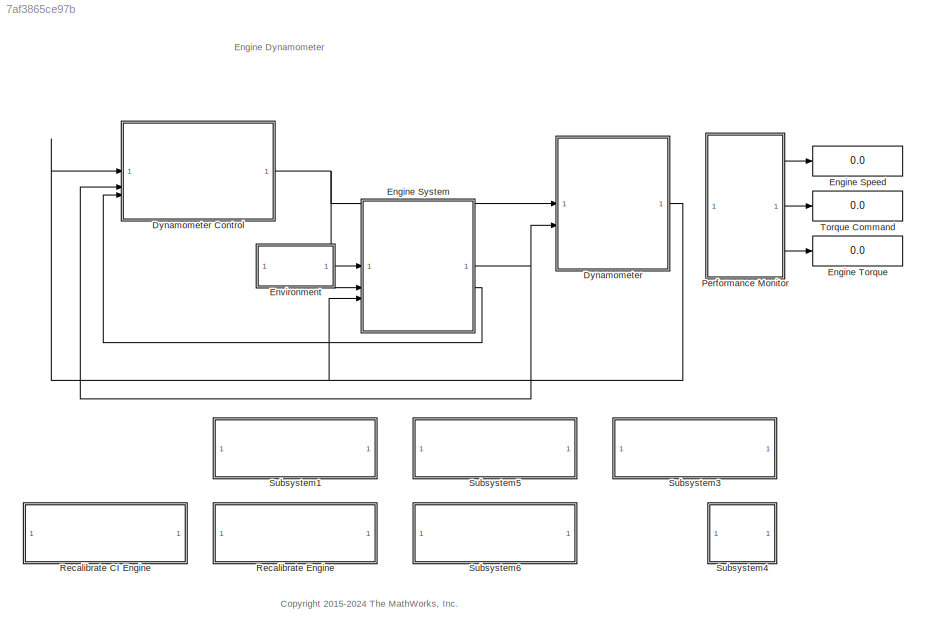
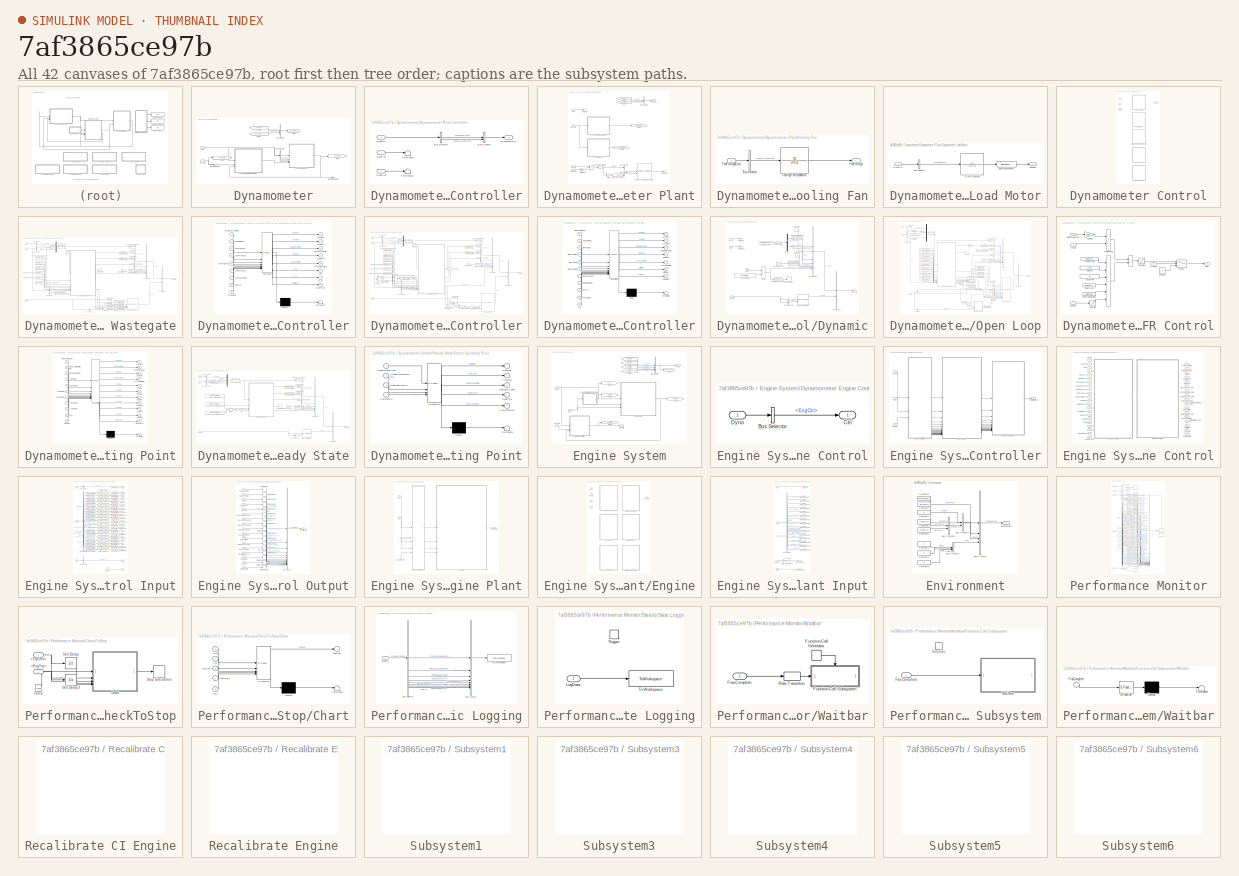
[diagram: thumbnail index - all 42 canvases of the model, root first then tree order]
MODEL slx_7af3865ce97b
KIND model
CONFIG AbsTol = auto
CONFIG EnableMultiTasking = on
CONFIG MaxStep = auto
CONFIG MinStep = auto
CONFIG RelTol = 1e-3
CONFIG SampleTimeConstraint = Unconstrained
CONFIG SolverName = ode23tb
CONFIG StartTime = 0.0
CONFIG StopTime = 15000
WORKSPACE source: mxarray member
WORKSPACE DynOperatingPts: timeseries (value not decoded)
BLOCK [SubSystem] Dynamometer
BLOCK [SubSystem] Dynamometer Control
  LabelModeActiveChoice = OpenLoop
  Variant = on
  VariantControlMode = label
BLOCK [SubSystem] Dynamometer Control/Calibrate Throttle and Wastegate
  VariantControl = CalThrWg
BLOCK [BusAssignment] Dynamometer Control/Calibrate Throttle and Wastegate/Bus Assignment
  AssignedSignals = ThrPosPctCmd,WgAreaPctCmd,InjPw
BLOCK [BusCreator] Dynamometer Control/Calibrate Throttle and Wastegate/Bus Creator3
  DisplayOption = bar
  InheritFromInputs = on
  Inputs = 6
BLOCK [BusCreator] Dynamometer Control/Calibrate Throttle and Wastegate/Bus Creator4
  DisplayOption = bar
  InheritFromInputs = on
  Inputs = 2
BLOCK [BusSelector] Dynamometer Control/Calibrate Throttle and Wastegate/Bus Selector
  OutputSignals = InjPw
BLOCK [BusSelector] Dynamometer Control/Calibrate Throttle and Wastegate/Bus Selector1
  OutputSignals = EngPlnt.EngTrq,EngPlnt.TurboSpd
BLOCK [BusSelector] Dynamometer Control/Calibrate Throttle and Wastegate/Bus Selector2
  OutputSignals = EngPlnt.EngTrq,EngPlnt.Map
BLOCK [BusSelector] Dynamometer Control/Calibrate Throttle and Wastegate/Bus Selector3
  OutputSignals = DynoPlnt.EngSpd
BLOCK [Reference] Dynamometer Control/Calibrate Throttle and Wastegate/Check Steady State1  REF=autolibutils/Check Steady State
  SourceBlock = autolibutils/Check Steady State
  SourceType = Check Steady State
BLOCK [Constant] Dynamometer Control/Calibrate Throttle and Wastegate/Constant
  Value = 0
BLOCK [DataTypeConversion] Dynamometer Control/Calibrate Throttle and Wastegate/Data Type Conversion2
  RndMeth = Floor
  SaturateOnIntegerOverflow = off
BLOCK [Product] Dynamometer Control/Calibrate Throttle and Wastegate/Divide
  Inputs = */
BLOCK [Inport] Dynamometer Control/Calibrate Throttle and Wastegate/Dyno
BLOCK [Outport] Dynamometer Control/Calibrate Throttle and Wastegate/DynoCtrl
  VectorParamsAs1DForOutWhenUnconnected = off
BLOCK [Inport] Dynamometer Control/Calibrate Throttle and Wastegate/Eng
  Port = 2
BLOCK [Inport] Dynamometer Control/Calibrate Throttle and Wastegate/EngCtrlr
  Port = 3
BLOCK [Constant] Dynamometer Control/Calibrate Throttle and Wastegate/Engine Speed Command Vector
  Value = linspace(min(SiDynoSSSpdCmd(:)), max(SiDynoSSSpdCmd(:)), 15)
BLOCK [Constant] Dynamometer Control/Calibrate Throttle and Wastegate/Fan Flow Speed
  Value = 10
BLOCK [Constant] Dynamometer Control/Calibrate Throttle and Wastegate/Maximum Torque Command
  Value = max(SiDynoSSTrqCmd(:))
BLOCK [Constant] Dynamometer Control/Calibrate Throttle and Wastegate/Maximum Torque Step
  Value = max(SiDynoSSTrqCmd(:))/25
BLOCK [Memory] Dynamometer Control/Calibrate Throttle and Wastegate/Memory
  InitialCondition = 100
BLOCK [Memory] Dynamometer Control/Calibrate Throttle and Wastegate/Memory1
BLOCK [Memory] Dynamometer Control/Calibrate Throttle and Wastegate/Memory2
  InitialCondition = 100
BLOCK [Constant] Dynamometer Control/Calibrate Throttle and Wastegate/Minimum Torque Command
  Value = min(SiDynoSSTrqCmd(:))
BLOCK [Constant] Dynamometer Control/Calibrate Throttle and Wastegate/Minimum Torque Step
  Value = max(SiDynoSSTrqCmd(:))/75
BLOCK [Constant] Dynamometer Control/Calibrate Throttle and Wastegate/Minimum Turbocharger Speed
  Value = SiDynoMaxTurboSpd
BLOCK [Mux] Dynamometer Control/Calibrate Throttle and Wastegate/Mux
  DisplayOption = bar
  Inputs = 3
BLOCK [RateTransition] Dynamometer Control/Calibrate Throttle and Wastegate/Rate Transition1
  Deterministic = off
  OutPortSampleTimeOpt = Inherit
BLOCK [RateTransition] Dynamometer Control/Calibrate Throttle and Wastegate/Rate Transition2
  Deterministic = off
  OutPortSampleTimeOpt = Inherit
BLOCK [RateTransition] Dynamometer Control/Calibrate Throttle and Wastegate/Rate Transition3
  Deterministic = off
  OutPortSampleTimeOpt = Inherit
BLOCK [RateTransition] Dynamometer Control/Calibrate Throttle and Wastegate/Rate Transition4
  Deterministic = off
BLOCK [RateTransition] Dynamometer Control/Calibrate Throttle and Wastegate/Rate Transition5
  Deterministic = off
BLOCK [RateTransition] Dynamometer Control/Calibrate Throttle and Wastegate/Rate Transition6
  Deterministic = off
BLOCK [RateTransition] Dynamometer Control/Calibrate Throttle and Wastegate/Rate Transition7
  Deterministic = off
  OutPortSampleTimeOpt = Inherit
BLOCK [SignalSpecification] Dynamometer Control/Calibrate Throttle and Wastegate/Signal Specification
  Unit = N*m
BLOCK [SignalSpecification] Dynamometer Control/Calibrate Throttle and Wastegate/Signal Specification1
  Unit = rpm
BLOCK [SignalSpecification] Dynamometer Control/Calibrate Throttle and Wastegate/Signal Specification2
  Unit = N*m
BLOCK [SignalSpecification] Dynamometer Control/Calibrate Throttle and Wastegate/Signal Specification3
  Unit = %
BLOCK [SignalSpecification] Dynamometer Control/Calibrate Throttle and Wastegate/Signal Specification4
  Unit = %
BLOCK [SignalSpecification] Dynamometer Control/Calibrate Throttle and Wastegate/Signal Specification5
  Unit = ms
BLOCK [SignalSpecification] Dynamometer Control/Calibrate Throttle and Wastegate/Signal Specification6
  Unit = rpm
BLOCK [Stop] Dynamometer Control/Calibrate Throttle and Wastegate/Stop Simulation
BLOCK [Switch] Dynamometer Control/Calibrate Throttle and Wastegate/Switch
  Criteria = u2 > Threshold
  InputSameDT = off
  SaturateOnIntegerOverflow = off
BLOCK [SubSystem] Dynamometer Control/Calibrate Throttle and Wastegate/TPP and WAP Calibration Controller
  ErrorFcn = Stateflow.Translate.translate
  PermitHierarchicalResolution = ExplicitOnly
  SFBlockType = Chart
  TreatAsAtomicUnit = on
BLOCK [Demux] Dynamometer Control/Calibrate Throttle and Wastegate/TPP and WAP Calibration Controller/ Demux 
  Outputs = 1
BLOCK [S-Function] Dynamometer Control/Calibrate Throttle and Wastegate/TPP and WAP Calibration Controller/ SFunction 
  EnableBusSupport = off
  FunctionName = sf_sfun
  PortCounts = [9 9]
  SFcnIsStateOwnerBlock = off
  SFunctionDeploymentMode = off
  Tag = Stateflow S-Function 5
BLOCK [Terminator] Dynamometer Control/Calibrate Throttle and Wastegate/TPP and WAP Calibration Controller/ Terminator 
BLOCK [Outport] Dynamometer Control/Calibrate Throttle and Wastegate/TPP and WAP Calibration Controller/CutOffFuel
  Port = 8
  VectorParamsAs1DForOutWhenUnconnected = off
BLOCK [Outport] Dynamometer Control/Calibrate Throttle and Wastegate/TPP and WAP Calibration Controller/EngSpd
  VectorParamsAs1DForOutWhenUnconnected = off
BLOCK [Inport] Dynamometer Control/Calibrate Throttle and Wastegate/TPP and WAP Calibration Controller/EngSpdBpts
  Port = 2
BLOCK [Inport] Dynamometer Control/Calibrate Throttle and Wastegate/TPP and WAP Calibration Controller/EngTrq
  Port = 8
BLOCK [Outport] Dynamometer Control/Calibrate Throttle and Wastegate/TPP and WAP Calibration Controller/FracComplete
  Port = 5
  VectorParamsAs1DForOutWhenUnconnected = off
BLOCK [Outport] Dynamometer Control/Calibrate Throttle and Wastegate/TPP and WAP Calibration Controller/LogDataTrigger
  Port = 3
  VectorParamsAs1DForOutWhenUnconnected = off
BLOCK [Inport] Dynamometer Control/Calibrate Throttle and Wastegate/TPP and WAP Calibration Controller/MaxTrqCmd
  Port = 6
BLOCK [Inport] Dynamometer Control/Calibrate Throttle and Wastegate/TPP and WAP Calibration Controller/MaxTrqStep
  Port = 4
BLOCK [Inport] Dynamometer Control/Calibrate Throttle and Wastegate/TPP and WAP Calibration Controller/MaxTurboSpd
  Port = 7
BLOCK [Inport] Dynamometer Control/Calibrate Throttle and Wastegate/TPP and WAP Calibration Controller/MinTrqCmd
  Port = 5
BLOCK [Inport] Dynamometer Control/Calibrate Throttle and Wastegate/TPP and WAP Calibration Controller/MinTrqStep
  Port = 3
BLOCK [Inport] Dynamometer Control/Calibrate Throttle and Wastegate/TPP and WAP Calibration Controller/SteadyStateFlag
BLOCK [Outport] Dynamometer Control/Calibrate Throttle and Wastegate/TPP and WAP Calibration Controller/StopCmd
  Port = 4
  VectorParamsAs1DForOutWhenUnconnected = off
BLOCK [Outport] Dynamometer Control/Calibrate Throttle and Wastegate/TPP and WAP Calibration Controller/TPP
  Port = 6
  VectorParamsAs1DForOutWhenUnconnected = off
BLOCK [Outport] Dynamometer Control/Calibrate Throttle and Wastegate/TPP and WAP Calibration Controller/TrqCmd
  Port = 2
  VectorParamsAs1DForOutWhenUnconnected = off
BLOCK [Inport] Dynamometer Control/Calibrate Throttle and Wastegate/TPP and WAP Calibration Controller/TurboSpd
  Port = 9
BLOCK [Outport] Dynamometer Control/Calibrate Throttle and Wastegate/TPP and WAP Calibration Controller/WAP
  Port = 7
  VectorParamsAs1DForOutWhenUnconnected = off
BLOCK [UnitConversion] Dynamometer Control/Calibrate Throttle and Wastegate/Unit Conversion1
BLOCK [UnitDelay] Dynamometer Control/Calibrate Throttle and Wastegate/Unit Delay
  HasFrameUpgradeWarning = on
  SampleTime = -1
BLOCK [SubSystem] Dynamometer Control/Calibration Controller
  VariantControl = CalCtrl
BLOCK [BusAssignment] Dynamometer Control/Calibration Controller/Bus Assignment
  AssignedSignals = InjPw
BLOCK [BusCreator] Dynamometer Control/Calibration Controller/Bus Creator3
  DisplayOption = bar
  InheritFromInputs = on
  Inputs = 6
BLOCK [BusCreator] Dynamometer Control/Calibration Controller/Bus Creator4
  DisplayOption = bar
  InheritFromInputs = on
  Inputs = 2
BLOCK [BusSelector] Dynamometer Control/Calibration Controller/Bus Selector1
  OutputSignals = EngPlnt.EngTrq,EngPlnt.TurboSpd,EngPlnt.Afr
BLOCK [BusSelector] Dynamometer Control/Calibration Controller/Bus Selector2
  OutputSignals = EngPlnt.EngTrq,EngPlnt.Map
BLOCK [BusSelector] Dynamometer Control/Calibration Controller/Bus Selector3
  OutputSignals = DynoPlnt.EngSpd
BLOCK [BusSelector] Dynamometer Control/Calibration Controller/Bus Selector4
  OutputSignals = Env.BaroPress,Env.AmbTemp
BLOCK [Reference] Dynamometer Control/Calibration Controller/Check Steady State1  REF=autolibutils/Check Steady State
  SourceBlock = autolibutils/Check Steady State
  SourceType = Check Steady State
BLOCK [Constant] Dynamometer Control/Calibration Controller/Constant
  Value = 0
BLOCK [DataTypeConversion] Dynamometer Control/Calibration Controller/Data Type Conversion2
  RndMeth = Floor
  SaturateOnIntegerOverflow = off
BLOCK [Product] Dynamometer Control/Calibration Controller/Divide
  Inputs = */
BLOCK [Product] Dynamometer Control/Calibration Controller/Divide1
  Inputs = */
BLOCK [Product] Dynamometer Control/Calibration Controller/Divide2
  Inputs = */
BLOCK [Inport] Dynamometer Control/Calibration Controller/Dyno
BLOCK [Outport] Dynamometer Control/Calibration Controller/DynoCtrl
  VectorParamsAs1DForOutWhenUnconnected = off
BLOCK [Inport] Dynamometer Control/Calibration Controller/Eng
  Port = 2
BLOCK [Inport] Dynamometer Control/Calibration Controller/EngCtrlr
  Port = 3
BLOCK [Constant] Dynamometer Control/Calibration Controller/Engine Speed Command Vector
  Value = linspace(min(CiDynoSSSpdCmd(:)), max(CiDynoSSSpdCmd(:)), 15)
BLOCK [Constant] Dynamometer Control/Calibration Controller/Fan Flow Speed
  Value = 10
BLOCK [SubSystem] Dynamometer Control/Calibration Controller/Fuel Calibration Controller
  ErrorFcn = Stateflow.Translate.translate
  PermitHierarchicalResolution = ExplicitOnly
  SFBlockType = Chart
  TreatAsAtomicUnit = on
BLOCK [Demux] Dynamometer Control/Calibration Controller/Fuel Calibration Controller/ Demux 
  Outputs = 1
BLOCK [S-Function] Dynamometer Control/Calibration Controller/Fuel Calibration Controller/ SFunction 
  EnableBusSupport = off
  FunctionName = sf_sfun
  PortCounts = [11 8]
  SFcnIsStateOwnerBlock = off
  SFunctionDeploymentMode = off
  Tag = Stateflow S-Function 7
BLOCK [Terminator] Dynamometer Control/Calibration Controller/Fuel Calibration Controller/ Terminator 
BLOCK [Inport] Dynamometer Control/Calibration Controller/Fuel Calibration Controller/Afr
  Port = 11
BLOCK [Outport] Dynamometer Control/Calibration Controller/Fuel Calibration Controller/CutOffFuel
  Port = 6
  VectorParamsAs1DForOutWhenUnconnected = off
BLOCK [Outport] Dynamometer Control/Calibration Controller/Fuel Calibration Controller/EngSpd
  VectorParamsAs1DForOutWhenUnconnected = off
BLOCK [Inport] Dynamometer Control/Calibration Controller/Fuel Calibration Controller/EngSpdBpts
  Port = 2
BLOCK [Inport] Dynamometer Control/Calibration Controller/Fuel Calibration Controller/EngTrq
  Port = 9
BLOCK [Outport] Dynamometer Control/Calibration Controller/Fuel Calibration Controller/FracComplete
  Port = 5
  VectorParamsAs1DForOutWhenUnconnected = off
BLOCK [Outport] Dynamometer Control/Calibration Controller/Fuel Calibration Controller/FuelMass
  Port = 7
  VectorParamsAs1DForOutWhenUnconnected = off
BLOCK [Outport] Dynamometer Control/Calibration Controller/Fuel Calibration Controller/LogDataTrigger
  Port = 3
  VectorParamsAs1DForOutWhenUnconnected = off
BLOCK [Inport] Dynamometer Control/Calibration Controller/Fuel Calibration Controller/MaxTrqCmd
  Port = 6
BLOCK [Inport] Dynamometer Control/Calibration Controller/Fuel Calibration Controller/MaxTrqStep
  Port = 4
BLOCK [Inport] Dynamometer Control/Calibration Controller/Fuel Calibration Controller/MaxTurboSpd
  Port = 7
BLOCK [Inport] Dynamometer Control/Calibration Controller/Fuel Calibration Controller/MinCtrlStepSize
  Port = 8
BLOCK [Inport] Dynamometer Control/Calibration Controller/Fuel Calibration Controller/MinTrqCmd
  Port = 5
BLOCK [Inport] Dynamometer Control/Calibration Controller/Fuel Calibration Controller/MinTrqStep
  Port = 3
BLOCK [Inport] Dynamometer Control/Calibration Controller/Fuel Calibration Controller/SteadyStateFlag
BLOCK [Outport] Dynamometer Control/Calibration Controller/Fuel Calibration Controller/StopCmd
  Port = 4
  VectorParamsAs1DForOutWhenUnconnected = off
BLOCK [Outport] Dynamometer Control/Calibration Controller/Fuel Calibration Controller/TrqCmd
  Port = 2
  VectorParamsAs1DForOutWhenUnconnected = off
BLOCK [Inport] Dynamometer Control/Calibration Controller/Fuel Calibration Controller/TurboSpd
  Port = 10
BLOCK [Gain] Dynamometer Control/Calibration Controller/Gain
  Gain = PlntEngVd/PlntEngNCyl
BLOCK [Gain] Dynamometer Control/Calibration Controller/Gain1
  Gain = EnvRair
BLOCK [Gain] Dynamometer Control/Calibration Controller/Gain2
  Gain = PlntEngAfrStoich
BLOCK [Gain] Dynamometer Control/Calibration Controller/Gain3
  Gain = 0.001
BLOCK [Constant] Dynamometer Control/Calibration Controller/Inj Slope (mg//ms)
  Value = 6.451612903225807
BLOCK [Constant] Dynamometer Control/Calibration Controller/Maximum Torque Command
  Value = max(CiDynoSSTrqCmd(:))
BLOCK [Constant] Dynamometer Control/Calibration Controller/Maximum Torque Step
  Value = max(CiDynoSSTrqCmd(:))/30
BLOCK [Memory] Dynamometer Control/Calibration Controller/Memory1
BLOCK [Constant] Dynamometer Control/Calibration Controller/Minimum Torque Command
  Value = min(CiDynoSSTrqCmd(:))
BLOCK [Constant] Dynamometer Control/Calibration Controller/Minimum Torque Step
  Value = max(CiDynoSSTrqCmd(:))/100
BLOCK [Constant] Dynamometer Control/Calibration Controller/Minimum Turbocharger Speed
  Value = CiDynoMaxTurboSpd
BLOCK [Mux] Dynamometer Control/Calibration Controller/Mux
  DisplayOption = bar
  Inputs = 3
BLOCK [RateTransition] Dynamometer Control/Calibration Controller/Rate Transition1
  Deterministic = off
  OutPortSampleTimeOpt = Inherit
BLOCK [RateTransition] Dynamometer Control/Calibration Controller/Rate Transition2
  Deterministic = off
  OutPortSampleTimeOpt = Inherit
BLOCK [RateTransition] Dynamometer Control/Calibration Controller/Rate Transition4
  Deterministic = off
BLOCK [RateTransition] Dynamometer Control/Calibration Controller/Rate Transition5
  Deterministic = off
BLOCK [RateTransition] Dynamometer Control/Calibration Controller/Rate Transition6
  Deterministic = off
BLOCK [SignalSpecification] Dynamometer Control/Calibration Controller/Signal Specification
  Unit = N*m
BLOCK [SignalSpecification] Dynamometer Control/Calibration Controller/Signal Specification1
  Unit = rpm
BLOCK [SignalSpecification] Dynamometer Control/Calibration Controller/Signal Specification2
  Unit = N*m
BLOCK [SignalSpecification] Dynamometer Control/Calibration Controller/Signal Specification3
  Unit = ms
BLOCK [SignalSpecification] Dynamometer Control/Calibration Controller/Signal Specification4
  Unit = kg
BLOCK [SignalSpecification] Dynamometer Control/Calibration Controller/Signal Specification5
  Unit = mg
BLOCK [SignalSpecification] Dynamometer Control/Calibration Controller/Signal Specification6
  Unit = rpm
BLOCK [Stop] Dynamometer Control/Calibration Controller/Stop Simulation
BLOCK [Switch] Dynamometer Control/Calibration Controller/Switch
  Criteria = u2 > Threshold
  InputSameDT = off
  SaturateOnIntegerOverflow = off
BLOCK [UnitConversion] Dynamometer Control/Calibration Controller/Unit Conversion
BLOCK [UnitConversion] Dynamometer Control/Calibration Controller/Unit Conversion1
BLOCK [UnitDelay] Dynamometer Control/Calibration Controller/Unit Delay
  HasFrameUpgradeWarning = on
  SampleTime = -1
BLOCK [SubSystem] Dynamometer Control/Dynamic
  VariantControl = Dynamic
BLOCK [BusAssignment] Dynamometer Control/Dynamic/Bus Assignment
  AssignedSignals = InjPw
BLOCK [BusCreator] Dynamometer Control/Dynamic/Bus Creator1
  DisplayOption = bar
  InheritFromInputs = on
  Inputs = 6
BLOCK [BusCreator] Dynamometer Control/Dynamic/Bus Creator4
  DisplayOption = bar
  InheritFromInputs = on
  Inputs = 2
BLOCK [BusSelector] Dynamometer Control/Dynamic/Bus Selector6
  OutputSignals = InjPw
BLOCK [Clock] Dynamometer Control/Dynamic/Clock
BLOCK [Reference] Dynamometer Control/Dynamic/Compare To Constant  REF=simulink/Logic and Bit
Operations/Compare
To Constant
  SourceBlock = simulink/Logic and Bit\nOperations/Compare\nTo Constant
  SourceType = Compare To Constant
BLOCK [Constant] Dynamometer Control/Dynamic/Constant
  Value = 0
BLOCK [Constant] Dynamometer Control/Dynamic/Constant1
  Value = 0
BLOCK [Constant] Dynamometer Control/Dynamic/Constant18
  Value = DynOperatingPts.Time(end)
BLOCK [Demux] Dynamometer Control/Dynamic/Demux
  Outputs = 2
BLOCK [Product] Dynamometer Control/Dynamic/Divide
  Inputs = */
BLOCK [Inport] Dynamometer Control/Dynamic/Dyno
BLOCK [Outport] Dynamometer Control/Dynamic/DynoCtrl
  VectorParamsAs1DForOutWhenUnconnected = off
BLOCK [Inport] Dynamometer Control/Dynamic/Eng
  Port = 2
BLOCK [Inport] Dynamometer Control/Dynamic/EngCtrlr
  Port = 3
BLOCK [Constant] Dynamometer Control/Dynamic/Fan Flow Speed
  Value = 10
BLOCK [FromWorkspace] Dynamometer Control/Dynamic/From Workspace
  OutputAfterFinalValue = Holding final value
  SampleTime = 0.01
  VariableName = DynOperatingPts
  ZeroCross = off
BLOCK [RateTransition] Dynamometer Control/Dynamic/Rate Transition
BLOCK [SignalSpecification] Dynamometer Control/Dynamic/Signal Specification
  Unit = N*m
BLOCK [SignalSpecification] Dynamometer Control/Dynamic/Signal Specification1
  Unit = rpm
BLOCK [SignalSpecification] Dynamometer Control/Dynamic/Signal Specification2
  Unit = m/s
BLOCK [Stop] Dynamometer Control/Dynamic/Stop Simulation
BLOCK [Terminator] Dynamometer Control/Dynamic/Terminator
BLOCK [Terminator] Dynamometer Control/Dynamic/Terminator1
BLOCK [Inport] Dynamometer Control/Dyno
BLOCK [Outport] Dynamometer Control/DynoCtrl
  VectorParamsAs1DForOutWhenUnconnected = off
BLOCK [Inport] Dynamometer Control/Eng
  Port = 2
BLOCK [Inport] Dynamometer Control/EngCtrlr
  Port = 3
BLOCK [SubSystem] Dynamometer Control/Open Loop
  VariantControl = OpenLoop
BLOCK [BusAssignment] Dynamometer Control/Open Loop/Bus Assignment
  AssignedSignals = ThrPosPctCmd,WgAreaPctCmd,IntkCamPhaseCmd,ExhCamPhaseCmd,SpkAdv,InjPw
BLOCK [BusCreator] Dynamometer Control/Open Loop/Bus Creator1
  DisplayOption = bar
  InheritFromInputs = on
  Inputs = 6
BLOCK [BusCreator] Dynamometer Control/Open Loop/Bus Creator4
  DisplayOption = bar
  InheritFromInputs = on
  Inputs = 2
BLOCK [BusSelector] Dynamometer Control/Open Loop/Bus Selector
  OutputSignals = SpkAdv
BLOCK [BusSelector] Dynamometer Control/Open Loop/Bus Selector1
  OutputSignals = EstIntkPortFlw
BLOCK [BusSelector] Dynamometer Control/Open Loop/Bus Selector2
  OutputSignals = EngPlnt.EngTrq,EngPlnt.Map
BLOCK [BusSelector] Dynamometer Control/Open Loop/Bus Selector3
  OutputSignals = DynoPlnt.EngSpd
BLOCK [Reference] Dynamometer Control/Open Loop/Check Steady State  REF=autolibutils/Check Steady State
  SourceBlock = autolibutils/Check Steady State
  SourceType = Check Steady State
BLOCK [Constant] Dynamometer Control/Open Loop/Constant
BLOCK [Constant] Dynamometer Control/Open Loop/Constant1
  Value = NaN
BLOCK [DataTypeConversion] Dynamometer Control/Open Loop/Data Type Conversion2
  RndMeth = Floor
  SaturateOnIntegerOverflow = off
BLOCK [Product] Dynamometer Control/Open Loop/Divide
  Inputs = */
BLOCK [Inport] Dynamometer Control/Open Loop/Dyno
BLOCK [Outport] Dynamometer Control/Open Loop/DynoCtrl
  VectorParamsAs1DForOutWhenUnconnected = off
BLOCK [Inport] Dynamometer Control/Open Loop/Eng
  Port = 2
BLOCK [Inport] Dynamometer Control/Open Loop/EngCtrlr
  Port = 3
BLOCK [Constant] Dynamometer Control/Open Loop/Engine Speed Command Vector
  Value = SiDynoOpenLoopEngSpdCmdPts
BLOCK [Constant] Dynamometer Control/Open Loop/Exhaust Phaser Command Vector
  Value = SiDynoOpenLoopExhCamPhsCmdPts
BLOCK [Constant] Dynamometer Control/Open Loop/Fan Flow Speed
  Value = 10
BLOCK [TransferFcn] Dynamometer Control/Open Loop/Filter 1
  Denominator = [0.5 1]
BLOCK [TransferFcn] Dynamometer Control/Open Loop/Filter 2
  Denominator = [0.5 1]
BLOCK [TransferFcn] Dynamometer Control/Open Loop/Filter 3
  Denominator = [2 1]
BLOCK [Gain] Dynamometer Control/Open Loop/Gain
  Gain = PlntEngAfrStoich
BLOCK [Constant] Dynamometer Control/Open Loop/Intake Phaser Command Vector
  Value = SiDynoOpenLoopIntCamPhsCmdPts
BLOCK [Constant] Dynamometer Control/Open Loop/Lambda Command Vector
  Value = SiDynoOpenLoopLambdaCmdPts
BLOCK [TransferFcn] Dynamometer Control/Open Loop/LambdaCmd Filter
  Denominator = [0.2 1]
BLOCK [Constant] Dynamometer Control/Open Loop/Maximum MAP Limit
  Value = SiDynoOpenLoopMaxMAP
BLOCK [Constant] Dynamometer Control/Open Loop/Maximum Torque Command
  Value = max(SiDynoSSTrqCmd(:))
BLOCK [Mux] Dynamometer Control/Open Loop/Mux
  DisplayOption = bar
  Inputs = 3
BLOCK [SubSystem] Dynamometer Control/Open Loop/Open-Loop AFR Control
  LibrarySourceBlock = autolibengctrlr/SI Controller/Controllers/Fuel/Open-Loop AFR Control
BLOCK [Product] Dynamometer Control/Open Loop/Open-Loop AFR Control/  
  Inputs = **
BLOCK [Product] Dynamometer Control/Open Loop/Open-Loop AFR Control/ 1
  Inputs = ***///
BLOCK [Inport] Dynamometer Control/Open Loop/Open-Loop AFR Control/AfrCmd
BLOCK [Constant] Dynamometer Control/Open Loop/Open-Loop AFR Control/Constant
  Value = 0
BLOCK [Inport] Dynamometer Control/Open Loop/Open-Loop AFR Control/EngSpd
  Port = 2
BLOCK [Inport] Dynamometer Control/Open Loop/Open-Loop AFR Control/EstIntkAirMassFlw
  Port = 4
BLOCK [Switch] Dynamometer Control/Open Loop/Open-Loop AFR Control/Fuel Cut
  Criteria = u2 > Threshold
  InputSameDT = off
  SaturateOnIntegerOverflow = off
BLOCK [Product] Dynamometer Control/Open Loop/Open-Loop AFR Control/Fuel Flow Rate
  Inputs = */
BLOCK [Outport] Dynamometer Control/Open Loop/Open-Loop AFR Control/InjPw
  VectorParamsAs1DForOutWhenUnconnected = off
BLOCK [Constant] Dynamometer Control/Open Loop/Open-Loop AFR Control/Injector Slope mg//ms
  Value = PlntEngSinj
BLOCK [Saturate] Dynamometer Control/Open Loop/Open-Loop AFR Control/Saturation
  LowerLimit = 1
  UpperLimit = inf
BLOCK [Saturate] Dynamometer Control/Open Loop/Open-Loop AFR Control/Saturation1
  LowerLimit = 1e-6
  UpperLimit = inf
  ZeroCross = off
BLOCK [Inport] Dynamometer Control/Open Loop/Open-Loop AFR Control/TrqCmd
  Port = 3
BLOCK [Constant] Dynamometer Control/Open Loop/Open-Loop AFR Control/inj per cycle
  Value = PlntEngNCyl
BLOCK [Gain] Dynamometer Control/Open Loop/Open-Loop AFR Control/kg//s to g//s
  Gain = 1000
BLOCK [Constant] Dynamometer Control/Open Loop/Open-Loop AFR Control/mg per g
  Value = 1000
BLOCK [Constant] Dynamometer Control/Open Loop/Open-Loop AFR Control/rev per cycle
  Value = PlntEngCps
BLOCK [Constant] Dynamometer Control/Open Loop/Open-Loop AFR Control/sec per min
  Value = 60
BLOCK [RateTransition] Dynamometer Control/Open Loop/Rate Transition1
BLOCK [RateTransition] Dynamometer Control/Open Loop/Rate Transition2
BLOCK [RateTransition] Dynamometer Control/Open Loop/Rate Transition3
BLOCK [RateTransition] Dynamometer Control/Open Loop/Rate Transition4
BLOCK [RateTransition] Dynamometer Control/Open Loop/Rate Transition5
BLOCK [RateTransition] Dynamometer Control/Open Loop/Rate Transition6
BLOCK [RateTransition] Dynamometer Control/Open Loop/Rate Transition7
BLOCK [RateTransition] Dynamometer Control/Open Loop/Rate Transition8
BLOCK [RateTransition] Dynamometer Control/Open Loop/Rate Transition9
BLOCK [SubSystem] Dynamometer Control/Open Loop/Select Operating Point
  ErrorFcn = Stateflow.Translate.translate
  PermitHierarchicalResolution = ExplicitOnly
  PortSchema = {"entries":[{"content":{"sides":[{"content":{"connectorIds":["In1","In2","In3","In4","In5","In6","In7","In8","In9","In11","In10"]},"type":"ConnectorPlacement.EquallySpacedRectSide","uuid":"1175ad6d-9dc6-48de-a8de-c94bf62b3e4b"},{"content":{"connectorIds":["Out1","Out2","Out3","Out4","Out5","Out6","Out7","Out8","Out9","Out10","Out11"],"side":"RIGHT"},"type":"ConnectorPlacement.EquallySpacedRectSide...<+374ch>
  SFBlockType = Chart
  TreatAsAtomicUnit = on
BLOCK [Demux] Dynamometer Control/Open Loop/Select Operating Point/ Demux 
  Outputs = 1
BLOCK [S-Function] Dynamometer Control/Open Loop/Select Operating Point/ SFunction 
  EnableBusSupport = off
  FunctionName = sf_sfun
  PortCounts = [11 12]
  SFcnIsStateOwnerBlock = off
  SFunctionDeploymentMode = off
  Tag = Stateflow S-Function 6
BLOCK [Terminator] Dynamometer Control/Open Loop/Select Operating Point/ Terminator 
BLOCK [Outport] Dynamometer Control/Open Loop/Select Operating Point/ECPCmd
  Port = 8
BLOCK [Inport] Dynamometer Control/Open Loop/Select Operating Point/ECPCmdPts
  Port = 7
BLOCK [Outport] Dynamometer Control/Open Loop/Select Operating Point/EngSpd
  VectorParamsAs1DForOutWhenUnconnected = off
BLOCK [Inport] Dynamometer Control/Open Loop/Select Operating Point/EngSpdCmdPts
  Port = 3
BLOCK [Outport] Dynamometer Control/Open Loop/Select Operating Point/FracComplete
  Port = 4
  VectorParamsAs1DForOutWhenUnconnected = off
BLOCK [Outport] Dynamometer Control/Open Loop/Select Operating Point/ICPCmd
  Port = 7
BLOCK [Inport] Dynamometer Control/Open Loop/Select Operating Point/ICPCmdPts
  Port = 6
BLOCK [Outport] Dynamometer Control/Open Loop/Select Operating Point/LAMCmd
  Port = 9
BLOCK [Inport] Dynamometer Control/Open Loop/Select Operating Point/LAMCmdPts
  Port = 9
BLOCK [Outport] Dynamometer Control/Open Loop/Select Operating Point/LogDataTrigger
  Port = 2
  VectorParamsAs1DForOutWhenUnconnected = off
BLOCK [Inport] Dynamometer Control/Open Loop/Select Operating Point/MAP
  Port = 10
BLOCK [Inport] Dynamometer Control/Open Loop/Select Operating Point/MaxMAP
  Port = 11
BLOCK [Outport] Dynamometer Control/Open Loop/Select Operating Point/SPKCmd
  Port = 10
BLOCK [Inport] Dynamometer Control/Open Loop/Select Operating Point/SPKCmdPts
  Port = 8
BLOCK [Inport] Dynamometer Control/Open Loop/Select Operating Point/SteadyStateFlag
BLOCK [Inport] Dynamometer Control/Open Loop/Select Operating Point/SteadyStateWaitLimit
  Port = 2
BLOCK [Outport] Dynamometer Control/Open Loop/Select Operating Point/StopCmd
  Port = 3
  VectorParamsAs1DForOutWhenUnconnected = off
BLOCK [Outport] Dynamometer Control/Open Loop/Select Operating Point/TpCmd
  Port = 5
  VectorParamsAs1DForOutWhenUnconnected = off
BLOCK [Inport] Dynamometer Control/Open Loop/Select Operating Point/TpCmdPts
  Port = 4
BLOCK [Outport] Dynamometer Control/Open Loop/Select Operating Point/WAPCmd
  Port = 6
BLOCK [Inport] Dynamometer Control/Open Loop/Select Operating Point/WAPCmdPts
  Port = 5
BLOCK [Outport] Dynamometer Control/Open Loop/Select Operating Point/WAPLearn
  Port = 11
BLOCK [SignalSpecification] Dynamometer Control/Open Loop/Signal Specification
  Unit = N*m
BLOCK [SignalSpecification] Dynamometer Control/Open Loop/Signal Specification1
  Unit = rpm
BLOCK [SignalSpecification] Dynamometer Control/Open Loop/Signal Specification2
  Unit = m/s
BLOCK [SignalSpecification] Dynamometer Control/Open Loop/Signal Specification3
  Unit = %
BLOCK [SignalSpecification] Dynamometer Control/Open Loop/Signal Specification4
  Unit = %
BLOCK [SignalSpecification] Dynamometer Control/Open Loop/Signal Specification5
  Unit = deg
BLOCK [SignalSpecification] Dynamometer Control/Open Loop/Signal Specification6
  Unit = deg
BLOCK [SignalSpecification] Dynamometer Control/Open Loop/Signal Specification7
  Unit = deg
BLOCK [SignalSpecification] Dynamometer Control/Open Loop/Signal Specification8
  Unit = ms
BLOCK [Constant] Dynamometer Control/Open Loop/Spark Delta Command Vector
  Value = SiDynoOpenLoopSpkDeltaCmdPts
BLOCK [TransferFcn] Dynamometer Control/Open Loop/SpkDeltaCmd Filter
  Denominator = [0.2 1]
BLOCK [Constant] Dynamometer Control/Open Loop/Steady State Wait Limit
  Value = SiDynoOpenLoopSteadyStateWaitLimit
BLOCK [Stop] Dynamometer Control/Open Loop/Stop Simulation
BLOCK [Sum] Dynamometer Control/Open Loop/Sum
  Inputs = |++
BLOCK [Terminator] Dynamometer Control/Open Loop/Terminator
BLOCK [Constant] Dynamometer Control/Open Loop/Throttle Position Command Vector
  Value = SiDynoOpenLoopTpCmdPts
BLOCK [Constant] Dynamometer Control/Open Loop/Wastegate Command Vector
  Value = SiDynoOpenLoopWAPCmdPts
BLOCK [SubSystem] Dynamometer Control/Steady State
  VariantControl = SteadyState
BLOCK [BusAssignment] Dynamometer Control/Steady State/Bus Assignment
  AssignedSignals = InjPw
BLOCK [BusCreator] Dynamometer Control/Steady State/Bus Creator1
  DisplayOption = bar
  InheritFromInputs = on
  Inputs = 6
BLOCK [BusCreator] Dynamometer Control/Steady State/Bus Creator4
  DisplayOption = bar
  InheritFromInputs = on
  Inputs = 2
BLOCK [BusSelector] Dynamometer Control/Steady State/Bus Selector2
  OutputSignals = EngPlnt.EngTrq,EngPlnt.Map
BLOCK [BusSelector] Dynamometer Control/Steady State/Bus Selector3
  OutputSignals = DynoPlnt.EngSpd
BLOCK [BusSelector] Dynamometer Control/Steady State/Bus Selector6
  OutputSignals = InjPw
BLOCK [Reference] Dynamometer Control/Steady State/Check Steady State  REF=autolibutils/Check Steady State
  SourceBlock = autolibutils/Check Steady State
  SourceType = Check Steady State
BLOCK [DataTypeConversion] Dynamometer Control/Steady State/Data Type Conversion2
  RndMeth = Floor
  SaturateOnIntegerOverflow = off
BLOCK [Product] Dynamometer Control/Steady State/Divide
  Inputs = */
BLOCK [Inport] Dynamometer Control/Steady State/Dyno
BLOCK [Outport] Dynamometer Control/Steady State/DynoCtrl
  VectorParamsAs1DForOutWhenUnconnected = off
BLOCK [Inport] Dynamometer Control/Steady State/Eng
  Port = 2
BLOCK [Inport] Dynamometer Control/Steady State/EngCtrlr
  Port = 3
BLOCK [Constant] Dynamometer Control/Steady State/Engine Speed Command Vector
  Value = SiDynoSSSpdCmd
BLOCK [Constant] Dynamometer Control/Steady State/Engine Torque Command Vector
  Value = SiDynoSSTrqCmd
BLOCK [Constant] Dynamometer Control/Steady State/Fan Flow Speed
  Value = 10
BLOCK [From] Dynamometer Control/Steady State/From
  GotoTag = MaxTrqCmd
BLOCK [Goto] Dynamometer Control/Steady State/Goto
  GotoTag = MaxTrqCmd
BLOCK [MinMax] Dynamometer Control/Steady State/MinMax
  Function = max
BLOCK [Mux] Dynamometer Control/Steady State/Mux
  DisplayOption = bar
  Inputs = 3
BLOCK [RateTransition] Dynamometer Control/Steady State/Rate Transition2
BLOCK [RateTransition] Dynamometer Control/Steady State/Rate Transition3
BLOCK [RateTransition] Dynamometer Control/Steady State/Rate Transition4
BLOCK [SubSystem] Dynamometer Control/Steady State/Select Operating Point
  ErrorFcn = Stateflow.Translate.translate
  PermitHierarchicalResolution = ExplicitOnly
  SFBlockType = Chart
  TreatAsAtomicUnit = on
BLOCK [Demux] Dynamometer Control/Steady State/Select Operating Point/ Demux 
  Outputs = 1
BLOCK [S-Function] Dynamometer Control/Steady State/Select Operating Point/ SFunction 
  EnableBusSupport = off
  FunctionName = sf_sfun
  PortCounts = [4 6]
  SFcnIsStateOwnerBlock = off
  SFunctionDeploymentMode = off
  Tag = Stateflow S-Function 1
BLOCK [Terminator] Dynamometer Control/Steady State/Select Operating Point/ Terminator 
BLOCK [Outport] Dynamometer Control/Steady State/Select Operating Point/EngSpd
  VectorParamsAs1DForOutWhenUnconnected = off
BLOCK [Inport] Dynamometer Control/Steady State/Select Operating Point/EngSpdCmdPts
  Port = 3
BLOCK [Outport] Dynamometer Control/Steady State/Select Operating Point/FracComplete
  Port = 5
  VectorParamsAs1DForOutWhenUnconnected = off
BLOCK [Outport] Dynamometer Control/Steady State/Select Operating Point/LogDataTrigger
  Port = 3
  VectorParamsAs1DForOutWhenUnconnected = off
BLOCK [Inport] Dynamometer Control/Steady State/Select Operating Point/SteadyStateFlag
BLOCK [Inport] Dynamometer Control/Steady State/Select Operating Point/SteadyStateWaitLimit
  Port = 2
BLOCK [Outport] Dynamometer Control/Steady State/Select Operating Point/StopCmd
  Port = 4
  VectorParamsAs1DForOutWhenUnconnected = off
BLOCK [Outport] Dynamometer Control/Steady State/Select Operating Point/TrqCmd
  Port = 2
  VectorParamsAs1DForOutWhenUnconnected = off
BLOCK [Inport] Dynamometer Control/Steady State/Select Operating Point/TrqCmdPts
  Port = 4
BLOCK [SignalSpecification] Dynamometer Control/Steady State/Signal Specification
  Unit = N*m
BLOCK [SignalSpecification] Dynamometer Control/Steady State/Signal Specification1
  Unit = rpm
BLOCK [SignalSpecification] Dynamometer Control/Steady State/Signal Specification2
  Unit = m/s
BLOCK [Constant] Dynamometer Control/Steady State/Steady State Wait Limit
  Value = SiDynoSSWaitLim
BLOCK [Stop] Dynamometer Control/Steady State/Stop Simulation
BLOCK [BusCreator] Dynamometer/Bus Creator
  DisplayOption = bar
  InheritFromInputs = on
  Inputs = 2
BLOCK [Outport] Dynamometer/Bus Element Out
BLOCK [Outport] Dynamometer/Bus Element Out1
BLOCK [BusSelector] Dynamometer/Bus Selector
  OutputSignals = EngPlnt.EngTrq,EngPlnt.EngSpdOut
BLOCK [SubSystem] Dynamometer/Dynamometer Motor Controller
BLOCK [BusCreator] Dynamometer/Dynamometer Motor Controller/Bus Creator
  DisplayOption = bar
  InheritFromInputs = on
  Inputs = 2
BLOCK [BusSelector] Dynamometer/Dynamometer Motor Controller/Bus Selector
  OutputSignals = DynoCtrl.EngSpdCmd,DynoCtrl.FanFlwSpdCmd
BLOCK [Inport] Dynamometer/Dynamometer Motor Controller/DynoCtrl
  Port = 2
BLOCK [Outport] Dynamometer/Dynamometer Motor Controller/DynoMotorCtrl
  VectorParamsAs1DForOutWhenUnconnected = off
BLOCK [Inport] Dynamometer/Dynamometer Motor Controller/DynoPlnt
  Port = 3
BLOCK [Inport] Dynamometer/Dynamometer Motor Controller/EngPlnt
BLOCK [Terminator] Dynamometer/Dynamometer Motor Controller/Terminator
BLOCK [Terminator] Dynamometer/Dynamometer Motor Controller/Terminator1
BLOCK [SubSystem] Dynamometer/Dynamometer Plant
BLOCK [BusCreator] Dynamometer/Dynamometer Plant/Bus Creator1
  DisplayOption = bar
  InheritFromInputs = on
  Inputs = 2
BLOCK [BusCreator] Dynamometer/Dynamometer Plant/Bus Creator2
  DisplayOption = bar
  InheritFromInputs = on
  Inputs = 1
BLOCK [BusCreator] Dynamometer/Dynamometer Plant/Bus Creator3
  DisplayOption = bar
  InheritFromInputs = on
  Inputs = 1
BLOCK [SubSystem] Dynamometer/Dynamometer Plant/Cooling Fan
BLOCK [BusSelector] Dynamometer/Dynamometer Plant/Cooling Fan/Bus Selector
  OutputSignals = FanFlwSpdCmd
BLOCK [TransferFcn] Dynamometer/Dynamometer Plant/Cooling Fan/Cooling Fan Dynamics
  Denominator = [0.4 1]
BLOCK [Outport] Dynamometer/Dynamometer Plant/Cooling Fan/FanFlwSpd
  VectorParamsAs1DForOutWhenUnconnected = off
BLOCK [Inport] Dynamometer/Dynamometer Plant/Cooling Fan/FanFlwSpdCmd
BLOCK [SubSystem] Dynamometer/Dynamometer Plant/Dynamometer Load Motor
BLOCK [BusSelector] Dynamometer/Dynamometer Plant/Dynamometer Load Motor/Bus Selector
  OutputSignals = EngSpdCmd
BLOCK [TransferFcn] Dynamometer/Dynamometer Plant/Dynamometer Load Motor/Dyno Dynamics
  Denominator = [0.1 1]
BLOCK [Inport] Dynamometer/Dynamometer Plant/Dynamometer Load Motor/DynoCtrl
BLOCK [Outport] Dynamometer/Dynamometer Plant/Dynamometer Load Motor/EngSpd
  VectorParamsAs1DForOutWhenUnconnected = off
BLOCK [SignalSpecification] Dynamometer/Dynamometer Plant/Dynamometer Load Motor/Signal Specification
  Unit = rpm
BLOCK [Inport] Dynamometer/Dynamometer Plant/DynoCtrl
  Port = 4
BLOCK [Outport] Dynamometer/Dynamometer Plant/DynoPlnt
  VectorParamsAs1DForOutWhenUnconnected = off
BLOCK [Inport] Dynamometer/Dynamometer Plant/Eng
BLOCK [Inport] Dynamometer/Dynamometer Plant/EngSpd 
  Port = 3
BLOCK [Inport] Dynamometer/Dynamometer Plant/EngTrq
  Port = 2
BLOCK [From] Dynamometer/Dynamometer Plant/From2
  GotoTag = FanFlwSpd
BLOCK [From] Dynamometer/Dynamometer Plant/From5
  GotoTag = EngSpd
BLOCK [Gain] Dynamometer/Dynamometer Plant/Gain
  Gain = -1
BLOCK [Goto] Dynamometer/Dynamometer Plant/Goto2
  GotoTag = EngSpd
BLOCK [Goto] Dynamometer/Dynamometer Plant/Goto3
  GotoTag = FanFlwSpd
BLOCK [Reference] Dynamometer/Dynamometer Plant/Power Accounting Bus Creator  REF=autolibpowerinfoutils/Power Accounting Bus Creator
  SourceBlock = autolibpowerinfoutils/Power Accounting Bus Creator
  SourceType = Power Accounting Bus Creator
BLOCK [Product] Dynamometer/Dynamometer Plant/Product
BLOCK [SignalSpecification] Dynamometer/Dynamometer Plant/Signal Specification
  Unit = W
BLOCK [SignalSpecification] Dynamometer/Dynamometer Plant/Signal Specification1
  Unit = W
BLOCK [Terminator] Dynamometer/Dynamometer Plant/Terminator
BLOCK [Terminator] Dynamometer/Dynamometer Plant/Terminator1
BLOCK [Gain] Dynamometer/Dynamometer Plant/rpm to rad//s
  Gain = pi/30
BLOCK [Inport] Dynamometer/DynoCtrl
BLOCK [Inport] Dynamometer/Eng
  Port = 2
BLOCK [From] Dynamometer/From6
  GotoTag = DynoCtrl
BLOCK [From] Dynamometer/From8
  GotoTag = DynoPlnt
BLOCK [Goto] Dynamometer/Goto
  GotoTag = DynoPlnt
BLOCK [Goto] Dynamometer/Goto1
  GotoTag = DynoCtrl
BLOCK [Goto] Dynamometer/Goto2
  GotoTag = DynoResults
  TagVisibility = global
BLOCK [Display] Engine Speed
  Decimation = 100
BLOCK [SubSystem] Engine System
BLOCK [BusCreator] Engine System/Bus Creator
  DisplayOption = bar
  InheritFromInputs = on
  Inputs = 4
BLOCK [SubSystem] Engine System/Dynamometer Engine Control
BLOCK [BusSelector] Engine System/Dynamometer Engine Control/Bus Selector
  OutputSignals = DynoCtrl.EngCtrl
BLOCK [Outport] Engine System/Dynamometer Engine Control/Ctrl
  VectorParamsAs1DForOutWhenUnconnected = off
BLOCK [Inport] Engine System/Dynamometer Engine Control/Dyno
BLOCK [Inport] Engine System/Dyno
  Port = 3
BLOCK [Inport] Engine System/DynoCtrl
BLOCK [Outport] Engine System/Eng
  VectorParamsAs1DForOutWhenUnconnected = off
BLOCK [Outport] Engine System/EngCtrlr
  Port = 2
  VectorParamsAs1DForOutWhenUnconnected = off
BLOCK [SubSystem] Engine System/Engine Controller
BLOCK [Inport] Engine System/Engine Controller/Dyno
  Port = 2
BLOCK [Outport] Engine System/Engine Controller/EngCtrlrOutput
  VectorParamsAs1DForOutWhenUnconnected = off
BLOCK [Inport] Engine System/Engine Controller/EngPlnt
  Port = 3
BLOCK [SubSystem] Engine System/Engine Controller/Engine Control
  LabelModeActiveChoice = SI Engine Controller
  Variant = on
  VariantControl = Choice
  VariantControlMode = label
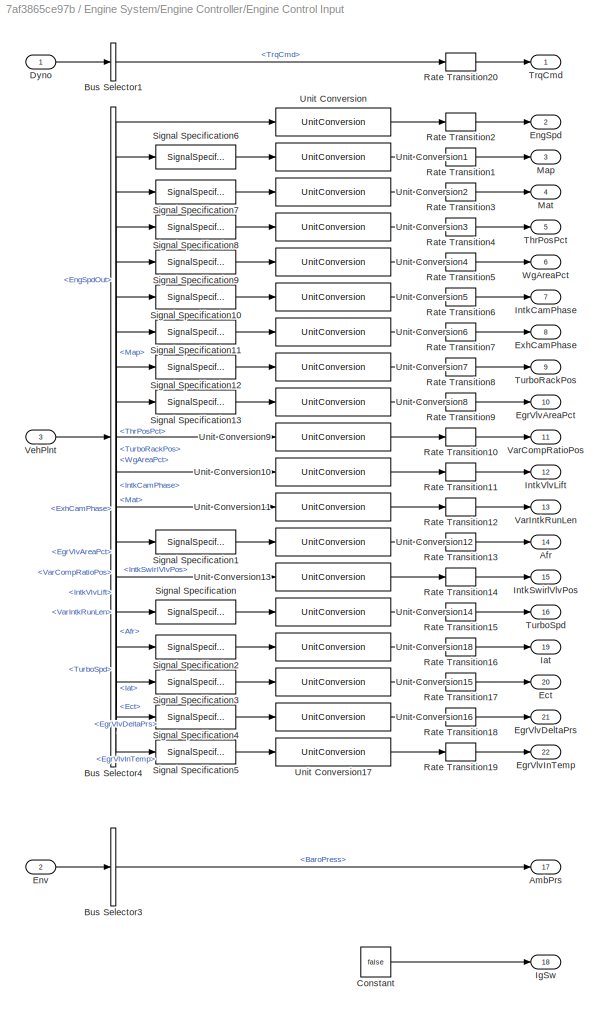
BLOCK [SubSystem] Engine System/Engine Controller/Engine Control Input
BLOCK [Outport] Engine System/Engine Controller/Engine Control Input/Afr
  Port = 14
  VectorParamsAs1DForOutWhenUnconnected = off
BLOCK [Outport] Engine System/Engine Controller/Engine Control Input/AmbPrs
  Port = 17
  VectorParamsAs1DForOutWhenUnconnected = off
BLOCK [BusSelector] Engine System/Engine Controller/Engine Control Input/Bus Selector1
  OutputSignals = DynoCtrl.TrqCmd
BLOCK [BusSelector] Engine System/Engine Controller/Engine Control Input/Bus Selector3
  OutputSignals = BaroPress
BLOCK [BusSelector] Engine System/Engine Controller/Engine Control Input/Bus Selector4
  OutputSignals = EngSpdOut,Map,Mat,ThrPosPct,WgAreaPct,IntkCamPhase,ExhCamPhase,TurboRackPos,EgrVlvAreaPct,VarCompRatioPos,IntkVlvLift,VarIntkRunLen,Afr,IntkSwirlVlvPos,TurboSpd,Iat,Ect,EgrVlvDeltaPrs,EgrVlvInTemp
BLOCK [Constant] Engine System/Engine Controller/Engine Control Input/Constant
  Value = false
BLOCK [Inport] Engine System/Engine Controller/Engine Control Input/Dyno
BLOCK [Outport] Engine System/Engine Controller/Engine Control Input/Ect
  Port = 20
  VectorParamsAs1DForOutWhenUnconnected = off
BLOCK [Outport] Engine System/Engine Controller/Engine Control Input/EgrVlvAreaPct
  Port = 10
  VectorParamsAs1DForOutWhenUnconnected = off
BLOCK [Outport] Engine System/Engine Controller/Engine Control Input/EgrVlvDeltaPrs
  Port = 21
  VectorParamsAs1DForOutWhenUnconnected = off
BLOCK [Outport] Engine System/Engine Controller/Engine Control Input/EgrVlvInTemp
  Port = 22
  VectorParamsAs1DForOutWhenUnconnected = off
BLOCK [Outport] Engine System/Engine Controller/Engine Control Input/EngSpd
  Port = 2
  VectorParamsAs1DForOutWhenUnconnected = off
BLOCK [Inport] Engine System/Engine Controller/Engine Control Input/Env
  Port = 2
BLOCK [Outport] Engine System/Engine Controller/Engine Control Input/ExhCamPhase
  Port = 8
  VectorParamsAs1DForOutWhenUnconnected = off
BLOCK [Outport] Engine System/Engine Controller/Engine Control Input/Iat
  Port = 19
  VectorParamsAs1DForOutWhenUnconnected = off
BLOCK [Outport] Engine System/Engine Controller/Engine Control Input/IgSw
  Port = 18
  VectorParamsAs1DForOutWhenUnconnected = off
BLOCK [Outport] Engine System/Engine Controller/Engine Control Input/IntkCamPhase
  Port = 7
  VectorParamsAs1DForOutWhenUnconnected = off
BLOCK [Outport] Engine System/Engine Controller/Engine Control Input/IntkSwirlVlvPos
  Port = 15
  VectorParamsAs1DForOutWhenUnconnected = off
BLOCK [Outport] Engine System/Engine Controller/Engine Control Input/IntkVlvLift
  Port = 12
  VectorParamsAs1DForOutWhenUnconnected = off
BLOCK [Outport] Engine System/Engine Controller/Engine Control Input/Map
  Port = 3
  VectorParamsAs1DForOutWhenUnconnected = off
BLOCK [Outport] Engine System/Engine Controller/Engine Control Input/Mat
  Port = 4
  VectorParamsAs1DForOutWhenUnconnected = off
BLOCK [RateTransition] Engine System/Engine Controller/Engine Control Input/Rate Transition1
BLOCK [RateTransition] Engine System/Engine Controller/Engine Control Input/Rate Transition10
BLOCK [RateTransition] Engine System/Engine Controller/Engine Control Input/Rate Transition11
BLOCK [RateTransition] Engine System/Engine Controller/Engine Control Input/Rate Transition12
BLOCK [RateTransition] Engine System/Engine Controller/Engine Control Input/Rate Transition13
BLOCK [RateTransition] Engine System/Engine Controller/Engine Control Input/Rate Transition14
BLOCK [RateTransition] Engine System/Engine Controller/Engine Control Input/Rate Transition15
BLOCK [RateTransition] Engine System/Engine Controller/Engine Control Input/Rate Transition16
BLOCK [RateTransition] Engine System/Engine Controller/Engine Control Input/Rate Transition17
BLOCK [RateTransition] Engine System/Engine Controller/Engine Control Input/Rate Transition18
BLOCK [RateTransition] Engine System/Engine Controller/Engine Control Input/Rate Transition19
BLOCK [RateTransition] Engine System/Engine Controller/Engine Control Input/Rate Transition2
BLOCK [RateTransition] Engine System/Engine Controller/Engine Control Input/Rate Transition20
BLOCK [RateTransition] Engine System/Engine Controller/Engine Control Input/Rate Transition3
BLOCK [RateTransition] Engine System/Engine Controller/Engine Control Input/Rate Transition4
BLOCK [RateTransition] Engine System/Engine Controller/Engine Control Input/Rate Transition5
BLOCK [RateTransition] Engine System/Engine Controller/Engine Control Input/Rate Transition6
BLOCK [RateTransition] Engine System/Engine Controller/Engine Control Input/Rate Transition7
BLOCK [RateTransition] Engine System/Engine Controller/Engine Control Input/Rate Transition8
BLOCK [RateTransition] Engine System/Engine Controller/Engine Control Input/Rate Transition9
BLOCK [SignalSpecification] Engine System/Engine Controller/Engine Control Input/Signal Specification
  Unit = rad/sec
BLOCK [SignalSpecification] Engine System/Engine Controller/Engine Control Input/Signal Specification1
  Unit = 1
BLOCK [SignalSpecification] Engine System/Engine Controller/Engine Control Input/Signal Specification10
  Unit = deg
BLOCK [SignalSpecification] Engine System/Engine Controller/Engine Control Input/Signal Specification11
  Unit = deg
BLOCK [SignalSpecification] Engine System/Engine Controller/Engine Control Input/Signal Specification12
  Unit = 1
BLOCK [SignalSpecification] Engine System/Engine Controller/Engine Control Input/Signal Specification13
  Unit = 1
BLOCK [SignalSpecification] Engine System/Engine Controller/Engine Control Input/Signal Specification2
  Unit = K
BLOCK [SignalSpecification] Engine System/Engine Controller/Engine Control Input/Signal Specification3
  Unit = K
BLOCK [SignalSpecification] Engine System/Engine Controller/Engine Control Input/Signal Specification4
  Unit = Pa
BLOCK [SignalSpecification] Engine System/Engine Controller/Engine Control Input/Signal Specification5
  Unit = K
BLOCK [SignalSpecification] Engine System/Engine Controller/Engine Control Input/Signal Specification6
  Unit = Pa
BLOCK [SignalSpecification] Engine System/Engine Controller/Engine Control Input/Signal Specification7
  Unit = K
BLOCK [SignalSpecification] Engine System/Engine Controller/Engine Control Input/Signal Specification8
  Unit = 1
BLOCK [SignalSpecification] Engine System/Engine Controller/Engine Control Input/Signal Specification9
  Unit = 1
BLOCK [Outport] Engine System/Engine Controller/Engine Control Input/ThrPosPct
  Port = 5
  VectorParamsAs1DForOutWhenUnconnected = off
BLOCK [Outport] Engine System/Engine Controller/Engine Control Input/TrqCmd
  VectorParamsAs1DForOutWhenUnconnected = off
BLOCK [Outport] Engine System/Engine Controller/Engine Control Input/TurboRackPos
  Port = 9
  VectorParamsAs1DForOutWhenUnconnected = off
BLOCK [Outport] Engine System/Engine Controller/Engine Control Input/TurboSpd
  Port = 16
  VectorParamsAs1DForOutWhenUnconnected = off
BLOCK [UnitConversion] Engine System/Engine Controller/Engine Control Input/Unit Conversion
BLOCK [UnitConversion] Engine System/Engine Controller/Engine Control Input/Unit Conversion1
BLOCK [UnitConversion] Engine System/Engine Controller/Engine Control Input/Unit Conversion10
BLOCK [UnitConversion] Engine System/Engine Controller/Engine Control Input/Unit Conversion11
BLOCK [UnitConversion] Engine System/Engine Controller/Engine Control Input/Unit Conversion12
BLOCK [UnitConversion] Engine System/Engine Controller/Engine Control Input/Unit Conversion13
BLOCK [UnitConversion] Engine System/Engine Controller/Engine Control Input/Unit Conversion14
BLOCK [UnitConversion] Engine System/Engine Controller/Engine Control Input/Unit Conversion15
BLOCK [UnitConversion] Engine System/Engine Controller/Engine Control Input/Unit Conversion16
BLOCK [UnitConversion] Engine System/Engine Controller/Engine Control Input/Unit Conversion17
BLOCK [UnitConversion] Engine System/Engine Controller/Engine Control Input/Unit Conversion18
BLOCK [UnitConversion] Engine System/Engine Controller/Engine Control Input/Unit Conversion2
BLOCK [UnitConversion] Engine System/Engine Controller/Engine Control Input/Unit Conversion3
BLOCK [UnitConversion] Engine System/Engine Controller/Engine Control Input/Unit Conversion4
BLOCK [UnitConversion] Engine System/Engine Controller/Engine Control Input/Unit Conversion5
BLOCK [UnitConversion] Engine System/Engine Controller/Engine Control Input/Unit Conversion6
BLOCK [UnitConversion] Engine System/Engine Controller/Engine Control Input/Unit Conversion7
BLOCK [UnitConversion] Engine System/Engine Controller/Engine Control Input/Unit Conversion8
BLOCK [UnitConversion] Engine System/Engine Controller/Engine Control Input/Unit Conversion9
BLOCK [Outport] Engine System/Engine Controller/Engine Control Input/VarCompRatioPos
  Port = 11
  VectorParamsAs1DForOutWhenUnconnected = off
BLOCK [Outport] Engine System/Engine Controller/Engine Control Input/VarIntkRunLen
  Port = 13
  VectorParamsAs1DForOutWhenUnconnected = off
BLOCK [Inport] Engine System/Engine Controller/Engine Control Input/VehPlnt
  Port = 3
BLOCK [Outport] Engine System/Engine Controller/Engine Control Input/WgAreaPct
  Port = 6
  VectorParamsAs1DForOutWhenUnconnected = off
BLOCK [SubSystem] Engine System/Engine Controller/Engine Control Output
BLOCK [BusCreator] Engine System/Engine Controller/Engine Control Output/Bus Creator1
  DisplayOption = bar
  InheritFromInputs = on
  Inputs = 17
BLOCK [Inport] Engine System/Engine Controller/Engine Control Output/ClsdLpFuelMult
  Port = 13
BLOCK [Inport] Engine System/Engine Controller/Engine Control Output/EgrVlvAreaPctCmd
  Port = 9
BLOCK [Outport] Engine System/Engine Controller/Engine Control Output/EngCtrlrOutput
  VectorParamsAs1DForOutWhenUnconnected = off
BLOCK [Inport] Engine System/Engine Controller/Engine Control Output/EstIntkPortFlw
  Port = 17
BLOCK [Inport] Engine System/Engine Controller/Engine Control Output/ExhCamPhaseCmd
  Port = 7
BLOCK [FirstOrderHold] Engine System/Engine Controller/Engine Control Output/First Order Hold
  ErrorTolerance = inf
BLOCK [FirstOrderHold] Engine System/Engine Controller/Engine Control Output/First Order Hold1
  ErrorTolerance = inf
BLOCK [FirstOrderHold] Engine System/Engine Controller/Engine Control Output/First Order Hold10
  ErrorTolerance = inf
BLOCK [FirstOrderHold] Engine System/Engine Controller/Engine Control Output/First Order Hold11
  ErrorTolerance = inf
BLOCK [FirstOrderHold] Engine System/Engine Controller/Engine Control Output/First Order Hold12
  ErrorTolerance = inf
BLOCK [FirstOrderHold] Engine System/Engine Controller/Engine Control Output/First Order Hold13
  ErrorTolerance = inf
BLOCK [FirstOrderHold] Engine System/Engine Controller/Engine Control Output/First Order Hold14
  ErrorTolerance = inf
BLOCK [FirstOrderHold] Engine System/Engine Controller/Engine Control Output/First Order Hold15
  ErrorTolerance = inf
BLOCK [FirstOrderHold] Engine System/Engine Controller/Engine Control Output/First Order Hold16
  ErrorTolerance = inf
BLOCK [FirstOrderHold] Engine System/Engine Controller/Engine Control Output/First Order Hold2
  ErrorTolerance = inf
BLOCK [FirstOrderHold] Engine System/Engine Controller/Engine Control Output/First Order Hold3
  ErrorTolerance = inf
BLOCK [FirstOrderHold] Engine System/Engine Controller/Engine Control Output/First Order Hold4
  ErrorTolerance = inf
BLOCK [FirstOrderHold] Engine System/Engine Controller/Engine Control Output/First Order Hold5
  ErrorTolerance = inf
BLOCK [FirstOrderHold] Engine System/Engine Controller/Engine Control Output/First Order Hold6
  ErrorTolerance = inf
BLOCK [FirstOrderHold] Engine System/Engine Controller/Engine Control Output/First Order Hold7
  ErrorTolerance = inf
BLOCK [FirstOrderHold] Engine System/Engine Controller/Engine Control Output/First Order Hold8
  ErrorTolerance = inf
BLOCK [FirstOrderHold] Engine System/Engine Controller/Engine Control Output/First Order Hold9
  ErrorTolerance = inf
BLOCK [Inport] Engine System/Engine Controller/Engine Control Output/FuelMainSoi
  Port = 4
BLOCK [Inport] Engine System/Engine Controller/Engine Control Output/InjPw
  Port = 3
BLOCK [Inport] Engine System/Engine Controller/Engine Control Output/IntkCamPhaseCmd
  Port = 6
BLOCK [Inport] Engine System/Engine Controller/Engine Control Output/IntkSwirlVlvPosCmd
  Port = 14
BLOCK [Inport] Engine System/Engine Controller/Engine Control Output/IntkVlvLiftCmd
  Port = 11
BLOCK [Inport] Engine System/Engine Controller/Engine Control Output/LoadCmd
  Port = 16
BLOCK [Inport] Engine System/Engine Controller/Engine Control Output/SpkAdv
  Port = 5
BLOCK [Inport] Engine System/Engine Controller/Engine Control Output/ThrPosPctCmd
BLOCK [Inport] Engine System/Engine Controller/Engine Control Output/TrqCmdISC
  Port = 15
BLOCK [Inport] Engine System/Engine Controller/Engine Control Output/TurboRackPosCmd
  Port = 8
BLOCK [Inport] Engine System/Engine Controller/Engine Control Output/VarCompRatioPosCmd
  Port = 10
BLOCK [Inport] Engine System/Engine Controller/Engine Control Output/VarIntkRunLenCmd
  Port = 12
BLOCK [Inport] Engine System/Engine Controller/Engine Control Output/WgAreaPctCmd
  Port = 2
BLOCK [Inport] Engine System/Engine Controller/Engine Control/Afr
  Port = 14
BLOCK [Inport] Engine System/Engine Controller/Engine Control/AmbPrs
  Port = 17
BLOCK [ModelReference] Engine System/Engine Controller/Engine Control/CI Engine Controller
  ModelNameDialog = CiEngineController.slx
  ModelReferenceVersion = 12.0
  VariantControl = CI Engine Controller
BLOCK [Outport] Engine System/Engine Controller/Engine Control/ClsdLpFuelMult
  Port = 13
BLOCK [Inport] Engine System/Engine Controller/Engine Control/Ect
  Port = 20
BLOCK [Inport] Engine System/Engine Controller/Engine Control/EgrVlvAreaPct
  Port = 10
BLOCK [Outport] Engine System/Engine Controller/Engine Control/EgrVlvAreaPctCmd
  Port = 9
BLOCK [Inport] Engine System/Engine Controller/Engine Control/EgrVlvDeltaPrs
  Port = 21
BLOCK [Inport] Engine System/Engine Controller/Engine Control/EgrVlvInTemp
  Port = 22
BLOCK [Inport] Engine System/Engine Controller/Engine Control/EngSpd
  Port = 2
BLOCK [Outport] Engine System/Engine Controller/Engine Control/EstIntkPortFlw
  Port = 17
BLOCK [Inport] Engine System/Engine Controller/Engine Control/ExhCamPhase
  Port = 8
BLOCK [Outport] Engine System/Engine Controller/Engine Control/ExhCamPhaseCmd
  Port = 7
BLOCK [Outport] Engine System/Engine Controller/Engine Control/FuelMainSoi
  Port = 4
BLOCK [Inport] Engine System/Engine Controller/Engine Control/Iat
  Port = 19
BLOCK [Inport] Engine System/Engine Controller/Engine Control/IgSw
  Port = 18
BLOCK [Outport] Engine System/Engine Controller/Engine Control/InjPw
  Port = 3
BLOCK [Inport] Engine System/Engine Controller/Engine Control/IntkCamPhase
  Port = 7
BLOCK [Outport] Engine System/Engine Controller/Engine Control/IntkCamPhaseCmd
  Port = 6
BLOCK [Inport] Engine System/Engine Controller/Engine Control/IntkSwirlVlvPos
  Port = 15
BLOCK [Outport] Engine System/Engine Controller/Engine Control/IntkSwirlVlvPosCmd
  Port = 14
BLOCK [Inport] Engine System/Engine Controller/Engine Control/IntkVlvLift
  Port = 12
BLOCK [Outport] Engine System/Engine Controller/Engine Control/IntkVlvLiftCmd
  Port = 11
BLOCK [Outport] Engine System/Engine Controller/Engine Control/LoadCmd
  Port = 16
BLOCK [Inport] Engine System/Engine Controller/Engine Control/Map
  Port = 3
BLOCK [Inport] Engine System/Engine Controller/Engine Control/Mat
  Port = 4
BLOCK [ModelReference] Engine System/Engine Controller/Engine Control/SI Engine Controller
  ModelNameDialog = SiEngineController.slx
  ModelReferenceVersion = 11.0
  VariantControl = SI Engine Controller
BLOCK [Outport] Engine System/Engine Controller/Engine Control/SpkAdv
  Port = 5
BLOCK [Inport] Engine System/Engine Controller/Engine Control/ThrPosPct
  Port = 5
BLOCK [Outport] Engine System/Engine Controller/Engine Control/ThrPosPctCmd
BLOCK [Inport] Engine System/Engine Controller/Engine Control/TrqCmd
BLOCK [Outport] Engine System/Engine Controller/Engine Control/TrqCmdISC
  Port = 15
BLOCK [Inport] Engine System/Engine Controller/Engine Control/TurboRackPos
  Port = 9
BLOCK [Outport] Engine System/Engine Controller/Engine Control/TurboRackPosCmd
  Port = 8
BLOCK [Inport] Engine System/Engine Controller/Engine Control/TurboSpd
  Port = 16
BLOCK [Inport] Engine System/Engine Controller/Engine Control/VarCompRatioPos
  Port = 11
BLOCK [Outport] Engine System/Engine Controller/Engine Control/VarCompRatioPosCmd
  Port = 10
BLOCK [Inport] Engine System/Engine Controller/Engine Control/VarIntkRunLen
  Port = 13
BLOCK [Outport] Engine System/Engine Controller/Engine Control/VarIntkRunLenCmd
  Port = 12
BLOCK [Inport] Engine System/Engine Controller/Engine Control/WgAreaPct
  Port = 6
BLOCK [Outport] Engine System/Engine Controller/Engine Control/WgAreaPctCmd
  Port = 2
BLOCK [Inport] Engine System/Engine Controller/Env
BLOCK [SubSystem] Engine System/Engine Plant
BLOCK [Inport] Engine System/Engine Plant/Bus Element In1
  Port = 3
BLOCK [Inport] Engine System/Engine Plant/Bus Element In3
  Port = 3
BLOCK [Inport] Engine System/Engine Plant/Ctrl
  Port = 2
BLOCK [Outport] Engine System/Engine Plant/EngFdbk
BLOCK [SubSystem] Engine System/Engine Plant/Engine
  LabelModeActiveChoice = SI Engine
  Variant = on
  VariantControlMode = label
BLOCK [SubSystem] Engine System/Engine Plant/Engine Plant Input
BLOCK [Outport] Engine System/Engine Plant/Engine Plant Input/Bus Element Out1
  Port = 3
BLOCK [BusSelector] Engine System/Engine Plant/Engine Plant Input/Bus Selector
  OutputSignals = ThrPosPctCmd,WgAreaPctCmd,InjPw,FuelMainSoi,SpkAdv,IntkCamPhaseCmd,ExhCamPhaseCmd,TurboRackPosCmd,EgrVlvAreaPctCmd,VarCompRatioPosCmd,IntkVlvLiftCmd,VarIntkRunLenCmd,ClsdLpFuelMult,IntkSwirlVlvPosCmd,TrqCmdISC
BLOCK [Inport] Engine System/Engine Plant/Engine Plant Input/Cntrl
  Port = 2
BLOCK [Inport] Engine System/Engine Plant/Engine Plant Input/EngSpd
  Port = 3
BLOCK [Outport] Engine System/Engine Plant/Engine Plant Input/EngineSpeed
  Port = 2
BLOCK [Inport] Engine System/Engine Plant/Engine Plant Input/Env
BLOCK [Outport] Engine System/Engine Plant/Engine Plant Input/EnvOut
BLOCK [Outport] Engine System/Engine Plant/Engine Plant Input/Out Bus Element
  Port = 4
BLOCK [Outport] Engine System/Engine Plant/Engine Plant Input/Out Bus Element1
  Port = 4
BLOCK [Outport] Engine System/Engine Plant/Engine Plant Input/Out Bus Element10
  Port = 4
BLOCK [Outport] Engine System/Engine Plant/Engine Plant Input/Out Bus Element11
  Port = 4
BLOCK [Outport] Engine System/Engine Plant/Engine Plant Input/Out Bus Element12
  Port = 4
BLOCK [Outport] Engine System/Engine Plant/Engine Plant Input/Out Bus Element13
  Port = 4
BLOCK [Outport] Engine System/Engine Plant/Engine Plant Input/Out Bus Element14
  Port = 4
BLOCK [Outport] Engine System/Engine Plant/Engine Plant Input/Out Bus Element2
  Port = 4
BLOCK [Outport] Engine System/Engine Plant/Engine Plant Input/Out Bus Element3
  Port = 4
BLOCK [Outport] Engine System/Engine Plant/Engine Plant Input/Out Bus Element4
  Port = 4
BLOCK [Outport] Engine System/Engine Plant/Engine Plant Input/Out Bus Element5
  Port = 4
BLOCK [Outport] Engine System/Engine Plant/Engine Plant Input/Out Bus Element6
  Port = 4
BLOCK [Outport] Engine System/Engine Plant/Engine Plant Input/Out Bus Element7
  Port = 4
BLOCK [Outport] Engine System/Engine Plant/Engine Plant Input/Out Bus Element8
  Port = 4
BLOCK [Outport] Engine System/Engine Plant/Engine Plant Input/Out Bus Element9
  Port = 4
BLOCK [UnitConversion] Engine System/Engine Plant/Engine Plant Input/Unit Conversion13
BLOCK [Inport] Engine System/Engine Plant/Engine Plant Input/Veh
  Port = 4
BLOCK [SubSystem] Engine System/Engine Plant/Engine/CI Engine
  ReferencedSubsystem = CiEngine
  VariantControl = CI Engine
BLOCK [SubSystem] Engine System/Engine Plant/Engine/CI Mapped Engine
  ReferencedSubsystem = CiMappedEngine
  VariantControl = CI Mapped Engine
BLOCK [Inport] Engine System/Engine Plant/Engine/Cntrl
  Port = 4
BLOCK [Outport] Engine System/Engine Plant/Engine/EngFdbk
BLOCK [Inport] Engine System/Engine Plant/Engine/EngSpd
  Port = 2
BLOCK [Inport] Engine System/Engine Plant/Engine/Env
BLOCK [SubSystem] Engine System/Engine Plant/Engine/SI DL Engine
  ReferencedSubsystem = SiDLEngine
  VariantControl = SI DL Engine
BLOCK [SubSystem] Engine System/Engine Plant/Engine/SI Engine
  ReferencedSubsystem = SiEngine
  VariantControl = SI Engine
BLOCK [SubSystem] Engine System/Engine Plant/Engine/SI Mapped Engine
  ReferencedSubsystem = SiMappedEngine
  VariantControl = SI Mapped Engine
BLOCK [SubSystem] Engine System/Engine Plant/Engine/Simple Engine
  ReferencedSubsystem = SimpleEngine
  VariantControl = Simple Engine
BLOCK [Inport] Engine System/Engine Plant/Engine/Veh
  Port = 3
BLOCK [Inport] Engine System/Engine Plant/Env
BLOCK [Inport] Engine System/Env
  Port = 2
BLOCK [From] Engine System/From
  GotoTag = EngCtrlrOutput
BLOCK [From] Engine System/From1
  GotoTag = EngCtrl
BLOCK [From] Engine System/From2
  GotoTag = Env
BLOCK [From] Engine System/From5
  GotoTag = EngPlnt
BLOCK [Goto] Engine System/Goto
  GotoTag = EngSysResults
  TagVisibility = global
BLOCK [Goto] Engine System/Goto1
  GotoTag = EngPlnt
BLOCK [Goto] Engine System/Goto2
  GotoTag = EngCtrl
BLOCK [Goto] Engine System/Goto3
  GotoTag = EngCtrlrOutput
BLOCK [Goto] Engine System/Goto4
  GotoTag = Env
BLOCK [Display] Engine Torque
  Decimation = 100
BLOCK [SubSystem] Environment
BLOCK [BusCreator] Environment/Bus Creator
  DisplayOption = bar
  InheritFromInputs = on
  Inputs = 4
BLOCK [BusCreator] Environment/Bus Creator3
  DisplayOption = bar
  InheritFromInputs = on
  Inputs = 3
BLOCK [BusCreator] Environment/Bus Creator4
  DisplayOption = bar
  InheritFromInputs = on
  Inputs = 2
BLOCK [BusCreator] Environment/Bus Creator5
  DisplayOption = bar
  InheritFromInputs = on
  Inputs = 2
BLOCK [Constant] Environment/Constant
  Value = 1.*ones(4,1)
BLOCK [Constant] Environment/Constant1
  Value = 1.*ones(4,1)
BLOCK [Constant] Environment/Constant2
  Value = 0
BLOCK [Constant] Environment/Constant3
  Value = 0
BLOCK [Constant] Environment/Constant4
  Value = 0
BLOCK [Constant] Environment/Constant5
  Value = 0
BLOCK [Constant] Environment/Constant6
  Value = EnvAirTemp+7
BLOCK [Constant] Environment/Constant7
  Value = EnvAbsPrs
BLOCK [Outport] Environment/Environment
  VectorParamsAs1DForOutWhenUnconnected = off
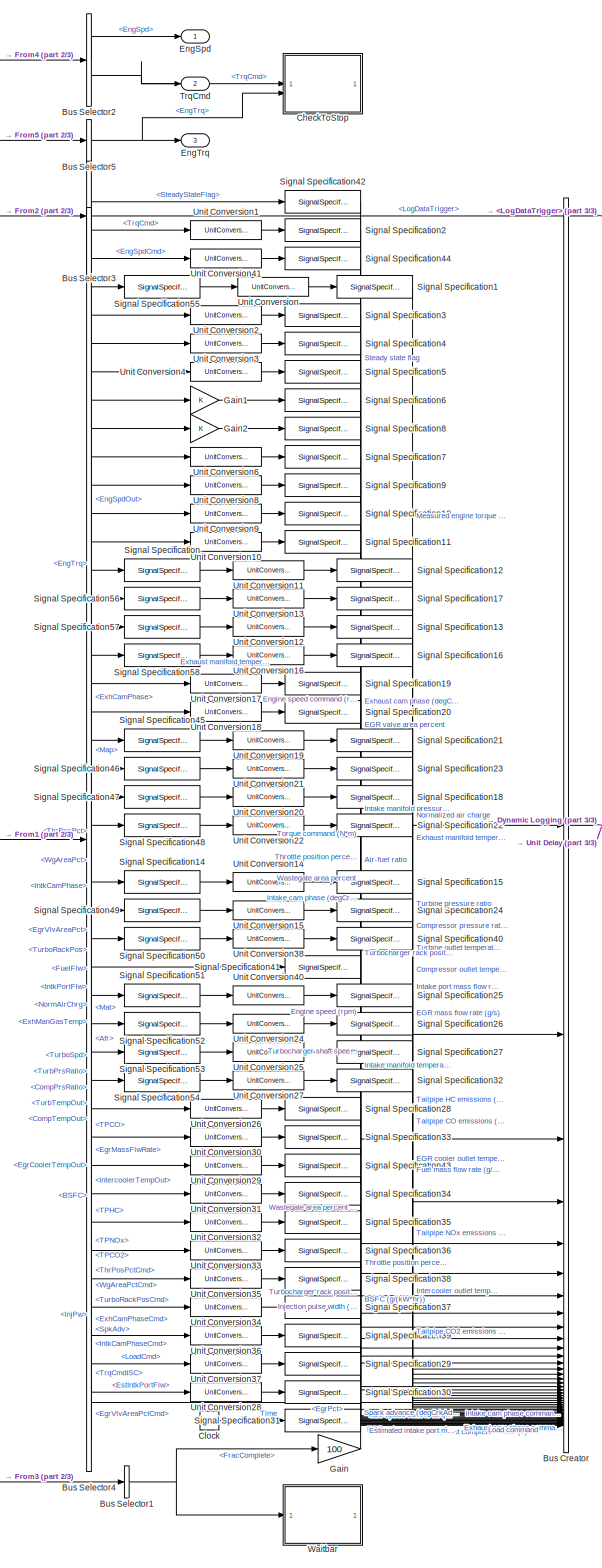
[diagram: Performance Monitor - part 1/3, center side, full height]
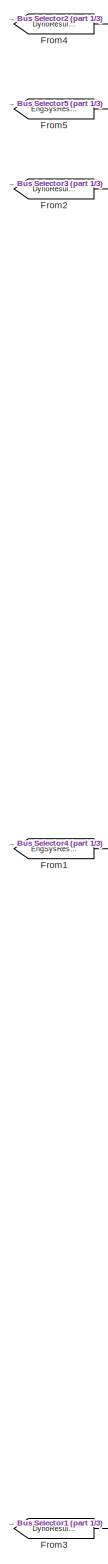
[diagram: Performance Monitor - part 2/3, left side, full height]
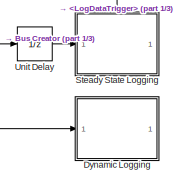
[diagram: Performance Monitor - part 3/3, middle right region]
BLOCK [SubSystem] Performance Monitor
  StartFcn = DynoResultsBlock(gcb, 'StartFcn');
  StopFcn = DynoResultsBlock(gcb, 'StopFcn');
BLOCK [BusCreator] Performance Monitor/Bus Creator
  DisplayOption = bar
  InheritFromInputs = on
  Inputs = 45
BLOCK [BusSelector] Performance Monitor/Bus Selector1
  OutputSignals = DynoCtrl.DynoCtrl.FracComplete
BLOCK [BusSelector] Performance Monitor/Bus Selector2
  OutputSignals = DynoPlnt.EngSpd,DynoCtrl.DynoCtrl.TrqCmd
BLOCK [BusSelector] Performance Monitor/Bus Selector3
  OutputSignals = DynoCtrl.DynoCtrl.LogDataTrigger,DynoCtrl.DynoCtrl.SteadyStateFlag,DynoCtrl.DynoCtrl.TrqCmd,DynoCtrl.DynoCtrl.EngSpdCmd
BLOCK [BusSelector] Performance Monitor/Bus Selector4
  OutputSignals = EngPlnt.EngTrq,EngPlnt.EngSpdOut,EngPlnt.Map,EngPlnt.Mat,EngPlnt.ThrPosPct,EngPlnt.WgAreaPct,EngPlnt.IntkCamPhase,EngPlnt.ExhCamPhase,EngPlnt.EgrVlvAreaPct,EngPlnt.TurboRackPos,EngPlnt.FuelFlw,EngPlnt.IntkPortFlw,EngPlnt.NormAirChrg,EngPlnt.ExhManGasTemp,EngPlnt.Afr,EngPlnt.TurboSpd,EngPlnt.TurbPrsRatio,EngPlnt.CompPrsRatio,EngPlnt.TurbTempOut,EngPlnt.CompTempOut,EngPlnt.EgrPct,EngPlnt.EgrMassFlwR...<+346ch>
BLOCK [BusSelector] Performance Monitor/Bus Selector5
  OutputSignals = EngPlnt.EngTrq
BLOCK [SubSystem] Performance Monitor/CheckToStop
BLOCK [Inport] Performance Monitor/CheckToStop/<EngTrq>
  Port = 2
BLOCK [Inport] Performance Monitor/CheckToStop/<TrqCmd>
BLOCK [SubSystem] Performance Monitor/CheckToStop/Chart
  ErrorFcn = Stateflow.Translate.translate
  PermitHierarchicalResolution = ExplicitOnly
  PortSchema = {"entries":[{"content":{"sides":[{"content":{"connectorIds":["In3","In4","In2","In5","In1"]},"type":"ConnectorPlacement.EquallySpacedRectSide","uuid":"91d656ef-4f5d-49c3-bf5e-ded947f63a7e"},{"content":{"connectorIds":["Out1"],"side":"RIGHT"},"type":"ConnectorPlacement.EquallySpacedRectSide","uuid":"33ea7cbc-c5bc-4b8a-9ce5-c2218895094f"},{"content":{"connectorIds":[],"side":"TOP"},"type":"Connector...<+264ch>
  SFBlockType = Chart
  TreatAsAtomicUnit = on
BLOCK [Demux] Performance Monitor/CheckToStop/Chart/ Demux 
  Outputs = 1
BLOCK [S-Function] Performance Monitor/CheckToStop/Chart/ SFunction 
  EnableBusSupport = off
  FunctionName = sf_sfun
  PortCounts = [5 2]
  SFcnIsStateOwnerBlock = off
  SFunctionDeploymentMode = off
  Tag = Stateflow S-Function 4
BLOCK [Terminator] Performance Monitor/CheckToStop/Chart/ Terminator 
BLOCK [Outport] Performance Monitor/CheckToStop/Chart/doStop
BLOCK [Inport] Performance Monitor/CheckToStop/Chart/time
BLOCK [Inport] Performance Monitor/CheckToStop/Chart/trq
  Port = 2
BLOCK [Inport] Performance Monitor/CheckToStop/Chart/trqCmd
  Port = 3
BLOCK [Inport] Performance Monitor/CheckToStop/Chart/trqCmd_1
  Port = 4
BLOCK [Inport] Performance Monitor/CheckToStop/Chart/trq_1
  Port = 5
BLOCK [Clock] Performance Monitor/CheckToStop/Clock
BLOCK [Stop] Performance Monitor/CheckToStop/Stop Simulation
BLOCK [UnitDelay] Performance Monitor/CheckToStop/Unit Delay
  HasFrameUpgradeWarning = on
BLOCK [UnitDelay] Performance Monitor/CheckToStop/Unit Delay3
  HasFrameUpgradeWarning = on
BLOCK [Clock] Performance Monitor/Clock
BLOCK [SubSystem] Performance Monitor/Dynamic Logging
BLOCK [BusCreator] Performance Monitor/Dynamic Logging/Bus Creator
  DisplayOption = bar
  InheritFromInputs = on
  Inputs = 9
BLOCK [BusSelector] Performance Monitor/Dynamic Logging/Bus Selector
  OutputSignals = Torque command (N*m),Measured engine torque (N*m),Engine speed (rpm),BSFC (g/(kW*hr)),Fuel mass flow rate (g/s),Intake port mass flow rate (g/s),Turbocharger shaft speed (rpm),Intake manifold pressure (kPa),Time (s)
BLOCK [Inport] Performance Monitor/Dynamic Logging/LogData
BLOCK [ToWorkspace] Performance Monitor/Dynamic Logging/To Workspace
  Decimation = 100
  FixptAsFi = on
  MaxDataPoints = inf
  SampleTime = -1
  VariableName = DynamicDynoSimOut
BLOCK [Outport] Performance Monitor/EngSpd
  VectorParamsAs1DForOutWhenUnconnected = off
BLOCK [Outport] Performance Monitor/EngTrq
  Port = 3
  VectorParamsAs1DForOutWhenUnconnected = off
BLOCK [From] Performance Monitor/From1
  GotoTag = EngSysResults
  TagVisibility = global
BLOCK [From] Performance Monitor/From2
  GotoTag = DynoResults
  TagVisibility = global
BLOCK [From] Performance Monitor/From3
  GotoTag = DynoResults
  TagVisibility = global
BLOCK [From] Performance Monitor/From4
  GotoTag = DynoResults
  TagVisibility = global
BLOCK [From] Performance Monitor/From5
  GotoTag = EngSysResults
  TagVisibility = global
BLOCK [Gain] Performance Monitor/Gain
  Gain = 100
BLOCK [Gain] Performance Monitor/Gain1
BLOCK [Gain] Performance Monitor/Gain2
BLOCK [SignalSpecification] Performance Monitor/Signal Specification
  Unit = kg/s
BLOCK [SignalSpecification] Performance Monitor/Signal Specification1
  Unit = N*m
BLOCK [SignalSpecification] Performance Monitor/Signal Specification10
  Unit = %
BLOCK [SignalSpecification] Performance Monitor/Signal Specification11
  Unit = 1
BLOCK [SignalSpecification] Performance Monitor/Signal Specification12
  Unit = g/s
BLOCK [SignalSpecification] Performance Monitor/Signal Specification13
  Unit = 1
BLOCK [SignalSpecification] Performance Monitor/Signal Specification14
  Unit = kg/s
BLOCK [SignalSpecification] Performance Monitor/Signal Specification15
  Unit = g/s
BLOCK [SignalSpecification] Performance Monitor/Signal Specification16
  Unit = °C
BLOCK [SignalSpecification] Performance Monitor/Signal Specification17
  Unit = g/s
BLOCK [SignalSpecification] Performance Monitor/Signal Specification18
  Unit = °C
BLOCK [SignalSpecification] Performance Monitor/Signal Specification19
  Unit = 1
BLOCK [SignalSpecification] Performance Monitor/Signal Specification2
  Unit = N*m
BLOCK [SignalSpecification] Performance Monitor/Signal Specification20
  Unit = rpm
BLOCK [SignalSpecification] Performance Monitor/Signal Specification21
  Unit = 1
BLOCK [SignalSpecification] Performance Monitor/Signal Specification22
  Unit = °C
BLOCK [SignalSpecification] Performance Monitor/Signal Specification23
  Unit = 1
BLOCK [SignalSpecification] Performance Monitor/Signal Specification24
  Unit = °C
BLOCK [SignalSpecification] Performance Monitor/Signal Specification25
  Unit = g/s
BLOCK [SignalSpecification] Performance Monitor/Signal Specification26
  Unit = g/s
BLOCK [SignalSpecification] Performance Monitor/Signal Specification27
  Unit = g/s
BLOCK [SignalSpecification] Performance Monitor/Signal Specification28
  Unit = %
BLOCK [SignalSpecification] Performance Monitor/Signal Specification29
  Unit = 1
BLOCK [SignalSpecification] Performance Monitor/Signal Specification3
  Unit = rpm
BLOCK [SignalSpecification] Performance Monitor/Signal Specification30
  Unit = g/s
BLOCK [SignalSpecification] Performance Monitor/Signal Specification31
  Unit = s
BLOCK [SignalSpecification] Performance Monitor/Signal Specification32
  Unit = g/s
BLOCK [SignalSpecification] Performance Monitor/Signal Specification33
  Unit = %
BLOCK [SignalSpecification] Performance Monitor/Signal Specification34
  Unit = ms
BLOCK [SignalSpecification] Performance Monitor/Signal Specification35
  Unit = deg
BLOCK [SignalSpecification] Performance Monitor/Signal Specification36
  Unit = deg
BLOCK [SignalSpecification] Performance Monitor/Signal Specification37
  Unit = N*m
BLOCK [SignalSpecification] Performance Monitor/Signal Specification38
  Unit = deg
BLOCK [SignalSpecification] Performance Monitor/Signal Specification39
  Unit = %
BLOCK [SignalSpecification] Performance Monitor/Signal Specification4
  Unit = kPa
BLOCK [SignalSpecification] Performance Monitor/Signal Specification40
  Unit = °C
BLOCK [SignalSpecification] Performance Monitor/Signal Specification41
  Unit = g/(kW*hr)
BLOCK [SignalSpecification] Performance Monitor/Signal Specification42
  Unit = 1
BLOCK [SignalSpecification] Performance Monitor/Signal Specification43
  Unit = 1
BLOCK [SignalSpecification] Performance Monitor/Signal Specification44
  Unit = rpm
BLOCK [SignalSpecification] Performance Monitor/Signal Specification45
  Unit = 1
BLOCK [SignalSpecification] Performance Monitor/Signal Specification46
  Unit = 1
BLOCK [SignalSpecification] Performance Monitor/Signal Specification47
  Unit = K
BLOCK [SignalSpecification] Performance Monitor/Signal Specification48
  Unit = K
BLOCK [SignalSpecification] Performance Monitor/Signal Specification49
  Unit = K
BLOCK [SignalSpecification] Performance Monitor/Signal Specification5
  Unit = °C
BLOCK [SignalSpecification] Performance Monitor/Signal Specification50
  Unit = K
BLOCK [SignalSpecification] Performance Monitor/Signal Specification51
  Unit = kg/s
BLOCK [SignalSpecification] Performance Monitor/Signal Specification52
  Unit = kg/s
BLOCK [SignalSpecification] Performance Monitor/Signal Specification53
  Unit = kg/s
BLOCK [SignalSpecification] Performance Monitor/Signal Specification54
  Unit = kg/s
BLOCK [SignalSpecification] Performance Monitor/Signal Specification55
  Unit = N*m
BLOCK [SignalSpecification] Performance Monitor/Signal Specification56
  Unit = kg/s
BLOCK [SignalSpecification] Performance Monitor/Signal Specification57
  Unit = 1
BLOCK [SignalSpecification] Performance Monitor/Signal Specification58
  Unit = K
BLOCK [SignalSpecification] Performance Monitor/Signal Specification6
  Unit = %
BLOCK [SignalSpecification] Performance Monitor/Signal Specification7
  Unit = deg
BLOCK [SignalSpecification] Performance Monitor/Signal Specification8
  Unit = %
BLOCK [SignalSpecification] Performance Monitor/Signal Specification9
  Unit = deg
BLOCK [SubSystem] Performance Monitor/Steady State Logging
BLOCK [Inport] Performance Monitor/Steady State Logging/LogData
BLOCK [ToWorkspace] Performance Monitor/Steady State Logging/To Workspace
  FixptAsFi = on
  MaxDataPoints = inf
  SampleTime = -1
  VariableName = SteadyDynoSimOut
BLOCK [TriggerPort] Performance Monitor/Steady State Logging/Trigger
  PortDimensions = 1
  StatesWhenEnabling = held
  VariantControl = Variant
BLOCK [Outport] Performance Monitor/TrqCmd
  Port = 2
  VectorParamsAs1DForOutWhenUnconnected = off
BLOCK [UnitConversion] Performance Monitor/Unit Conversion
BLOCK [UnitConversion] Performance Monitor/Unit Conversion1
BLOCK [UnitConversion] Performance Monitor/Unit Conversion10
BLOCK [UnitConversion] Performance Monitor/Unit Conversion11
BLOCK [UnitConversion] Performance Monitor/Unit Conversion12
BLOCK [UnitConversion] Performance Monitor/Unit Conversion13
BLOCK [UnitConversion] Performance Monitor/Unit Conversion14
BLOCK [UnitConversion] Performance Monitor/Unit Conversion15
BLOCK [UnitConversion] Performance Monitor/Unit Conversion16
BLOCK [UnitConversion] Performance Monitor/Unit Conversion17
BLOCK [UnitConversion] Performance Monitor/Unit Conversion18
BLOCK [UnitConversion] Performance Monitor/Unit Conversion19
BLOCK [UnitConversion] Performance Monitor/Unit Conversion2
BLOCK [UnitConversion] Performance Monitor/Unit Conversion20
BLOCK [UnitConversion] Performance Monitor/Unit Conversion21
BLOCK [UnitConversion] Performance Monitor/Unit Conversion22
BLOCK [UnitConversion] Performance Monitor/Unit Conversion24
BLOCK [UnitConversion] Performance Monitor/Unit Conversion25
BLOCK [UnitConversion] Performance Monitor/Unit Conversion26
BLOCK [UnitConversion] Performance Monitor/Unit Conversion27
BLOCK [UnitConversion] Performance Monitor/Unit Conversion28
BLOCK [UnitConversion] Performance Monitor/Unit Conversion29
BLOCK [UnitConversion] Performance Monitor/Unit Conversion3
BLOCK [UnitConversion] Performance Monitor/Unit Conversion30
BLOCK [UnitConversion] Performance Monitor/Unit Conversion31
BLOCK [UnitConversion] Performance Monitor/Unit Conversion32
BLOCK [UnitConversion] Performance Monitor/Unit Conversion33
BLOCK [UnitConversion] Performance Monitor/Unit Conversion34
BLOCK [UnitConversion] Performance Monitor/Unit Conversion35
BLOCK [UnitConversion] Performance Monitor/Unit Conversion36
BLOCK [UnitConversion] Performance Monitor/Unit Conversion37
BLOCK [UnitConversion] Performance Monitor/Unit Conversion38
BLOCK [UnitConversion] Performance Monitor/Unit Conversion4
BLOCK [UnitConversion] Performance Monitor/Unit Conversion40
BLOCK [UnitConversion] Performance Monitor/Unit Conversion41
BLOCK [UnitConversion] Performance Monitor/Unit Conversion6
BLOCK [UnitConversion] Performance Monitor/Unit Conversion8
BLOCK [UnitConversion] Performance Monitor/Unit Conversion9
BLOCK [UnitDelay] Performance Monitor/Unit Delay
  HasFrameUpgradeWarning = on
  SampleTime = -1
BLOCK [SubSystem] Performance Monitor/Waitbar
BLOCK [Inport] Performance Monitor/Waitbar/FracComplete
BLOCK [FunctionCallGenerator] Performance Monitor/Waitbar/Function-Call Generator
  SampleTime = 5
BLOCK [SubSystem] Performance Monitor/Waitbar/Function-Call Subsystem
  TreatAsAtomicUnit = on
BLOCK [Inport] Performance Monitor/Waitbar/Function-Call Subsystem/FracComplete
BLOCK [SubSystem] Performance Monitor/Waitbar/Function-Call Subsystem/Waitbar
  ErrorFcn = Stateflow.Translate.translate
  PermitHierarchicalResolution = ExplicitOnly
  SFBlockType = MATLAB Function
  TreatAsAtomicUnit = on
BLOCK [Demux] Performance Monitor/Waitbar/Function-Call Subsystem/Waitbar/ Demux 
  Outputs = 1
BLOCK [S-Function] Performance Monitor/Waitbar/Function-Call Subsystem/Waitbar/ SFunction 
  EnableBusSupport = off
  FunctionName = sf_sfun
  PortCounts = [1 1]
  SFcnIsStateOwnerBlock = off
  SFunctionDeploymentMode = off
  Tag = Stateflow S-Function 2
BLOCK [Terminator] Performance Monitor/Waitbar/Function-Call Subsystem/Waitbar/ Terminator 
BLOCK [Inport] Performance Monitor/Waitbar/Function-Call Subsystem/Waitbar/FracComplete
BLOCK [TriggerPort] Performance Monitor/Waitbar/Function-Call Subsystem/function
  StatesWhenEnabling = held
  TriggerType = function-call
  VariantControl = Variant
BLOCK [RateTransition] Performance Monitor/Waitbar/Rate Transition
BLOCK [SubSystem] Recalibrate CI Engine
  OpenFcn = block=[bdroot '/Recalibrate CI Engine'];\n\nmodelStatus = get_param(bdroot,'SimulationStatus');\n\nif ~bdIsLibrary(bdroot) && strcmp(modelStatus,'stopped')\n   autoicon('autolibciengresize',block,'open');\n   open_system(block,'mask');\nelseif ~bdIsLibrary(bdroot) && ~strcmp(modelStatus,'stopped')\nelse\nend\n\nclear modelStatus;\nclear block;
BLOCK [SubSystem] Recalibrate Engine
  OpenFcn = block=[bdroot '/Recalibrate Engine'];\n\nmodelStatus = get_param(bdroot,'SimulationStatus');\n\nif ~bdIsLibrary(bdroot) && strcmp(modelStatus,'stopped')\n   autoicon('autolibsiengresize',block,'open');\n   open_system(block,'mask');\nend\n\nclear modelStatus;\nclear block;
BLOCK [SubSystem] Subsystem1
  OpenFcn = DynamometerStart(gcb, 'SteadyState')
BLOCK [SubSystem] Subsystem3
  OpenFcn = engblk=[bdroot,'/Engine System/Engine Plant/Engine'];\nengvar=get_param(engblk,'ActiveVariant');\nif strcmp(engvar,'CI Engine') || strcmp(engvar,'CI Mapped Engine')\n  RecalibrateCIController(gcb, 'OpenFcn')\nelse\n  RecalibrateSIController(gcb, 'OpenFcn')\nend\nclear engblk engvar
BLOCK [SubSystem] Subsystem4
  OpenFcn = if strcmp(get_param(gcb, 'SiOrCi'),'sih2')\n  helpview([docroot,'/toolbox/autoblks/helptargets.map'], 'sih2engine_dyno_refapp')\nelseif strcmp(get_param(gcb, 'SiOrCi'),'ci')\n  helpview([docroot,'/toolbox/autoblks/helptargets.map'], 'ciengine_dyno_refapp')\nelse\n  helpview([docroot,'/toolbox/autoblks/helptargets.map'], 'siengine_dyno_refapp')\nend
BLOCK [SubSystem] Subsystem5
  LoadFcn = [~]=GenerateMappedEngineCalibrations(gcb, 'CheckMBCLicense');
  OpenFcn = [~]=GenerateMappedEngineCalibrations(gcb, 'EnableCalToolButton');\nopen_system(gcb, 'mask')
BLOCK [SubSystem] Subsystem6
  OpenFcn = [~,~,~,~,~]=FitSiEngineDL(bdroot(gcb));
BLOCK [Display] Torque Command
  Decimation = 100
ANNOTATION (root): Engine Dynamometer
ANNOTATION (root): <copyright redacted>
LINE Dynamometer Control/Calibrate Throttle and Wastegate/Bus Assignment:1 -> Dynamometer Control/Calibrate Throttle and Wastegate/Bus Creator4:2
LINE Dynamometer Control/Calibrate Throttle and Wastegate/Bus Creator3:1 -> Dynamometer Control/Calibrate Throttle and Wastegate/Bus Creator4:1
LINE Dynamometer Control/Calibrate Throttle and Wastegate/Bus Creator4:1 -> Dynamometer Control/Calibrate Throttle and Wastegate/DynoCtrl:1
LINE Dynamometer Control/Calibrate Throttle and Wastegate/Bus Selector1:1 -> Dynamometer Control/Calibrate Throttle and Wastegate/TPP and WAP Calibration Controller:8
LINE Dynamometer Control/Calibrate Throttle and Wastegate/Bus Selector1:2 -> Dynamometer Control/Calibrate Throttle and Wastegate/Unit Conversion1:1
LINE Dynamometer Control/Calibrate Throttle and Wastegate/Bus Selector2:1 -> Dynamometer Control/Calibrate Throttle and Wastegate/Divide:1
LINE Dynamometer Control/Calibrate Throttle and Wastegate/Bus Selector2:2 -> Dynamometer Control/Calibrate Throttle and Wastegate/Mux:3
LINE Dynamometer Control/Calibrate Throttle and Wastegate/Bus Selector3:1 -> Dynamometer Control/Calibrate Throttle and Wastegate/Mux:1
LINE Dynamometer Control/Calibrate Throttle and Wastegate/Bus Selector:1 -> Dynamometer Control/Calibrate Throttle and Wastegate/Switch:3
NET Dynamometer Control/Calibrate Throttle and Wastegate/Check Steady State1:1 -> Dynamometer Control/Calibrate Throttle and Wastegate/Data Type Conversion2:1, Dynamometer Control/Calibrate Throttle and Wastegate/Unit Delay:1
LINE Dynamometer Control/Calibrate Throttle and Wastegate/Constant:1 -> Dynamometer Control/Calibrate Throttle and Wastegate/Switch:1
LINE Dynamometer Control/Calibrate Throttle and Wastegate/Data Type Conversion2:1 -> Dynamometer Control/Calibrate Throttle and Wastegate/Bus Creator3:1
LINE Dynamometer Control/Calibrate Throttle and Wastegate/Divide:1 -> Dynamometer Control/Calibrate Throttle and Wastegate/Mux:2
LINE Dynamometer Control/Calibrate Throttle and Wastegate/Dyno:1 -> Dynamometer Control/Calibrate Throttle and Wastegate/Bus Selector3:1
NET Dynamometer Control/Calibrate Throttle and Wastegate/Eng:1 -> Dynamometer Control/Calibrate Throttle and Wastegate/Bus Selector1:1, Dynamometer Control/Calibrate Throttle and Wastegate/Bus Selector2:1
NET Dynamometer Control/Calibrate Throttle and Wastegate/EngCtrlr:1 -> Dynamometer Control/Calibrate Throttle and Wastegate/Bus Selector:1, Dynamometer Control/Calibrate Throttle and Wastegate/Rate Transition1:1
LINE Dynamometer Control/Calibrate Throttle and Wastegate/Engine Speed Command Vector:1 -> Dynamometer Control/Calibrate Throttle and Wastegate/TPP and WAP Calibration Controller:2
LINE Dynamometer Control/Calibrate Throttle and Wastegate/Fan Flow Speed:1 -> Dynamometer Control/Calibrate Throttle and Wastegate/Signal Specification2:1
NET Dynamometer Control/Calibrate Throttle and Wastegate/Maximum Torque Command:1 -> Dynamometer Control/Calibrate Throttle and Wastegate/Divide:2, Dynamometer Control/Calibrate Throttle and Wastegate/TPP and WAP Calibration Controller:6
LINE Dynamometer Control/Calibrate Throttle and Wastegate/Maximum Torque Step:1 -> Dynamometer Control/Calibrate Throttle and Wastegate/TPP and WAP Calibration Controller:4
LINE Dynamometer Control/Calibrate Throttle and Wastegate/Memory1:1 -> Dynamometer Control/Calibrate Throttle and Wastegate/Signal Specification3:1
LINE Dynamometer Control/Calibrate Throttle and Wastegate/Memory2:1 -> Dynamometer Control/Calibrate Throttle and Wastegate/Signal Specification5:1
LINE Dynamometer Control/Calibrate Throttle and Wastegate/Memory:1 -> Dynamometer Control/Calibrate Throttle and Wastegate/Signal Specification4:1
LINE Dynamometer Control/Calibrate Throttle and Wastegate/Minimum Torque Command:1 -> Dynamometer Control/Calibrate Throttle and Wastegate/TPP and WAP Calibration Controller:5
LINE Dynamometer Control/Calibrate Throttle and Wastegate/Minimum Torque Step:1 -> Dynamometer Control/Calibrate Throttle and Wastegate/TPP and WAP Calibration Controller:3
LINE Dynamometer Control/Calibrate Throttle and Wastegate/Minimum Turbocharger Speed:1 -> Dynamometer Control/Calibrate Throttle and Wastegate/TPP and WAP Calibration Controller:7
LINE Dynamometer Control/Calibrate Throttle and Wastegate/Mux:1 -> Dynamometer Control/Calibrate Throttle and Wastegate/Check Steady State1:1
LINE Dynamometer Control/Calibrate Throttle and Wastegate/Rate Transition1:1 -> Dynamometer Control/Calibrate Throttle and Wastegate/Bus Assignment:1
LINE Dynamometer Control/Calibrate Throttle and Wastegate/Rate Transition2:1 -> Dynamometer Control/Calibrate Throttle and Wastegate/Memory1:1
LINE Dynamometer Control/Calibrate Throttle and Wastegate/Rate Transition3:1 -> Dynamometer Control/Calibrate Throttle and Wastegate/Memory:1
LINE Dynamometer Control/Calibrate Throttle and Wastegate/Rate Transition4:1 -> Dynamometer Control/Calibrate Throttle and Wastegate/Bus Creator3:2
LINE Dynamometer Control/Calibrate Throttle and Wastegate/Rate Transition5:1 -> Dynamometer Control/Calibrate Throttle and Wastegate/Bus Creator3:3
LINE Dynamometer Control/Calibrate Throttle and Wastegate/Rate Transition6:1 -> Dynamometer Control/Calibrate Throttle and Wastegate/Bus Creator3:4
LINE Dynamometer Control/Calibrate Throttle and Wastegate/Rate Transition7:1 -> Dynamometer Control/Calibrate Throttle and Wastegate/Memory2:1
LINE Dynamometer Control/Calibrate Throttle and Wastegate/Signal Specification1:1 -> Dynamometer Control/Calibrate Throttle and Wastegate/Rate Transition4:1
LINE Dynamometer Control/Calibrate Throttle and Wastegate/Signal Specification2:1 -> Dynamometer Control/Calibrate Throttle and Wastegate/Bus Creator3:5
LINE Dynamometer Control/Calibrate Throttle and Wastegate/Signal Specification3:1 -> Dynamometer Control/Calibrate Throttle and Wastegate/Bus Assignment:2
LINE Dynamometer Control/Calibrate Throttle and Wastegate/Signal Specification4:1 -> Dynamometer Control/Calibrate Throttle and Wastegate/Bus Assignment:3
LINE Dynamometer Control/Calibrate Throttle and Wastegate/Signal Specification5:1 -> Dynamometer Control/Calibrate Throttle and Wastegate/Bus Assignment:4
LINE Dynamometer Control/Calibrate Throttle and Wastegate/Signal Specification6:1 -> Dynamometer Control/Calibrate Throttle and Wastegate/TPP and WAP Calibration Controller:9
LINE Dynamometer Control/Calibrate Throttle and Wastegate/Signal Specification:1 -> Dynamometer Control/Calibrate Throttle and Wastegate/Rate Transition5:1
LINE Dynamometer Control/Calibrate Throttle and Wastegate/Switch:1 -> Dynamometer Control/Calibrate Throttle and Wastegate/Rate Transition7:1
LINE Dynamometer Control/Calibrate Throttle and Wastegate/TPP and WAP Calibration Controller:1 -> Dynamometer Control/Calibrate Throttle and Wastegate/Signal Specification1:1
LINE Dynamometer Control/Calibrate Throttle and Wastegate/TPP and WAP Calibration Controller:2 -> Dynamometer Control/Calibrate Throttle and Wastegate/Signal Specification:1
LINE Dynamometer Control/Calibrate Throttle and Wastegate/TPP and WAP Calibration Controller:3 -> Dynamometer Control/Calibrate Throttle and Wastegate/Rate Transition6:1
LINE Dynamometer Control/Calibrate Throttle and Wastegate/TPP and WAP Calibration Controller:4 -> Dynamometer Control/Calibrate Throttle and Wastegate/Stop Simulation:1
LINE Dynamometer Control/Calibrate Throttle and Wastegate/TPP and WAP Calibration Controller:5 -> Dynamometer Control/Calibrate Throttle and Wastegate/Bus Creator3:6
LINE Dynamometer Control/Calibrate Throttle and Wastegate/TPP and WAP Calibration Controller:6 -> Dynamometer Control/Calibrate Throttle and Wastegate/Rate Transition2:1
LINE Dynamometer Control/Calibrate Throttle and Wastegate/TPP and WAP Calibration Controller:7 -> Dynamometer Control/Calibrate Throttle and Wastegate/Rate Transition3:1
LINE Dynamometer Control/Calibrate Throttle and Wastegate/TPP and WAP Calibration Controller:8 -> Dynamometer Control/Calibrate Throttle and Wastegate/Switch:2
LINE Dynamometer Control/Calibrate Throttle and Wastegate/Unit Conversion1:1 -> Dynamometer Control/Calibrate Throttle and Wastegate/Signal Specification6:1
LINE Dynamometer Control/Calibrate Throttle and Wastegate/Unit Delay:1 -> Dynamometer Control/Calibrate Throttle and Wastegate/TPP and WAP Calibration Controller:1
LINE Dynamometer Control/Calibration Controller/Bus Assignment:1 -> Dynamometer Control/Calibration Controller/Bus Creator4:2
LINE Dynamometer Control/Calibration Controller/Bus Creator3:1 -> Dynamometer Control/Calibration Controller/Bus Creator4:1
LINE Dynamometer Control/Calibration Controller/Bus Creator4:1 -> Dynamometer Control/Calibration Controller/DynoCtrl:1
LINE Dynamometer Control/Calibration Controller/Bus Selector1:1 -> Dynamometer Control/Calibration Controller/Fuel Calibration Controller:9
LINE Dynamometer Control/Calibration Controller/Bus Selector1:2 -> Dynamometer Control/Calibration Controller/Unit Conversion1:1
LINE Dynamometer Control/Calibration Controller/Bus Selector1:3 -> Dynamometer Control/Calibration Controller/Fuel Calibration Controller:11
LINE Dynamometer Control/Calibration Controller/Bus Selector2:1 -> Dynamometer Control/Calibration Controller/Divide2:1
LINE Dynamometer Control/Calibration Controller/Bus Selector2:2 -> Dynamometer Control/Calibration Controller/Mux:3
LINE Dynamometer Control/Calibration Controller/Bus Selector3:1 -> Dynamometer Control/Calibration Controller/Mux:1
LINE Dynamometer Control/Calibration Controller/Bus Selector4:1 -> Dynamometer Control/Calibration Controller/Gain:1
LINE Dynamometer Control/Calibration Controller/Bus Selector4:2 -> Dynamometer Control/Calibration Controller/Gain1:1
NET Dynamometer Control/Calibration Controller/Check Steady State1:1 -> Dynamometer Control/Calibration Controller/Data Type Conversion2:1, Dynamometer Control/Calibration Controller/Unit Delay:1
LINE Dynamometer Control/Calibration Controller/Constant:1 -> Dynamometer Control/Calibration Controller/Switch:1
LINE Dynamometer Control/Calibration Controller/Data Type Conversion2:1 -> Dynamometer Control/Calibration Controller/Bus Creator3:1
LINE Dynamometer Control/Calibration Controller/Divide1:1 -> Dynamometer Control/Calibration Controller/Signal Specification4:1
LINE Dynamometer Control/Calibration Controller/Divide2:1 -> Dynamometer Control/Calibration Controller/Mux:2
LINE Dynamometer Control/Calibration Controller/Divide:1 -> Dynamometer Control/Calibration Controller/Rate Transition2:1
LINE Dynamometer Control/Calibration Controller/Dyno:1 -> Dynamometer Control/Calibration Controller/Bus Selector3:1
NET Dynamometer Control/Calibration Controller/Eng:1 -> Dynamometer Control/Calibration Controller/Bus Selector1:1, Dynamometer Control/Calibration Controller/Bus Selector2:1, Dynamometer Control/Calibration Controller/Bus Selector4:1
LINE Dynamometer Control/Calibration Controller/EngCtrlr:1 -> Dynamometer Control/Calibration Controller/Rate Transition1:1
LINE Dynamometer Control/Calibration Controller/Engine Speed Command Vector:1 -> Dynamometer Control/Calibration Controller/Fuel Calibration Controller:2
LINE Dynamometer Control/Calibration Controller/Fan Flow Speed:1 -> Dynamometer Control/Calibration Controller/Signal Specification2:1
LINE Dynamometer Control/Calibration Controller/Fuel Calibration Controller:1 -> Dynamometer Control/Calibration Controller/Signal Specification1:1
LINE Dynamometer Control/Calibration Controller/Fuel Calibration Controller:2 -> Dynamometer Control/Calibration Controller/Signal Specification:1
LINE Dynamometer Control/Calibration Controller/Fuel Calibration Controller:3 -> Dynamometer Control/Calibration Controller/Rate Transition6:1
LINE Dynamometer Control/Calibration Controller/Fuel Calibration Controller:4 -> Dynamometer Control/Calibration Controller/Stop Simulation:1
LINE Dynamometer Control/Calibration Controller/Fuel Calibration Controller:5 -> Dynamometer Control/Calibration Controller/Bus Creator3:6
LINE Dynamometer Control/Calibration Controller/Fuel Calibration Controller:6 -> Dynamometer Control/Calibration Controller/Switch:2
LINE Dynamometer Control/Calibration Controller/Fuel Calibration Controller:7 -> Dynamometer Control/Calibration Controller/Switch:3
LINE Dynamometer Control/Calibration Controller/Gain1:1 -> Dynamometer Control/Calibration Controller/Gain2:1
LINE Dynamometer Control/Calibration Controller/Gain2:1 -> Dynamometer Control/Calibration Controller/Divide1:2
LINE Dynamometer Control/Calibration Controller/Gain3:1 -> Dynamometer Control/Calibration Controller/Fuel Calibration Controller:8
LINE Dynamometer Control/Calibration Controller/Gain:1 -> Dynamometer Control/Calibration Controller/Divide1:1
LINE Dynamometer Control/Calibration Controller/Inj Slope (mg//ms):1 -> Dynamometer Control/Calibration Controller/Divide:2
NET Dynamometer Control/Calibration Controller/Maximum Torque Command:1 -> Dynamometer Control/Calibration Controller/Divide2:2, Dynamometer Control/Calibration Controller/Fuel Calibration Controller:6
LINE Dynamometer Control/Calibration Controller/Maximum Torque Step:1 -> Dynamometer Control/Calibration Controller/Fuel Calibration Controller:4
LINE Dynamometer Control/Calibration Controller/Memory1:1 -> Dynamometer Control/Calibration Controller/Signal Specification3:1
LINE Dynamometer Control/Calibration Controller/Minimum Torque Command:1 -> Dynamometer Control/Calibration Controller/Fuel Calibration Controller:5
LINE Dynamometer Control/Calibration Controller/Minimum Torque Step:1 -> Dynamometer Control/Calibration Controller/Fuel Calibration Controller:3
LINE Dynamometer Control/Calibration Controller/Minimum Turbocharger Speed:1 -> Dynamometer Control/Calibration Controller/Fuel Calibration Controller:7
LINE Dynamometer Control/Calibration Controller/Mux:1 -> Dynamometer Control/Calibration Controller/Check Steady State1:1
LINE Dynamometer Control/Calibration Controller/Rate Transition1:1 -> Dynamometer Control/Calibration Controller/Bus Assignment:1
LINE Dynamometer Control/Calibration Controller/Rate Transition2:1 -> Dynamometer Control/Calibration Controller/Memory1:1
LINE Dynamometer Control/Calibration Controller/Rate Transition4:1 -> Dynamometer Control/Calibration Controller/Bus Creator3:2
LINE Dynamometer Control/Calibration Controller/Rate Transition5:1 -> Dynamometer Control/Calibration Controller/Bus Creator3:3
LINE Dynamometer Control/Calibration Controller/Rate Transition6:1 -> Dynamometer Control/Calibration Controller/Bus Creator3:4
LINE Dynamometer Control/Calibration Controller/Signal Specification1:1 -> Dynamometer Control/Calibration Controller/Rate Transition4:1
LINE Dynamometer Control/Calibration Controller/Signal Specification2:1 -> Dynamometer Control/Calibration Controller/Bus Creator3:5
LINE Dynamometer Control/Calibration Controller/Signal Specification3:1 -> Dynamometer Control/Calibration Controller/Bus Assignment:2
LINE Dynamometer Control/Calibration Controller/Signal Specification4:1 -> Dynamometer Control/Calibration Controller/Unit Conversion:1
LINE Dynamometer Control/Calibration Controller/Signal Specification5:1 -> Dynamometer Control/Calibration Controller/Gain3:1
LINE Dynamometer Control/Calibration Controller/Signal Specification6:1 -> Dynamometer Control/Calibration Controller/Fuel Calibration Controller:10
LINE Dynamometer Control/Calibration Controller/Signal Specification:1 -> Dynamometer Control/Calibration Controller/Rate Transition5:1
LINE Dynamometer Control/Calibration Controller/Switch:1 -> Dynamometer Control/Calibration Controller/Divide:1
LINE Dynamometer Control/Calibration Controller/Unit Conversion1:1 -> Dynamometer Control/Calibration Controller/Signal Specification6:1
LINE Dynamometer Control/Calibration Controller/Unit Conversion:1 -> Dynamometer Control/Calibration Controller/Signal Specification5:1
LINE Dynamometer Control/Calibration Controller/Unit Delay:1 -> Dynamometer Control/Calibration Controller/Fuel Calibration Controller:1
LINE Dynamometer Control/Dynamic/Bus Assignment:1 -> Dynamometer Control/Dynamic/Bus Creator4:2
LINE Dynamometer Control/Dynamic/Bus Creator1:1 -> Dynamometer Control/Dynamic/Bus Creator4:1
LINE Dynamometer Control/Dynamic/Bus Creator4:1 -> Dynamometer Control/Dynamic/DynoCtrl:1
LINE Dynamometer Control/Dynamic/Bus Selector6:1 -> Dynamometer Control/Dynamic/Bus Assignment:2
LINE Dynamometer Control/Dynamic/Clock:1 -> Dynamometer Control/Dynamic/Divide:1
LINE Dynamometer Control/Dynamic/Compare To Constant:1 -> Dynamometer Control/Dynamic/Stop Simulation:1
LINE Dynamometer Control/Dynamic/Constant18:1 -> Dynamometer Control/Dynamic/Divide:2
LINE Dynamometer Control/Dynamic/Constant1:1 -> Dynamometer Control/Dynamic/Bus Creator1:4
LINE Dynamometer Control/Dynamic/Constant:1 -> Dynamometer Control/Dynamic/Bus Creator1:1
LINE Dynamometer Control/Dynamic/Demux:1 -> Dynamometer Control/Dynamic/Signal Specification1:1
LINE Dynamometer Control/Dynamic/Demux:2 -> Dynamometer Control/Dynamic/Signal Specification:1
NET Dynamometer Control/Dynamic/Divide:1 -> Dynamometer Control/Dynamic/Bus Creator1:6, Dynamometer Control/Dynamic/Compare To Constant:1
LINE Dynamometer Control/Dynamic/Dyno:1 -> Dynamometer Control/Dynamic/Terminator:1
LINE Dynamometer Control/Dynamic/Eng:1 -> Dynamometer Control/Dynamic/Terminator1:1
NET Dynamometer Control/Dynamic/EngCtrlr:1 -> Dynamometer Control/Dynamic/Bus Assignment:1, Dynamometer Control/Dynamic/Bus Selector6:1
LINE Dynamometer Control/Dynamic/Fan Flow Speed:1 -> Dynamometer Control/Dynamic/Signal Specification2:1
LINE Dynamometer Control/Dynamic/From Workspace:1 -> Dynamometer Control/Dynamic/Rate Transition:1
LINE Dynamometer Control/Dynamic/Rate Transition:1 -> Dynamometer Control/Dynamic/Demux:1
LINE Dynamometer Control/Dynamic/Signal Specification1:1 -> Dynamometer Control/Dynamic/Bus Creator1:2
LINE Dynamometer Control/Dynamic/Signal Specification2:1 -> Dynamometer Control/Dynamic/Bus Creator1:5
LINE Dynamometer Control/Dynamic/Signal Specification:1 -> Dynamometer Control/Dynamic/Bus Creator1:3
LINE Dynamometer Control/Open Loop/Bus Assignment:1 -> Dynamometer Control/Open Loop/Bus Creator4:2
LINE Dynamometer Control/Open Loop/Bus Creator1:1 -> Dynamometer Control/Open Loop/Bus Creator4:1
LINE Dynamometer Control/Open Loop/Bus Creator4:1 -> Dynamometer Control/Open Loop/DynoCtrl:1
LINE Dynamometer Control/Open Loop/Bus Selector1:1 -> Dynamometer Control/Open Loop/Open-Loop AFR Control:4
LINE Dynamometer Control/Open Loop/Bus Selector2:1 -> Dynamometer Control/Open Loop/Filter 1:1
NET Dynamometer Control/Open Loop/Bus Selector2:2 -> Dynamometer Control/Open Loop/Filter 2:1, Dynamometer Control/Open Loop/Select Operating Point:10
LINE Dynamometer Control/Open Loop/Bus Selector3:1 -> Dynamometer Control/Open Loop/Mux:1
LINE Dynamometer Control/Open Loop/Bus Selector:1 -> Dynamometer Control/Open Loop/Sum:2
NET Dynamometer Control/Open Loop/Check Steady State:1 -> Dynamometer Control/Open Loop/Data Type Conversion2:1, Dynamometer Control/Open Loop/Select Operating Point:1
LINE Dynamometer Control/Open Loop/Constant1:1 -> Dynamometer Control/Open Loop/Signal Specification:1
LINE Dynamometer Control/Open Loop/Constant:1 -> Dynamometer Control/Open Loop/Open-Loop AFR Control:3
LINE Dynamometer Control/Open Loop/Data Type Conversion2:1 -> Dynamometer Control/Open Loop/Bus Creator1:1
LINE Dynamometer Control/Open Loop/Divide:1 -> Dynamometer Control/Open Loop/Mux:2
LINE Dynamometer Control/Open Loop/Dyno:1 -> Dynamometer Control/Open Loop/Bus Selector3:1
LINE Dynamometer Control/Open Loop/Eng:1 -> Dynamometer Control/Open Loop/Bus Selector2:1
NET Dynamometer Control/Open Loop/EngCtrlr:1 -> Dynamometer Control/Open Loop/Bus Assignment:1, Dynamometer Control/Open Loop/Bus Selector1:1, Dynamometer Control/Open Loop/Bus Selector:1
LINE Dynamometer Control/Open Loop/Engine Speed Command Vector:1 -> Dynamometer Control/Open Loop/Select Operating Point:3
LINE Dynamometer Control/Open Loop/Exhaust Phaser Command Vector:1 -> Dynamometer Control/Open Loop/Select Operating Point:7
LINE Dynamometer Control/Open Loop/Fan Flow Speed:1 -> Dynamometer Control/Open Loop/Signal Specification2:1
LINE Dynamometer Control/Open Loop/Filter 1:1 -> Dynamometer Control/Open Loop/Divide:1
LINE Dynamometer Control/Open Loop/Filter 2:1 -> Dynamometer Control/Open Loop/Mux:3
LINE Dynamometer Control/Open Loop/Filter 3:1 -> Dynamometer Control/Open Loop/Signal Specification1:1
LINE Dynamometer Control/Open Loop/Gain:1 -> Dynamometer Control/Open Loop/Open-Loop AFR Control:1
LINE Dynamometer Control/Open Loop/Intake Phaser Command Vector:1 -> Dynamometer Control/Open Loop/Select Operating Point:6
LINE Dynamometer Control/Open Loop/Lambda Command Vector:1 -> Dynamometer Control/Open Loop/Select Operating Point:9
LINE Dynamometer Control/Open Loop/LambdaCmd Filter:1 -> Dynamometer Control/Open Loop/Gain:1
LINE Dynamometer Control/Open Loop/Maximum MAP Limit:1 -> Dynamometer Control/Open Loop/Select Operating Point:11
LINE Dynamometer Control/Open Loop/Maximum Torque Command:1 -> Dynamometer Control/Open Loop/Divide:2
LINE Dynamometer Control/Open Loop/Mux:1 -> Dynamometer Control/Open Loop/Check Steady State:1
LINE Dynamometer Control/Open Loop/Open-Loop AFR Control/  :1 -> Dynamometer Control/Open Loop/Open-Loop AFR Control/Saturation1:1
LINE Dynamometer Control/Open Loop/Open-Loop AFR Control/ 1:1 -> Dynamometer Control/Open Loop/Open-Loop AFR Control/  :2
LINE Dynamometer Control/Open Loop/Open-Loop AFR Control/AfrCmd:1 -> Dynamometer Control/Open Loop/Open-Loop AFR Control/Fuel Flow Rate:2
LINE Dynamometer Control/Open Loop/Open-Loop AFR Control/Constant:1 -> Dynamometer Control/Open Loop/Open-Loop AFR Control/Fuel Cut:3
LINE Dynamometer Control/Open Loop/Open-Loop AFR Control/EngSpd:1 -> Dynamometer Control/Open Loop/Open-Loop AFR Control/Saturation:1
LINE Dynamometer Control/Open Loop/Open-Loop AFR Control/EstIntkAirMassFlw:1 -> Dynamometer Control/Open Loop/Open-Loop AFR Control/kg//s to g//s:1
LINE Dynamometer Control/Open Loop/Open-Loop AFR Control/Fuel Cut:1 -> Dynamometer Control/Open Loop/Open-Loop AFR Control/InjPw:1
LINE Dynamometer Control/Open Loop/Open-Loop AFR Control/Fuel Flow Rate:1 -> Dynamometer Control/Open Loop/Open-Loop AFR Control/  :1
LINE Dynamometer Control/Open Loop/Open-Loop AFR Control/Injector Slope mg//ms:1 -> Dynamometer Control/Open Loop/Open-Loop AFR Control/ 1:5
LINE Dynamometer Control/Open Loop/Open-Loop AFR Control/Saturation1:1 -> Dynamometer Control/Open Loop/Open-Loop AFR Control/Fuel Cut:1
LINE Dynamometer Control/Open Loop/Open-Loop AFR Control/Saturation:1 -> Dynamometer Control/Open Loop/Open-Loop AFR Control/ 1:6
LINE Dynamometer Control/Open Loop/Open-Loop AFR Control/TrqCmd:1 -> Dynamometer Control/Open Loop/Open-Loop AFR Control/Fuel Cut:2
LINE Dynamometer Control/Open Loop/Open-Loop AFR Control/inj per cycle:1 -> Dynamometer Control/Open Loop/Open-Loop AFR Control/ 1:4
LINE Dynamometer Control/Open Loop/Open-Loop AFR Control/kg//s to g//s:1 -> Dynamometer Control/Open Loop/Open-Loop AFR Control/Fuel Flow Rate:1
LINE Dynamometer Control/Open Loop/Open-Loop AFR Control/mg per g:1 -> Dynamometer Control/Open Loop/Open-Loop AFR Control/ 1:2
LINE Dynamometer Control/Open Loop/Open-Loop AFR Control/rev per cycle:1 -> Dynamometer Control/Open Loop/Open-Loop AFR Control/ 1:1
LINE Dynamometer Control/Open Loop/Open-Loop AFR Control/sec per min:1 -> Dynamometer Control/Open Loop/Open-Loop AFR Control/ 1:3
LINE Dynamometer Control/Open Loop/Open-Loop AFR Control:1 -> Dynamometer Control/Open Loop/Signal Specification8:1
LINE Dynamometer Control/Open Loop/Rate Transition1:1 -> Dynamometer Control/Open Loop/Bus Assignment:2
NET Dynamometer Control/Open Loop/Rate Transition2:1 -> Dynamometer Control/Open Loop/Bus Creator1:2, Dynamometer Control/Open Loop/Open-Loop AFR Control:2
LINE Dynamometer Control/Open Loop/Rate Transition3:1 -> Dynamometer Control/Open Loop/Bus Creator1:3
LINE Dynamometer Control/Open Loop/Rate Transition4:1 -> Dynamometer Control/Open Loop/Bus Creator1:4
LINE Dynamometer Control/Open Loop/Rate Transition5:1 -> Dynamometer Control/Open Loop/Bus Assignment:3
LINE Dynamometer Control/Open Loop/Rate Transition6:1 -> Dynamometer Control/Open Loop/Bus Assignment:4
LINE Dynamometer Control/Open Loop/Rate Transition7:1 -> Dynamometer Control/Open Loop/Bus Assignment:5
LINE Dynamometer Control/Open Loop/Rate Transition8:1 -> Dynamometer Control/Open Loop/Bus Assignment:6
LINE Dynamometer Control/Open Loop/Rate Transition9:1 -> Dynamometer Control/Open Loop/Bus Assignment:7
LINE Dynamometer Control/Open Loop/Select Operating Point:1 -> Dynamometer Control/Open Loop/Filter 3:1
LINE Dynamometer Control/Open Loop/Select Operating Point:10 -> Dynamometer Control/Open Loop/SpkDeltaCmd Filter:1
LINE Dynamometer Control/Open Loop/Select Operating Point:11 -> Dynamometer Control/Open Loop/Terminator:1
LINE Dynamometer Control/Open Loop/Select Operating Point:2 -> Dynamometer Control/Open Loop/Rate Transition4:1
LINE Dynamometer Control/Open Loop/Select Operating Point:3 -> Dynamometer Control/Open Loop/Stop Simulation:1
LINE Dynamometer Control/Open Loop/Select Operating Point:4 -> Dynamometer Control/Open Loop/Bus Creator1:6
LINE Dynamometer Control/Open Loop/Select Operating Point:5 -> Dynamometer Control/Open Loop/Signal Specification3:1
LINE Dynamometer Control/Open Loop/Select Operating Point:6 -> Dynamometer Control/Open Loop/Signal Specification4:1
LINE Dynamometer Control/Open Loop/Select Operating Point:7 -> Dynamometer Control/Open Loop/Signal Specification5:1
LINE Dynamometer Control/Open Loop/Select Operating Point:8 -> Dynamometer Control/Open Loop/Signal Specification7:1
LINE Dynamometer Control/Open Loop/Select Operating Point:9 -> Dynamometer Control/Open Loop/LambdaCmd Filter:1
LINE Dynamometer Control/Open Loop/Signal Specification1:1 -> Dynamometer Control/Open Loop/Rate Transition2:1
LINE Dynamometer Control/Open Loop/Signal Specification2:1 -> Dynamometer Control/Open Loop/Bus Creator1:5
LINE Dynamometer Control/Open Loop/Signal Specification3:1 -> Dynamometer Control/Open Loop/Rate Transition1:1
LINE Dynamometer Control/Open Loop/Signal Specification4:1 -> Dynamometer Control/Open Loop/Rate Transition5:1
LINE Dynamometer Control/Open Loop/Signal Specification5:1 -> Dynamometer Control/Open Loop/Rate Transition6:1
LINE Dynamometer Control/Open Loop/Signal Specification6:1 -> Dynamometer Control/Open Loop/Rate Transition8:1
LINE Dynamometer Control/Open Loop/Signal Specification7:1 -> Dynamometer Control/Open Loop/Rate Transition7:1
LINE Dynamometer Control/Open Loop/Signal Specification8:1 -> Dynamometer Control/Open Loop/Rate Transition9:1
LINE Dynamometer Control/Open Loop/Signal Specification:1 -> Dynamometer Control/Open Loop/Rate Transition3:1
LINE Dynamometer Control/Open Loop/Spark Delta Command Vector:1 -> Dynamometer Control/Open Loop/Select Operating Point:8
LINE Dynamometer Control/Open Loop/SpkDeltaCmd Filter:1 -> Dynamometer Control/Open Loop/Sum:1
LINE Dynamometer Control/Open Loop/Steady State Wait Limit:1 -> Dynamometer Control/Open Loop/Select Operating Point:2
LINE Dynamometer Control/Open Loop/Sum:1 -> Dynamometer Control/Open Loop/Signal Specification6:1
LINE Dynamometer Control/Open Loop/Throttle Position Command Vector:1 -> Dynamometer Control/Open Loop/Select Operating Point:4
LINE Dynamometer Control/Open Loop/Wastegate Command Vector:1 -> Dynamometer Control/Open Loop/Select Operating Point:5
LINE Dynamometer Control/Steady State/Bus Assignment:1 -> Dynamometer Control/Steady State/Bus Creator4:2
LINE Dynamometer Control/Steady State/Bus Creator1:1 -> Dynamometer Control/Steady State/Bus Creator4:1
LINE Dynamometer Control/Steady State/Bus Creator4:1 -> Dynamometer Control/Steady State/DynoCtrl:1
LINE Dynamometer Control/Steady State/Bus Selector2:1 -> Dynamometer Control/Steady State/Divide:1
LINE Dynamometer Control/Steady State/Bus Selector2:2 -> Dynamometer Control/Steady State/Mux:3
LINE Dynamometer Control/Steady State/Bus Selector3:1 -> Dynamometer Control/Steady State/Mux:1
LINE Dynamometer Control/Steady State/Bus Selector6:1 -> Dynamometer Control/Steady State/Bus Assignment:2
NET Dynamometer Control/Steady State/Check Steady State:1 -> Dynamometer Control/Steady State/Data Type Conversion2:1, Dynamometer Control/Steady State/Select Operating Point:1
LINE Dynamometer Control/Steady State/Data Type Conversion2:1 -> Dynamometer Control/Steady State/Bus Creator1:1
LINE Dynamometer Control/Steady State/Divide:1 -> Dynamometer Control/Steady State/Mux:2
LINE Dynamometer Control/Steady State/Dyno:1 -> Dynamometer Control/Steady State/Bus Selector3:1
LINE Dynamometer Control/Steady State/Eng:1 -> Dynamometer Control/Steady State/Bus Selector2:1
NET Dynamometer Control/Steady State/EngCtrlr:1 -> Dynamometer Control/Steady State/Bus Assignment:1, Dynamometer Control/Steady State/Bus Selector6:1
LINE Dynamometer Control/Steady State/Engine Speed Command Vector:1 -> Dynamometer Control/Steady State/Select Operating Point:3
NET Dynamometer Control/Steady State/Engine Torque Command Vector:1 -> Dynamometer Control/Steady State/MinMax:1, Dynamometer Control/Steady State/Select Operating Point:4
LINE Dynamometer Control/Steady State/Fan Flow Speed:1 -> Dynamometer Control/Steady State/Signal Specification2:1
LINE Dynamometer Control/Steady State/From:1 -> Dynamometer Control/Steady State/Divide:2
LINE Dynamometer Control/Steady State/MinMax:1 -> Dynamometer Control/Steady State/Goto:1
LINE Dynamometer Control/Steady State/Mux:1 -> Dynamometer Control/Steady State/Check Steady State:1
LINE Dynamometer Control/Steady State/Rate Transition2:1 -> Dynamometer Control/Steady State/Bus Creator1:2
LINE Dynamometer Control/Steady State/Rate Transition3:1 -> Dynamometer Control/Steady State/Bus Creator1:3
LINE Dynamometer Control/Steady State/Rate Transition4:1 -> Dynamometer Control/Steady State/Bus Creator1:4
LINE Dynamometer Control/Steady State/Select Operating Point:1 -> Dynamometer Control/Steady State/Signal Specification1:1
LINE Dynamometer Control/Steady State/Select Operating Point:2 -> Dynamometer Control/Steady State/Signal Specification:1
LINE Dynamometer Control/Steady State/Select Operating Point:3 -> Dynamometer Control/Steady State/Rate Transition4:1
LINE Dynamometer Control/Steady State/Select Operating Point:4 -> Dynamometer Control/Steady State/Stop Simulation:1
LINE Dynamometer Control/Steady State/Select Operating Point:5 -> Dynamometer Control/Steady State/Bus Creator1:6
LINE Dynamometer Control/Steady State/Signal Specification1:1 -> Dynamometer Control/Steady State/Rate Transition2:1
LINE Dynamometer Control/Steady State/Signal Specification2:1 -> Dynamometer Control/Steady State/Bus Creator1:5
LINE Dynamometer Control/Steady State/Signal Specification:1 -> Dynamometer Control/Steady State/Rate Transition3:1
LINE Dynamometer Control/Steady State/Steady State Wait Limit:1 -> Dynamometer Control/Steady State/Select Operating Point:2
NET Dynamometer Control:1 -> Dynamometer:1, Engine System:1
LINE Dynamometer/Bus Creator:1 -> Dynamometer/Goto2:1
LINE Dynamometer/Bus Selector:1 -> Dynamometer/Dynamometer Plant:2
LINE Dynamometer/Bus Selector:2 -> Dynamometer/Dynamometer Plant:3
LINE Dynamometer/Dynamometer Motor Controller/Bus Creator:1 -> Dynamometer/Dynamometer Motor Controller/DynoMotorCtrl:1
LINE Dynamometer/Dynamometer Motor Controller/Bus Selector:1 -> Dynamometer/Dynamometer Motor Controller/Bus Creator:1
LINE Dynamometer/Dynamometer Motor Controller/Bus Selector:2 -> Dynamometer/Dynamometer Motor Controller/Bus Creator:2
LINE Dynamometer/Dynamometer Motor Controller/DynoCtrl:1 -> Dynamometer/Dynamometer Motor Controller/Bus Selector:1
LINE Dynamometer/Dynamometer Motor Controller/DynoPlnt:1 -> Dynamometer/Dynamometer Motor Controller/Terminator1:1
LINE Dynamometer/Dynamometer Motor Controller/EngPlnt:1 -> Dynamometer/Dynamometer Motor Controller/Terminator:1
LINE Dynamometer/Dynamometer Motor Controller:1 -> Dynamometer/Dynamometer Plant:4
LINE Dynamometer/Dynamometer Plant/Bus Creator1:1 -> Dynamometer/Dynamometer Plant/DynoPlnt:1
LINE Dynamometer/Dynamometer Plant/Bus Creator2:1 -> Dynamometer/Dynamometer Plant/Power Accounting Bus Creator:1
LINE Dynamometer/Dynamometer Plant/Bus Creator3:1 -> Dynamometer/Dynamometer Plant/Power Accounting Bus Creator:2
LINE Dynamometer/Dynamometer Plant/Cooling Fan/Bus Selector:1 -> Dynamometer/Dynamometer Plant/Cooling Fan/Cooling Fan Dynamics:1
LINE Dynamometer/Dynamometer Plant/Cooling Fan/Cooling Fan Dynamics:1 -> Dynamometer/Dynamometer Plant/Cooling Fan/FanFlwSpd:1
LINE Dynamometer/Dynamometer Plant/Cooling Fan/FanFlwSpdCmd:1 -> Dynamometer/Dynamometer Plant/Cooling Fan/Bus Selector:1
LINE Dynamometer/Dynamometer Plant/Cooling Fan:1 -> Dynamometer/Dynamometer Plant/Goto3:1
LINE Dynamometer/Dynamometer Plant/Dynamometer Load Motor/Bus Selector:1 -> Dynamometer/Dynamometer Plant/Dynamometer Load Motor/Dyno Dynamics:1
LINE Dynamometer/Dynamometer Plant/Dynamometer Load Motor/Dyno Dynamics:1 -> Dynamometer/Dynamometer Plant/Dynamometer Load Motor/Signal Specification:1
LINE Dynamometer/Dynamometer Plant/Dynamometer Load Motor/DynoCtrl:1 -> Dynamometer/Dynamometer Plant/Dynamometer Load Motor/Bus Selector:1
LINE Dynamometer/Dynamometer Plant/Dynamometer Load Motor/Signal Specification:1 -> Dynamometer/Dynamometer Plant/Dynamometer Load Motor/EngSpd:1
LINE Dynamometer/Dynamometer Plant/Dynamometer Load Motor:1 -> Dynamometer/Dynamometer Plant/Goto2:1
NET Dynamometer/Dynamometer Plant/DynoCtrl:1 -> Dynamometer/Dynamometer Plant/Cooling Fan:1, Dynamometer/Dynamometer Plant/Dynamometer Load Motor:1
LINE Dynamometer/Dynamometer Plant/Eng:1 -> Dynamometer/Dynamometer Plant/Terminator:1
LINE Dynamometer/Dynamometer Plant/EngSpd :1 -> Dynamometer/Dynamometer Plant/rpm to rad//s:1
LINE Dynamometer/Dynamometer Plant/EngTrq:1 -> Dynamometer/Dynamometer Plant/Product:1
LINE Dynamometer/Dynamometer Plant/From2:1 -> Dynamometer/Dynamometer Plant/Bus Creator1:2
LINE Dynamometer/Dynamometer Plant/From5:1 -> Dynamometer/Dynamometer Plant/Bus Creator1:1
LINE Dynamometer/Dynamometer Plant/Gain:1 -> Dynamometer/Dynamometer Plant/Signal Specification1:1
LINE Dynamometer/Dynamometer Plant/Power Accounting Bus Creator:1 -> Dynamometer/Dynamometer Plant/Terminator1:1
LINE Dynamometer/Dynamometer Plant/Product:1 -> Dynamometer/Dynamometer Plant/Signal Specification:1
LINE Dynamometer/Dynamometer Plant/Signal Specification1:1 -> Dynamometer/Dynamometer Plant/Bus Creator3:1
NET Dynamometer/Dynamometer Plant/Signal Specification:1 -> Dynamometer/Dynamometer Plant/Bus Creator2:1, Dynamometer/Dynamometer Plant/Gain:1
LINE Dynamometer/Dynamometer Plant/rpm to rad//s:1 -> Dynamometer/Dynamometer Plant/Product:2
NET Dynamometer/Dynamometer Plant:1 -> Dynamometer/Bus Element Out1:1, Dynamometer/Dynamometer Motor Controller:3, Dynamometer/Goto:1
NET Dynamometer/DynoCtrl:1 -> Dynamometer/Bus Element Out:1, Dynamometer/Dynamometer Motor Controller:2, Dynamometer/Goto1:1
NET Dynamometer/Eng:1 -> Dynamometer/Bus Selector:1, Dynamometer/Dynamometer Motor Controller:1, Dynamometer/Dynamometer Plant:1
LINE Dynamometer/From6:1 -> Dynamometer/Bus Creator:1
LINE Dynamometer/From8:1 -> Dynamometer/Bus Creator:2
NET Dynamometer:1 -> Dynamometer Control:1, Engine System:3
NET Engine System/Bus Creator:1 -> Engine System/Eng:1, Engine System/Goto:1
LINE Engine System/Dynamometer Engine Control/Bus Selector:1 -> Engine System/Dynamometer Engine Control/Ctrl:1
LINE Engine System/Dynamometer Engine Control/Dyno:1 -> Engine System/Dynamometer Engine Control/Bus Selector:1
NET Engine System/Dynamometer Engine Control:1 -> Engine System/Engine Plant:2, Engine System/Goto2:1
NET Engine System/Dyno:1 -> Engine System/Dynamometer Engine Control:1, Engine System/Engine Plant:3
LINE Engine System/DynoCtrl:1 -> Engine System/Engine Controller:2
LINE Engine System/Engine Controller/Dyno:1 -> Engine System/Engine Controller/Engine Control Input:1
LINE Engine System/Engine Controller/EngPlnt:1 -> Engine System/Engine Controller/Engine Control Input:3
LINE Engine System/Engine Controller/Engine Control Input/Bus Selector1:1 -> Engine System/Engine Controller/Engine Control Input/Rate Transition20:1
LINE Engine System/Engine Controller/Engine Control Input/Bus Selector3:1 -> Engine System/Engine Controller/Engine Control Input/AmbPrs:1
LINE Engine System/Engine Controller/Engine Control Input/Bus Selector4:1 -> Engine System/Engine Controller/Engine Control Input/Unit Conversion:1
LINE Engine System/Engine Controller/Engine Control Input/Bus Selector4:10 -> Engine System/Engine Controller/Engine Control Input/Unit Conversion9:1
LINE Engine System/Engine Controller/Engine Control Input/Bus Selector4:11 -> Engine System/Engine Controller/Engine Control Input/Unit Conversion10:1
LINE Engine System/Engine Controller/Engine Control Input/Bus Selector4:12 -> Engine System/Engine Controller/Engine Control Input/Unit Conversion11:1
LINE Engine System/Engine Controller/Engine Control Input/Bus Selector4:13 -> Engine System/Engine Controller/Engine Control Input/Signal Specification1:1
LINE Engine System/Engine Controller/Engine Control Input/Bus Selector4:14 -> Engine System/Engine Controller/Engine Control Input/Unit Conversion13:1
LINE Engine System/Engine Controller/Engine Control Input/Bus Selector4:15 -> Engine System/Engine Controller/Engine Control Input/Signal Specification:1
LINE Engine System/Engine Controller/Engine Control Input/Bus Selector4:16 -> Engine System/Engine Controller/Engine Control Input/Signal Specification2:1
LINE Engine System/Engine Controller/Engine Control Input/Bus Selector4:17 -> Engine System/Engine Controller/Engine Control Input/Signal Specification3:1
LINE Engine System/Engine Controller/Engine Control Input/Bus Selector4:18 -> Engine System/Engine Controller/Engine Control Input/Signal Specification4:1
LINE Engine System/Engine Controller/Engine Control Input/Bus Selector4:19 -> Engine System/Engine Controller/Engine Control Input/Signal Specification5:1
LINE Engine System/Engine Controller/Engine Control Input/Bus Selector4:2 -> Engine System/Engine Controller/Engine Control Input/Signal Specification6:1
LINE Engine System/Engine Controller/Engine Control Input/Bus Selector4:3 -> Engine System/Engine Controller/Engine Control Input/Signal Specification7:1
LINE Engine System/Engine Controller/Engine Control Input/Bus Selector4:4 -> Engine System/Engine Controller/Engine Control Input/Signal Specification8:1
LINE Engine System/Engine Controller/Engine Control Input/Bus Selector4:5 -> Engine System/Engine Controller/Engine Control Input/Signal Specification9:1
LINE Engine System/Engine Controller/Engine Control Input/Bus Selector4:6 -> Engine System/Engine Controller/Engine Control Input/Signal Specification10:1
LINE Engine System/Engine Controller/Engine Control Input/Bus Selector4:7 -> Engine System/Engine Controller/Engine Control Input/Signal Specification11:1
LINE Engine System/Engine Controller/Engine Control Input/Bus Selector4:8 -> Engine System/Engine Controller/Engine Control Input/Signal Specification12:1
LINE Engine System/Engine Controller/Engine Control Input/Bus Selector4:9 -> Engine System/Engine Controller/Engine Control Input/Signal Specification13:1
LINE Engine System/Engine Controller/Engine Control Input/Constant:1 -> Engine System/Engine Controller/Engine Control Input/IgSw:1
LINE Engine System/Engine Controller/Engine Control Input/Dyno:1 -> Engine System/Engine Controller/Engine Control Input/Bus Selector1:1
LINE Engine System/Engine Controller/Engine Control Input/Env:1 -> Engine System/Engine Controller/Engine Control Input/Bus Selector3:1
LINE Engine System/Engine Controller/Engine Control Input/Rate Transition10:1 -> Engine System/Engine Controller/Engine Control Input/VarCompRatioPos:1
LINE Engine System/Engine Controller/Engine Control Input/Rate Transition11:1 -> Engine System/Engine Controller/Engine Control Input/IntkVlvLift:1
LINE Engine System/Engine Controller/Engine Control Input/Rate Transition12:1 -> Engine System/Engine Controller/Engine Control Input/VarIntkRunLen:1
LINE Engine System/Engine Controller/Engine Control Input/Rate Transition13:1 -> Engine System/Engine Controller/Engine Control Input/Afr:1
LINE Engine System/Engine Controller/Engine Control Input/Rate Transition14:1 -> Engine System/Engine Controller/Engine Control Input/IntkSwirlVlvPos:1
LINE Engine System/Engine Controller/Engine Control Input/Rate Transition15:1 -> Engine System/Engine Controller/Engine Control Input/TurboSpd:1
LINE Engine System/Engine Controller/Engine Control Input/Rate Transition16:1 -> Engine System/Engine Controller/Engine Control Input/Iat:1
LINE Engine System/Engine Controller/Engine Control Input/Rate Transition17:1 -> Engine System/Engine Controller/Engine Control Input/Ect:1
LINE Engine System/Engine Controller/Engine Control Input/Rate Transition18:1 -> Engine System/Engine Controller/Engine Control Input/EgrVlvDeltaPrs:1
LINE Engine System/Engine Controller/Engine Control Input/Rate Transition19:1 -> Engine System/Engine Controller/Engine Control Input/EgrVlvInTemp:1
LINE Engine System/Engine Controller/Engine Control Input/Rate Transition1:1 -> Engine System/Engine Controller/Engine Control Input/Map:1
LINE Engine System/Engine Controller/Engine Control Input/Rate Transition20:1 -> Engine System/Engine Controller/Engine Control Input/TrqCmd:1
LINE Engine System/Engine Controller/Engine Control Input/Rate Transition2:1 -> Engine System/Engine Controller/Engine Control Input/EngSpd:1
LINE Engine System/Engine Controller/Engine Control Input/Rate Transition3:1 -> Engine System/Engine Controller/Engine Control Input/Mat:1
LINE Engine System/Engine Controller/Engine Control Input/Rate Transition4:1 -> Engine System/Engine Controller/Engine Control Input/ThrPosPct:1
LINE Engine System/Engine Controller/Engine Control Input/Rate Transition5:1 -> Engine System/Engine Controller/Engine Control Input/WgAreaPct:1
LINE Engine System/Engine Controller/Engine Control Input/Rate Transition6:1 -> Engine System/Engine Controller/Engine Control Input/IntkCamPhase:1
LINE Engine System/Engine Controller/Engine Control Input/Rate Transition7:1 -> Engine System/Engine Controller/Engine Control Input/ExhCamPhase:1
LINE Engine System/Engine Controller/Engine Control Input/Rate Transition8:1 -> Engine System/Engine Controller/Engine Control Input/TurboRackPos:1
LINE Engine System/Engine Controller/Engine Control Input/Rate Transition9:1 -> Engine System/Engine Controller/Engine Control Input/EgrVlvAreaPct:1
LINE Engine System/Engine Controller/Engine Control Input/Signal Specification10:1 -> Engine System/Engine Controller/Engine Control Input/Unit Conversion5:1
LINE Engine System/Engine Controller/Engine Control Input/Signal Specification11:1 -> Engine System/Engine Controller/Engine Control Input/Unit Conversion6:1
LINE Engine System/Engine Controller/Engine Control Input/Signal Specification12:1 -> Engine System/Engine Controller/Engine Control Input/Unit Conversion7:1
LINE Engine System/Engine Controller/Engine Control Input/Signal Specification13:1 -> Engine System/Engine Controller/Engine Control Input/Unit Conversion8:1
LINE Engine System/Engine Controller/Engine Control Input/Signal Specification1:1 -> Engine System/Engine Controller/Engine Control Input/Unit Conversion12:1
LINE Engine System/Engine Controller/Engine Control Input/Signal Specification2:1 -> Engine System/Engine Controller/Engine Control Input/Unit Conversion18:1
LINE Engine System/Engine Controller/Engine Control Input/Signal Specification3:1 -> Engine System/Engine Controller/Engine Control Input/Unit Conversion15:1
LINE Engine System/Engine Controller/Engine Control Input/Signal Specification4:1 -> Engine System/Engine Controller/Engine Control Input/Unit Conversion16:1
LINE Engine System/Engine Controller/Engine Control Input/Signal Specification5:1 -> Engine System/Engine Controller/Engine Control Input/Unit Conversion17:1
LINE Engine System/Engine Controller/Engine Control Input/Signal Specification6:1 -> Engine System/Engine Controller/Engine Control Input/Unit Conversion1:1
LINE Engine System/Engine Controller/Engine Control Input/Signal Specification7:1 -> Engine System/Engine Controller/Engine Control Input/Unit Conversion2:1
LINE Engine System/Engine Controller/Engine Control Input/Signal Specification8:1 -> Engine System/Engine Controller/Engine Control Input/Unit Conversion3:1
LINE Engine System/Engine Controller/Engine Control Input/Signal Specification9:1 -> Engine System/Engine Controller/Engine Control Input/Unit Conversion4:1
LINE Engine System/Engine Controller/Engine Control Input/Signal Specification:1 -> Engine System/Engine Controller/Engine Control Input/Unit Conversion14:1
LINE Engine System/Engine Controller/Engine Control Input/Unit Conversion10:1 -> Engine System/Engine Controller/Engine Control Input/Rate Transition11:1
LINE Engine System/Engine Controller/Engine Control Input/Unit Conversion11:1 -> Engine System/Engine Controller/Engine Control Input/Rate Transition12:1
LINE Engine System/Engine Controller/Engine Control Input/Unit Conversion12:1 -> Engine System/Engine Controller/Engine Control Input/Rate Transition13:1
LINE Engine System/Engine Controller/Engine Control Input/Unit Conversion13:1 -> Engine System/Engine Controller/Engine Control Input/Rate Transition14:1
LINE Engine System/Engine Controller/Engine Control Input/Unit Conversion14:1 -> Engine System/Engine Controller/Engine Control Input/Rate Transition15:1
LINE Engine System/Engine Controller/Engine Control Input/Unit Conversion15:1 -> Engine System/Engine Controller/Engine Control Input/Rate Transition17:1
LINE Engine System/Engine Controller/Engine Control Input/Unit Conversion16:1 -> Engine System/Engine Controller/Engine Control Input/Rate Transition18:1
LINE Engine System/Engine Controller/Engine Control Input/Unit Conversion17:1 -> Engine System/Engine Controller/Engine Control Input/Rate Transition19:1
LINE Engine System/Engine Controller/Engine Control Input/Unit Conversion18:1 -> Engine System/Engine Controller/Engine Control Input/Rate Transition16:1
LINE Engine System/Engine Controller/Engine Control Input/Unit Conversion1:1 -> Engine System/Engine Controller/Engine Control Input/Rate Transition1:1
LINE Engine System/Engine Controller/Engine Control Input/Unit Conversion2:1 -> Engine System/Engine Controller/Engine Control Input/Rate Transition3:1
LINE Engine System/Engine Controller/Engine Control Input/Unit Conversion3:1 -> Engine System/Engine Controller/Engine Control Input/Rate Transition4:1
LINE Engine System/Engine Controller/Engine Control Input/Unit Conversion4:1 -> Engine System/Engine Controller/Engine Control Input/Rate Transition5:1
LINE Engine System/Engine Controller/Engine Control Input/Unit Conversion5:1 -> Engine System/Engine Controller/Engine Control Input/Rate Transition6:1
LINE Engine System/Engine Controller/Engine Control Input/Unit Conversion6:1 -> Engine System/Engine Controller/Engine Control Input/Rate Transition7:1
LINE Engine System/Engine Controller/Engine Control Input/Unit Conversion7:1 -> Engine System/Engine Controller/Engine Control Input/Rate Transition8:1
LINE Engine System/Engine Controller/Engine Control Input/Unit Conversion8:1 -> Engine System/Engine Controller/Engine Control Input/Rate Transition9:1
LINE Engine System/Engine Controller/Engine Control Input/Unit Conversion9:1 -> Engine System/Engine Controller/Engine Control Input/Rate Transition10:1
LINE Engine System/Engine Controller/Engine Control Input/Unit Conversion:1 -> Engine System/Engine Controller/Engine Control Input/Rate Transition2:1
LINE Engine System/Engine Controller/Engine Control Input/VehPlnt:1 -> Engine System/Engine Controller/Engine Control Input/Bus Selector4:1
LINE Engine System/Engine Controller/Engine Control Input:1 -> Engine System/Engine Controller/Engine Control:1
LINE Engine System/Engine Controller/Engine Control Input:10 -> Engine System/Engine Controller/Engine Control:10
LINE Engine System/Engine Controller/Engine Control Input:11 -> Engine System/Engine Controller/Engine Control:11
LINE Engine System/Engine Controller/Engine Control Input:12 -> Engine System/Engine Controller/Engine Control:12
LINE Engine System/Engine Controller/Engine Control Input:13 -> Engine System/Engine Controller/Engine Control:13
LINE Engine System/Engine Controller/Engine Control Input:14 -> Engine System/Engine Controller/Engine Control:14
LINE Engine System/Engine Controller/Engine Control Input:15 -> Engine System/Engine Controller/Engine Control:15
LINE Engine System/Engine Controller/Engine Control Input:16 -> Engine System/Engine Controller/Engine Control:16
LINE Engine System/Engine Controller/Engine Control Input:17 -> Engine System/Engine Controller/Engine Control:17
LINE Engine System/Engine Controller/Engine Control Input:18 -> Engine System/Engine Controller/Engine Control:18
LINE Engine System/Engine Controller/Engine Control Input:19 -> Engine System/Engine Controller/Engine Control:19
LINE Engine System/Engine Controller/Engine Control Input:2 -> Engine System/Engine Controller/Engine Control:2
LINE Engine System/Engine Controller/Engine Control Input:20 -> Engine System/Engine Controller/Engine Control:20
LINE Engine System/Engine Controller/Engine Control Input:21 -> Engine System/Engine Controller/Engine Control:21
LINE Engine System/Engine Controller/Engine Control Input:22 -> Engine System/Engine Controller/Engine Control:22
LINE Engine System/Engine Controller/Engine Control Input:3 -> Engine System/Engine Controller/Engine Control:3
LINE Engine System/Engine Controller/Engine Control Input:4 -> Engine System/Engine Controller/Engine Control:4
LINE Engine System/Engine Controller/Engine Control Input:5 -> Engine System/Engine Controller/Engine Control:5
LINE Engine System/Engine Controller/Engine Control Input:6 -> Engine System/Engine Controller/Engine Control:6
LINE Engine System/Engine Controller/Engine Control Input:7 -> Engine System/Engine Controller/Engine Control:7
LINE Engine System/Engine Controller/Engine Control Input:8 -> Engine System/Engine Controller/Engine Control:8
LINE Engine System/Engine Controller/Engine Control Input:9 -> Engine System/Engine Controller/Engine Control:9
LINE Engine System/Engine Controller/Engine Control Output/Bus Creator1:1 -> Engine System/Engine Controller/Engine Control Output/EngCtrlrOutput:1
LINE Engine System/Engine Controller/Engine Control Output/ClsdLpFuelMult:1 -> Engine System/Engine Controller/Engine Control Output/First Order Hold12:1
LINE Engine System/Engine Controller/Engine Control Output/EgrVlvAreaPctCmd:1 -> Engine System/Engine Controller/Engine Control Output/First Order Hold8:1
LINE Engine System/Engine Controller/Engine Control Output/EstIntkPortFlw:1 -> Engine System/Engine Controller/Engine Control Output/First Order Hold16:1
LINE Engine System/Engine Controller/Engine Control Output/ExhCamPhaseCmd:1 -> Engine System/Engine Controller/Engine Control Output/First Order Hold6:1
LINE Engine System/Engine Controller/Engine Control Output/First Order Hold10:1 -> Engine System/Engine Controller/Engine Control Output/Bus Creator1:11
LINE Engine System/Engine Controller/Engine Control Output/First Order Hold11:1 -> Engine System/Engine Controller/Engine Control Output/Bus Creator1:12
LINE Engine System/Engine Controller/Engine Control Output/First Order Hold12:1 -> Engine System/Engine Controller/Engine Control Output/Bus Creator1:13
LINE Engine System/Engine Controller/Engine Control Output/First Order Hold13:1 -> Engine System/Engine Controller/Engine Control Output/Bus Creator1:14
LINE Engine System/Engine Controller/Engine Control Output/First Order Hold14:1 -> Engine System/Engine Controller/Engine Control Output/Bus Creator1:15
LINE Engine System/Engine Controller/Engine Control Output/First Order Hold15:1 -> Engine System/Engine Controller/Engine Control Output/Bus Creator1:16
LINE Engine System/Engine Controller/Engine Control Output/First Order Hold16:1 -> Engine System/Engine Controller/Engine Control Output/Bus Creator1:17
LINE Engine System/Engine Controller/Engine Control Output/First Order Hold1:1 -> Engine System/Engine Controller/Engine Control Output/Bus Creator1:2
LINE Engine System/Engine Controller/Engine Control Output/First Order Hold2:1 -> Engine System/Engine Controller/Engine Control Output/Bus Creator1:3
LINE Engine System/Engine Controller/Engine Control Output/First Order Hold3:1 -> Engine System/Engine Controller/Engine Control Output/Bus Creator1:4
LINE Engine System/Engine Controller/Engine Control Output/First Order Hold4:1 -> Engine System/Engine Controller/Engine Control Output/Bus Creator1:5
LINE Engine System/Engine Controller/Engine Control Output/First Order Hold5:1 -> Engine System/Engine Controller/Engine Control Output/Bus Creator1:6
LINE Engine System/Engine Controller/Engine Control Output/First Order Hold6:1 -> Engine System/Engine Controller/Engine Control Output/Bus Creator1:7
LINE Engine System/Engine Controller/Engine Control Output/First Order Hold7:1 -> Engine System/Engine Controller/Engine Control Output/Bus Creator1:8
LINE Engine System/Engine Controller/Engine Control Output/First Order Hold8:1 -> Engine System/Engine Controller/Engine Control Output/Bus Creator1:9
LINE Engine System/Engine Controller/Engine Control Output/First Order Hold9:1 -> Engine System/Engine Controller/Engine Control Output/Bus Creator1:10
LINE Engine System/Engine Controller/Engine Control Output/First Order Hold:1 -> Engine System/Engine Controller/Engine Control Output/Bus Creator1:1
LINE Engine System/Engine Controller/Engine Control Output/FuelMainSoi:1 -> Engine System/Engine Controller/Engine Control Output/First Order Hold3:1
LINE Engine System/Engine Controller/Engine Control Output/InjPw:1 -> Engine System/Engine Controller/Engine Control Output/First Order Hold2:1
LINE Engine System/Engine Controller/Engine Control Output/IntkCamPhaseCmd:1 -> Engine System/Engine Controller/Engine Control Output/First Order Hold5:1
LINE Engine System/Engine Controller/Engine Control Output/IntkSwirlVlvPosCmd:1 -> Engine System/Engine Controller/Engine Control Output/First Order Hold13:1
LINE Engine System/Engine Controller/Engine Control Output/IntkVlvLiftCmd:1 -> Engine System/Engine Controller/Engine Control Output/First Order Hold10:1
LINE Engine System/Engine Controller/Engine Control Output/LoadCmd:1 -> Engine System/Engine Controller/Engine Control Output/First Order Hold15:1
LINE Engine System/Engine Controller/Engine Control Output/SpkAdv:1 -> Engine System/Engine Controller/Engine Control Output/First Order Hold4:1
LINE Engine System/Engine Controller/Engine Control Output/ThrPosPctCmd:1 -> Engine System/Engine Controller/Engine Control Output/First Order Hold:1
LINE Engine System/Engine Controller/Engine Control Output/TrqCmdISC:1 -> Engine System/Engine Controller/Engine Control Output/First Order Hold14:1
LINE Engine System/Engine Controller/Engine Control Output/TurboRackPosCmd:1 -> Engine System/Engine Controller/Engine Control Output/First Order Hold7:1
LINE Engine System/Engine Controller/Engine Control Output/VarCompRatioPosCmd:1 -> Engine System/Engine Controller/Engine Control Output/First Order Hold9:1
LINE Engine System/Engine Controller/Engine Control Output/VarIntkRunLenCmd:1 -> Engine System/Engine Controller/Engine Control Output/First Order Hold11:1
LINE Engine System/Engine Controller/Engine Control Output/WgAreaPctCmd:1 -> Engine System/Engine Controller/Engine Control Output/First Order Hold1:1
LINE Engine System/Engine Controller/Engine Control Output:1 -> Engine System/Engine Controller/EngCtrlrOutput:1
LINE Engine System/Engine Controller/Engine Control:1 -> Engine System/Engine Controller/Engine Control Output:1
LINE Engine System/Engine Controller/Engine Control:10 -> Engine System/Engine Controller/Engine Control Output:10
LINE Engine System/Engine Controller/Engine Control:11 -> Engine System/Engine Controller/Engine Control Output:11
LINE Engine System/Engine Controller/Engine Control:12 -> Engine System/Engine Controller/Engine Control Output:12
LINE Engine System/Engine Controller/Engine Control:13 -> Engine System/Engine Controller/Engine Control Output:13
LINE Engine System/Engine Controller/Engine Control:14 -> Engine System/Engine Controller/Engine Control Output:14
LINE Engine System/Engine Controller/Engine Control:15 -> Engine System/Engine Controller/Engine Control Output:15
LINE Engine System/Engine Controller/Engine Control:16 -> Engine System/Engine Controller/Engine Control Output:16
LINE Engine System/Engine Controller/Engine Control:17 -> Engine System/Engine Controller/Engine Control Output:17
LINE Engine System/Engine Controller/Engine Control:2 -> Engine System/Engine Controller/Engine Control Output:2
LINE Engine System/Engine Controller/Engine Control:3 -> Engine System/Engine Controller/Engine Control Output:3
LINE Engine System/Engine Controller/Engine Control:4 -> Engine System/Engine Controller/Engine Control Output:4
LINE Engine System/Engine Controller/Engine Control:5 -> Engine System/Engine Controller/Engine Control Output:5
LINE Engine System/Engine Controller/Engine Control:6 -> Engine System/Engine Controller/Engine Control Output:6
LINE Engine System/Engine Controller/Engine Control:7 -> Engine System/Engine Controller/Engine Control Output:7
LINE Engine System/Engine Controller/Engine Control:8 -> Engine System/Engine Controller/Engine Control Output:8
LINE Engine System/Engine Controller/Engine Control:9 -> Engine System/Engine Controller/Engine Control Output:9
LINE Engine System/Engine Controller/Env:1 -> Engine System/Engine Controller/Engine Control Input:2
NET Engine System/Engine Controller:1 -> Engine System/EngCtrlr:1, Engine System/Goto3:1
LINE Engine System/Engine Plant/Bus Element In1:1 -> Engine System/Engine Plant/Engine Plant Input:4
LINE Engine System/Engine Plant/Bus Element In3:1 -> Engine System/Engine Plant/Engine Plant Input:3
LINE Engine System/Engine Plant/Ctrl:1 -> Engine System/Engine Plant/Engine Plant Input:2
LINE Engine System/Engine Plant/Engine Plant Input/Bus Selector:1 -> Engine System/Engine Plant/Engine Plant Input/Out Bus Element:1
LINE Engine System/Engine Plant/Engine Plant Input/Bus Selector:10 -> Engine System/Engine Plant/Engine Plant Input/Out Bus Element10:1
LINE Engine System/Engine Plant/Engine Plant Input/Bus Selector:11 -> Engine System/Engine Plant/Engine Plant Input/Out Bus Element11:1
LINE Engine System/Engine Plant/Engine Plant Input/Bus Selector:12 -> Engine System/Engine Plant/Engine Plant Input/Out Bus Element12:1
LINE Engine System/Engine Plant/Engine Plant Input/Bus Selector:13 -> Engine System/Engine Plant/Engine Plant Input/Out Bus Element13:1
LINE Engine System/Engine Plant/Engine Plant Input/Bus Selector:14 -> Engine System/Engine Plant/Engine Plant Input/Out Bus Element14:1
LINE Engine System/Engine Plant/Engine Plant Input/Bus Selector:15 -> Engine System/Engine Plant/Engine Plant Input/Out Bus Element5:1
LINE Engine System/Engine Plant/Engine Plant Input/Bus Selector:2 -> Engine System/Engine Plant/Engine Plant Input/Out Bus Element1:1
LINE Engine System/Engine Plant/Engine Plant Input/Bus Selector:3 -> Engine System/Engine Plant/Engine Plant Input/Out Bus Element2:1
LINE Engine System/Engine Plant/Engine Plant Input/Bus Selector:4 -> Engine System/Engine Plant/Engine Plant Input/Out Bus Element3:1
LINE Engine System/Engine Plant/Engine Plant Input/Bus Selector:5 -> Engine System/Engine Plant/Engine Plant Input/Out Bus Element4:1
LINE Engine System/Engine Plant/Engine Plant Input/Bus Selector:6 -> Engine System/Engine Plant/Engine Plant Input/Out Bus Element6:1
LINE Engine System/Engine Plant/Engine Plant Input/Bus Selector:7 -> Engine System/Engine Plant/Engine Plant Input/Out Bus Element7:1
LINE Engine System/Engine Plant/Engine Plant Input/Bus Selector:8 -> Engine System/Engine Plant/Engine Plant Input/Out Bus Element8:1
LINE Engine System/Engine Plant/Engine Plant Input/Bus Selector:9 -> Engine System/Engine Plant/Engine Plant Input/Out Bus Element9:1
LINE Engine System/Engine Plant/Engine Plant Input/Cntrl:1 -> Engine System/Engine Plant/Engine Plant Input/Bus Selector:1
LINE Engine System/Engine Plant/Engine Plant Input/EngSpd:1 -> Engine System/Engine Plant/Engine Plant Input/Unit Conversion13:1
LINE Engine System/Engine Plant/Engine Plant Input/Env:1 -> Engine System/Engine Plant/Engine Plant Input/EnvOut:1
LINE Engine System/Engine Plant/Engine Plant Input/Unit Conversion13:1 -> Engine System/Engine Plant/Engine Plant Input/EngineSpeed:1
LINE Engine System/Engine Plant/Engine Plant Input/Veh:1 -> Engine System/Engine Plant/Engine Plant Input/Bus Element Out1:1
LINE Engine System/Engine Plant/Engine Plant Input:1 -> Engine System/Engine Plant/Engine:1
LINE Engine System/Engine Plant/Engine Plant Input:2 -> Engine System/Engine Plant/Engine:2
LINE Engine System/Engine Plant/Engine Plant Input:3 -> Engine System/Engine Plant/Engine:3
LINE Engine System/Engine Plant/Engine Plant Input:4 -> Engine System/Engine Plant/Engine:4
LINE Engine System/Engine Plant/Engine:1 -> Engine System/Engine Plant/EngFdbk:1
LINE Engine System/Engine Plant/Env:1 -> Engine System/Engine Plant/Engine Plant Input:1
NET Engine System/Engine Plant:1 -> Engine System/Engine Controller:3, Engine System/Goto1:1
NET Engine System/Env:1 -> Engine System/Engine Controller:1, Engine System/Engine Plant:1, Engine System/Goto4:1
LINE Engine System/From1:1 -> Engine System/Bus Creator:1
LINE Engine System/From2:1 -> Engine System/Bus Creator:4
LINE Engine System/From5:1 -> Engine System/Bus Creator:2
LINE Engine System/From:1 -> Engine System/Bus Creator:3
NET Engine System:1 -> Dynamometer Control:2, Dynamometer:2
LINE Engine System:2 -> Dynamometer Control:3
LINE Environment/Bus Creator3:1 -> Environment/Bus Creator:4
LINE Environment/Bus Creator4:1 -> Environment/Bus Creator:3
LINE Environment/Bus Creator5:1 -> Environment/Bus Creator4:2
LINE Environment/Bus Creator:1 -> Environment/Environment:1
LINE Environment/Constant1:1 -> Environment/Bus Creator5:2
LINE Environment/Constant2:1 -> Environment/Bus Creator4:1
LINE Environment/Constant3:1 -> Environment/Bus Creator3:1
LINE Environment/Constant4:1 -> Environment/Bus Creator3:2
LINE Environment/Constant5:1 -> Environment/Bus Creator3:3
LINE Environment/Constant6:1 -> Environment/Bus Creator:1
LINE Environment/Constant7:1 -> Environment/Bus Creator:2
LINE Environment/Constant:1 -> Environment/Bus Creator5:1
LINE Environment:1 -> Engine System:2
NET Performance Monitor/Bus Creator:1 -> Performance Monitor/Dynamic Logging:1, Performance Monitor/Unit Delay:1
NET Performance Monitor/Bus Selector1:1 -> Performance Monitor/Gain:1, Performance Monitor/Waitbar:1
LINE Performance Monitor/Bus Selector2:1 -> Performance Monitor/EngSpd:1
NET Performance Monitor/Bus Selector2:2 -> Performance Monitor/CheckToStop:1, Performance Monitor/TrqCmd:1
LINE Performance Monitor/Bus Selector3:1 -> Performance Monitor/Steady State Logging:trigger
LINE Performance Monitor/Bus Selector3:2 -> Performance Monitor/Signal Specification42:1
LINE Performance Monitor/Bus Selector3:3 -> Performance Monitor/Unit Conversion1:1
LINE Performance Monitor/Bus Selector3:4 -> Performance Monitor/Unit Conversion41:1
LINE Performance Monitor/Bus Selector4:1 -> Performance Monitor/Signal Specification55:1
LINE Performance Monitor/Bus Selector4:10 -> Performance Monitor/Unit Conversion10:1
LINE Performance Monitor/Bus Selector4:11 -> Performance Monitor/Signal Specification:1
LINE Performance Monitor/Bus Selector4:12 -> Performance Monitor/Signal Specification56:1
LINE Performance Monitor/Bus Selector4:13 -> Performance Monitor/Signal Specification57:1
LINE Performance Monitor/Bus Selector4:14 -> Performance Monitor/Signal Specification58:1
LINE Performance Monitor/Bus Selector4:15 -> Performance Monitor/Unit Conversion17:1
LINE Performance Monitor/Bus Selector4:16 -> Performance Monitor/Unit Conversion18:1
LINE Performance Monitor/Bus Selector4:17 -> Performance Monitor/Signal Specification45:1
LINE Performance Monitor/Bus Selector4:18 -> Performance Monitor/Signal Specification46:1
LINE Performance Monitor/Bus Selector4:19 -> Performance Monitor/Signal Specification47:1
LINE Performance Monitor/Bus Selector4:2 -> Performance Monitor/Unit Conversion2:1
LINE Performance Monitor/Bus Selector4:20 -> Performance Monitor/Signal Specification48:1
LINE Performance Monitor/Bus Selector4:21 -> Performance Monitor/Bus Creator:24
LINE Performance Monitor/Bus Selector4:22 -> Performance Monitor/Signal Specification14:1
LINE Performance Monitor/Bus Selector4:23 -> Performance Monitor/Signal Specification49:1
LINE Performance Monitor/Bus Selector4:24 -> Performance Monitor/Signal Specification50:1
LINE Performance Monitor/Bus Selector4:25 -> Performance Monitor/Signal Specification41:1
LINE Performance Monitor/Bus Selector4:26 -> Performance Monitor/Signal Specification51:1
LINE Performance Monitor/Bus Selector4:27 -> Performance Monitor/Signal Specification52:1
LINE Performance Monitor/Bus Selector4:28 -> Performance Monitor/Signal Specification53:1
LINE Performance Monitor/Bus Selector4:29 -> Performance Monitor/Signal Specification54:1
LINE Performance Monitor/Bus Selector4:3 -> Performance Monitor/Unit Conversion3:1
LINE Performance Monitor/Bus Selector4:30 -> Performance Monitor/Unit Conversion26:1
LINE Performance Monitor/Bus Selector4:31 -> Performance Monitor/Unit Conversion30:1
LINE Performance Monitor/Bus Selector4:32 -> Performance Monitor/Unit Conversion29:1
LINE Performance Monitor/Bus Selector4:33 -> Performance Monitor/Unit Conversion31:1
LINE Performance Monitor/Bus Selector4:34 -> Performance Monitor/Unit Conversion32:1
LINE Performance Monitor/Bus Selector4:35 -> Performance Monitor/Unit Conversion33:1
LINE Performance Monitor/Bus Selector4:36 -> Performance Monitor/Unit Conversion35:1
LINE Performance Monitor/Bus Selector4:37 -> Performance Monitor/Unit Conversion34:1
LINE Performance Monitor/Bus Selector4:38 -> Performance Monitor/Unit Conversion36:1
LINE Performance Monitor/Bus Selector4:39 -> Performance Monitor/Unit Conversion37:1
LINE Performance Monitor/Bus Selector4:4 -> Performance Monitor/Unit Conversion4:1
LINE Performance Monitor/Bus Selector4:40 -> Performance Monitor/Unit Conversion28:1
LINE Performance Monitor/Bus Selector4:5 -> Performance Monitor/Gain1:1
LINE Performance Monitor/Bus Selector4:6 -> Performance Monitor/Gain2:1
LINE Performance Monitor/Bus Selector4:7 -> Performance Monitor/Unit Conversion6:1
LINE Performance Monitor/Bus Selector4:8 -> Performance Monitor/Unit Conversion8:1
LINE Performance Monitor/Bus Selector4:9 -> Performance Monitor/Unit Conversion9:1
NET Performance Monitor/Bus Selector5:1 -> Performance Monitor/CheckToStop:2, Performance Monitor/EngTrq:1
NET Performance Monitor/CheckToStop/<EngTrq>:1 -> Performance Monitor/CheckToStop/Chart:2, Performance Monitor/CheckToStop/Unit Delay3:1
NET Performance Monitor/CheckToStop/<TrqCmd>:1 -> Performance Monitor/CheckToStop/Chart:3, Performance Monitor/CheckToStop/Unit Delay:1
LINE Performance Monitor/CheckToStop/Chart:1 -> Performance Monitor/CheckToStop/Stop Simulation:1
LINE Performance Monitor/CheckToStop/Clock:1 -> Performance Monitor/CheckToStop/Chart:1
LINE Performance Monitor/CheckToStop/Unit Delay3:1 -> Performance Monitor/CheckToStop/Chart:5
LINE Performance Monitor/CheckToStop/Unit Delay:1 -> Performance Monitor/CheckToStop/Chart:4
LINE Performance Monitor/Clock:1 -> Performance Monitor/Signal Specification31:1
LINE Performance Monitor/Dynamic Logging/Bus Creator:1 -> Performance Monitor/Dynamic Logging/To Workspace:1
LINE Performance Monitor/Dynamic Logging/Bus Selector:1 -> Performance Monitor/Dynamic Logging/Bus Creator:1
LINE Performance Monitor/Dynamic Logging/Bus Selector:2 -> Performance Monitor/Dynamic Logging/Bus Creator:2
LINE Performance Monitor/Dynamic Logging/Bus Selector:3 -> Performance Monitor/Dynamic Logging/Bus Creator:3
LINE Performance Monitor/Dynamic Logging/Bus Selector:4 -> Performance Monitor/Dynamic Logging/Bus Creator:4
LINE Performance Monitor/Dynamic Logging/Bus Selector:5 -> Performance Monitor/Dynamic Logging/Bus Creator:5
LINE Performance Monitor/Dynamic Logging/Bus Selector:6 -> Performance Monitor/Dynamic Logging/Bus Creator:6
LINE Performance Monitor/Dynamic Logging/Bus Selector:7 -> Performance Monitor/Dynamic Logging/Bus Creator:7
LINE Performance Monitor/Dynamic Logging/Bus Selector:8 -> Performance Monitor/Dynamic Logging/Bus Creator:8
LINE Performance Monitor/Dynamic Logging/Bus Selector:9 -> Performance Monitor/Dynamic Logging/Bus Creator:9
LINE Performance Monitor/Dynamic Logging/LogData:1 -> Performance Monitor/Dynamic Logging/Bus Selector:1
LINE Performance Monitor/From1:1 -> Performance Monitor/Bus Selector4:1
LINE Performance Monitor/From2:1 -> Performance Monitor/Bus Selector3:1
LINE Performance Monitor/From3:1 -> Performance Monitor/Bus Selector1:1
LINE Performance Monitor/From4:1 -> Performance Monitor/Bus Selector2:1
LINE Performance Monitor/From5:1 -> Performance Monitor/Bus Selector5:1
LINE Performance Monitor/Gain1:1 -> Performance Monitor/Signal Specification6:1
LINE Performance Monitor/Gain2:1 -> Performance Monitor/Signal Specification8:1
LINE Performance Monitor/Gain:1 -> Performance Monitor/Bus Creator:45
LINE Performance Monitor/Signal Specification10:1 -> Performance Monitor/Bus Creator:12
LINE Performance Monitor/Signal Specification11:1 -> Performance Monitor/Bus Creator:13
LINE Performance Monitor/Signal Specification12:1 -> Performance Monitor/Bus Creator:14
LINE Performance Monitor/Signal Specification13:1 -> Performance Monitor/Bus Creator:16
LINE Performance Monitor/Signal Specification14:1 -> Performance Monitor/Unit Conversion14:1
LINE Performance Monitor/Signal Specification15:1 -> Performance Monitor/Bus Creator:25
LINE Performance Monitor/Signal Specification16:1 -> Performance Monitor/Bus Creator:17
LINE Performance Monitor/Signal Specification17:1 -> Performance Monitor/Bus Creator:15
LINE Performance Monitor/Signal Specification18:1 -> Performance Monitor/Bus Creator:22
LINE Performance Monitor/Signal Specification19:1 -> Performance Monitor/Bus Creator:18
LINE Performance Monitor/Signal Specification1:1 -> Performance Monitor/Bus Creator:4
LINE Performance Monitor/Signal Specification20:1 -> Performance Monitor/Bus Creator:19
LINE Performance Monitor/Signal Specification21:1 -> Performance Monitor/Bus Creator:20
LINE Performance Monitor/Signal Specification22:1 -> Performance Monitor/Bus Creator:23
LINE Performance Monitor/Signal Specification23:1 -> Performance Monitor/Bus Creator:21
LINE Performance Monitor/Signal Specification24:1 -> Performance Monitor/Bus Creator:26
LINE Performance Monitor/Signal Specification25:1 -> Performance Monitor/Bus Creator:29
LINE Performance Monitor/Signal Specification26:1 -> Performance Monitor/Bus Creator:30
LINE Performance Monitor/Signal Specification27:1 -> Performance Monitor/Bus Creator:31
LINE Performance Monitor/Signal Specification28:1 -> Performance Monitor/Bus Creator:33
LINE Performance Monitor/Signal Specification29:1 -> Performance Monitor/Bus Creator:42
LINE Performance Monitor/Signal Specification2:1 -> Performance Monitor/Bus Creator:2
LINE Performance Monitor/Signal Specification30:1 -> Performance Monitor/Bus Creator:43
LINE Performance Monitor/Signal Specification31:1 -> Performance Monitor/Bus Creator:44
LINE Performance Monitor/Signal Specification32:1 -> Performance Monitor/Bus Creator:32
LINE Performance Monitor/Signal Specification33:1 -> Performance Monitor/Bus Creator:34
LINE Performance Monitor/Signal Specification34:1 -> Performance Monitor/Bus Creator:36
LINE Performance Monitor/Signal Specification35:1 -> Performance Monitor/Bus Creator:37
LINE Performance Monitor/Signal Specification36:1 -> Performance Monitor/Bus Creator:38
LINE Performance Monitor/Signal Specification37:1 -> Performance Monitor/Bus Creator:40
LINE Performance Monitor/Signal Specification38:1 -> Performance Monitor/Bus Creator:39
LINE Performance Monitor/Signal Specification39:1 -> Performance Monitor/Bus Creator:41
LINE Performance Monitor/Signal Specification3:1 -> Performance Monitor/Bus Creator:5
LINE Performance Monitor/Signal Specification40:1 -> Performance Monitor/Bus Creator:27
LINE Performance Monitor/Signal Specification41:1 -> Performance Monitor/Bus Creator:28
LINE Performance Monitor/Signal Specification42:1 -> Performance Monitor/Bus Creator:1
LINE Performance Monitor/Signal Specification43:1 -> Performance Monitor/Bus Creator:35
LINE Performance Monitor/Signal Specification44:1 -> Performance Monitor/Bus Creator:3
LINE Performance Monitor/Signal Specification45:1 -> Performance Monitor/Unit Conversion19:1
LINE Performance Monitor/Signal Specification46:1 -> Performance Monitor/Unit Conversion21:1
LINE Performance Monitor/Signal Specification47:1 -> Performance Monitor/Unit Conversion20:1
LINE Performance Monitor/Signal Specification48:1 -> Performance Monitor/Unit Conversion22:1
LINE Performance Monitor/Signal Specification49:1 -> Performance Monitor/Unit Conversion15:1
LINE Performance Monitor/Signal Specification4:1 -> Performance Monitor/Bus Creator:6
LINE Performance Monitor/Signal Specification50:1 -> Performance Monitor/Unit Conversion38:1
LINE Performance Monitor/Signal Specification51:1 -> Performance Monitor/Unit Conversion40:1
LINE Performance Monitor/Signal Specification52:1 -> Performance Monitor/Unit Conversion24:1
LINE Performance Monitor/Signal Specification53:1 -> Performance Monitor/Unit Conversion25:1
LINE Performance Monitor/Signal Specification54:1 -> Performance Monitor/Unit Conversion27:1
LINE Performance Monitor/Signal Specification55:1 -> Performance Monitor/Unit Conversion:1
LINE Performance Monitor/Signal Specification56:1 -> Performance Monitor/Unit Conversion13:1
LINE Performance Monitor/Signal Specification57:1 -> Performance Monitor/Unit Conversion12:1
LINE Performance Monitor/Signal Specification58:1 -> Performance Monitor/Unit Conversion16:1
LINE Performance Monitor/Signal Specification5:1 -> Performance Monitor/Bus Creator:7
LINE Performance Monitor/Signal Specification6:1 -> Performance Monitor/Bus Creator:8
LINE Performance Monitor/Signal Specification7:1 -> Performance Monitor/Bus Creator:10
LINE Performance Monitor/Signal Specification8:1 -> Performance Monitor/Bus Creator:9
LINE Performance Monitor/Signal Specification9:1 -> Performance Monitor/Bus Creator:11
LINE Performance Monitor/Signal Specification:1 -> Performance Monitor/Unit Conversion11:1
LINE Performance Monitor/Steady State Logging/LogData:1 -> Performance Monitor/Steady State Logging/To Workspace:1
LINE Performance Monitor/Unit Conversion10:1 -> Performance Monitor/Signal Specification11:1
LINE Performance Monitor/Unit Conversion11:1 -> Performance Monitor/Signal Specification12:1
LINE Performance Monitor/Unit Conversion12:1 -> Performance Monitor/Signal Specification13:1
LINE Performance Monitor/Unit Conversion13:1 -> Performance Monitor/Signal Specification17:1
LINE Performance Monitor/Unit Conversion14:1 -> Performance Monitor/Signal Specification15:1
LINE Performance Monitor/Unit Conversion15:1 -> Performance Monitor/Signal Specification24:1
LINE Performance Monitor/Unit Conversion16:1 -> Performance Monitor/Signal Specification16:1
LINE Performance Monitor/Unit Conversion17:1 -> Performance Monitor/Signal Specification19:1
LINE Performance Monitor/Unit Conversion18:1 -> Performance Monitor/Signal Specification20:1
LINE Performance Monitor/Unit Conversion19:1 -> Performance Monitor/Signal Specification21:1
LINE Performance Monitor/Unit Conversion1:1 -> Performance Monitor/Signal Specification2:1
LINE Performance Monitor/Unit Conversion20:1 -> Performance Monitor/Signal Specification18:1
LINE Performance Monitor/Unit Conversion21:1 -> Performance Monitor/Signal Specification23:1
LINE Performance Monitor/Unit Conversion22:1 -> Performance Monitor/Signal Specification22:1
LINE Performance Monitor/Unit Conversion24:1 -> Performance Monitor/Signal Specification26:1
LINE Performance Monitor/Unit Conversion25:1 -> Performance Monitor/Signal Specification27:1
LINE Performance Monitor/Unit Conversion26:1 -> Performance Monitor/Signal Specification28:1
LINE Performance Monitor/Unit Conversion27:1 -> Performance Monitor/Signal Specification32:1
LINE Performance Monitor/Unit Conversion28:1 -> Performance Monitor/Signal Specification30:1
LINE Performance Monitor/Unit Conversion29:1 -> Performance Monitor/Signal Specification43:1
LINE Performance Monitor/Unit Conversion2:1 -> Performance Monitor/Signal Specification3:1
LINE Performance Monitor/Unit Conversion30:1 -> Performance Monitor/Signal Specification33:1
LINE Performance Monitor/Unit Conversion31:1 -> Performance Monitor/Signal Specification34:1
LINE Performance Monitor/Unit Conversion32:1 -> Performance Monitor/Signal Specification35:1
LINE Performance Monitor/Unit Conversion33:1 -> Performance Monitor/Signal Specification36:1
LINE Performance Monitor/Unit Conversion34:1 -> Performance Monitor/Signal Specification37:1
LINE Performance Monitor/Unit Conversion35:1 -> Performance Monitor/Signal Specification38:1
LINE Performance Monitor/Unit Conversion36:1 -> Performance Monitor/Signal Specification39:1
LINE Performance Monitor/Unit Conversion37:1 -> Performance Monitor/Signal Specification29:1
LINE Performance Monitor/Unit Conversion38:1 -> Performance Monitor/Signal Specification40:1
LINE Performance Monitor/Unit Conversion3:1 -> Performance Monitor/Signal Specification4:1
LINE Performance Monitor/Unit Conversion40:1 -> Performance Monitor/Signal Specification25:1
LINE Performance Monitor/Unit Conversion41:1 -> Performance Monitor/Signal Specification44:1
LINE Performance Monitor/Unit Conversion4:1 -> Performance Monitor/Signal Specification5:1
LINE Performance Monitor/Unit Conversion6:1 -> Performance Monitor/Signal Specification7:1
LINE Performance Monitor/Unit Conversion8:1 -> Performance Monitor/Signal Specification9:1
LINE Performance Monitor/Unit Conversion9:1 -> Performance Monitor/Signal Specification10:1
LINE Performance Monitor/Unit Conversion:1 -> Performance Monitor/Signal Specification1:1
LINE Performance Monitor/Unit Delay:1 -> Performance Monitor/Steady State Logging:1
LINE Performance Monitor/Waitbar/FracComplete:1 -> Performance Monitor/Waitbar/Rate Transition:1
LINE Performance Monitor/Waitbar/Function-Call Generator:1 -> Performance Monitor/Waitbar/Function-Call Subsystem:trigger
LINE Performance Monitor/Waitbar/Function-Call Subsystem/FracComplete:1 -> Performance Monitor/Waitbar/Function-Call Subsystem/Waitbar:1
LINE Performance Monitor/Waitbar/Rate Transition:1 -> Performance Monitor/Waitbar/Function-Call Subsystem:1
LINE Performance Monitor:1 -> Engine Speed:1
LINE Performance Monitor:2 -> Torque Command:1
LINE Performance Monitor:3 -> Engine Torque:1
note: NET lines group one-source signal fan-out (src -> all destinations, sorted); 1:1 wires keep LINE
CHART Dynamometer Control/Steady State/Select Operating Point states=6 transitions=10
  STATE_LABEL 'SetInitialPoint\nen:\nEngSpd = 0;\nTrqCmd = 0;'
  STATE_LABEL 'Startup\nen:\nEngSpd = EngSpdCmdPts(Index);\nTrqCmd = TrqCmdPts(Index);\nTotNumPoints = min(numel(EngSpdCmdPts), numel(TrqCmdPts));'
  STATE_LABEL 'LogData\nex:\nLogDataTrigger = true;\n'
  STATE_LABEL 'WaitForSteadyState\nen:\nFracComplete = Index/TotNumPoints;\nLogDataTrigger = false;\n'
  STATE_LABEL 'SetNewValue\nen:\nIndex = Index + 1;\nEngSpd = EngSpdCmdPts(Index);\nTrqCmd = TrqCmdPts(Index);\n'
  STATE_LABEL 'Stop\nen:\nFracComplete = 1;\nStopCmd = true;'
CHART Performance Monitor/Waitbar/Function-Call
Subsystem/Waitbar states=1 transitions=1
  STATE_LABEL 'eML_blk_kernel()'
  STATE_LABEL "SCRIPT:\nfunction ShowWaitBar(FracComplete)\ncoder.extrinsic('waitbar', 'figure', 'findall'); \nh = findall(0, 'Type', 'figure', 'Tag', 'DynamometerWaitbarFig');\nif ~isempty(h)\n    waitbar(FracComplete, h(1));\nend\n\n"
CHART Performance Monitor/CheckToStop/Chart states=11 transitions=11
  STATE_LABEL 'Run\nduring:\ndoStop=false;'
  STATE_LABEL 'TrqCommand'
  STATE_LABEL 'TrqCmd\nexit: time0 = time;'
  STATE_LABEL 'TrqCmdConst\nduring:\ndTimeA = time-time0;'
  STATE_LABEL '[abs(trqCmd-trqCmd_1) <= 1]'
  STATE_LABEL '[abs(trqCmd-trqCmd_1) > 1]'
  STATE_LABEL 'TrqDifference'
  STATE_LABEL 'TrqDif\nexit: time00 = time;'
  STATE_LABEL 'TrqDifConst\nduring:\ndTimeB = time-time00;'
  STATE_LABEL '[abs(trqCmd-trq) >= 2]'
  STATE_LABEL '[abs(trqCmd-trq) < 2]'
  STATE_LABEL 'TrqActual'
  STATE_LABEL 'TrqDifChange\nexit: time000 = time;'
  STATE_LABEL 'TrqDifChConst\nduring:\ndTimeC = time-time000;'
  STATE_LABEL '[abs(trq-trq_1) <= 1]'
  STATE_LABEL '[abs(trq-trq_1) > 1]'
  STATE_LABEL 'TrqCommand'
  STATE_LABEL 'TrqCmd\nexit: time0 = time;'
  STATE_LABEL 'TrqCmdConst\nduring:\ndTimeA = time-time0;'
  STATE_LABEL '[abs(trqCmd-trqCmd_1) <= 1]'
  STATE_LABEL '[abs(trqCmd-trqCmd_1) > 1]'
  STATE_LABEL 'TrqCmd\nexit: time0 = time;'
  STATE_LABEL 'TrqCmdConst\nduring:\ndTimeA = time-time0;'
  STATE_LABEL 'TrqDifference'
  STATE_LABEL 'TrqDif\nexit: time00 = time;'
  STATE_LABEL 'TrqDifConst\nduring:\ndTimeB = time-time00;'
  STATE_LABEL '[abs(trqCmd-trq) >= 2]'
  STATE_LABEL '[abs(trqCmd-trq) < 2]'
  STATE_LABEL 'TrqDif\nexit: time00 = time;'
  STATE_LABEL 'TrqDifConst\nduring:\ndTimeB = time-time00;'
  STATE_LABEL 'TrqActual'
  STATE_LABEL 'TrqDifChange\nexit: time000 = time;'
  STATE_LABEL 'TrqDifChConst\nduring:\ndTimeC = time-time000;'
  STATE_LABEL '[abs(trq-trq_1) <= 1]'
  STATE_LABEL '[abs(trq-trq_1) > 1]'
  STATE_LABEL 'TrqDifChange\nexit: time000 = time;'
  STATE_LABEL 'TrqDifChConst\nduring:\ndTimeC = time-time000;'
  STATE_LABEL "Stop\nentry:\ncoder.extrinsic('message','RecalibrateSIController')\nRecalibrateSIController('', 'StopMsg')\nduring:\ndoStop=true;\n"
CHART Dynamometer Control/Calibrate Throttle and 
Wastegate/TPP and WAP Calibration Controller states=26 transitions=65
  STATE_LABEL 'CalibrationLoop'
  STATE_LABEL 'TorqueControl'
  STATE_LABEL 'WaitForSteadyState\nen:\nLogDataTrigger = false;\nduring:\nTrqCmd = max(EngTrq, MinTrqCmd);'
  STATE_LABEL 'GotoMaxTrq\nen:\nLoadLoggedCtrlValues(2)\nduring:\nTrqCmd = max(EngTrq, MinTrqCmd);\n'
  STATE_LABEL 'LogData\nen:\nLogDataTrigger = true;\n'
  STATE_LABEL 'CompleteTorquePoint\nen:\nEngTrq0 = EngTrq;\nFracComplete = min(max((EngSpdIndex - 1 + (TrqCmd - MinTrqCmd)/(MaxTrqCmd - MinTrqCmd))/numel(EngSpdBpts), FracComplete), 1);\nEngTrqOvershoot = false;'
  STATE_LABEL 'IncreaseTrqCmd\nen:\nLogDataTrigger = false;\nTrqCmd = TrqCmd + MinTrqStep;'
  STATE_LABEL 'after(1, sec)\n[(EngTrq - EngTrq0) > MaxTrqStep && SteadyStateFlag]\n{DecreaseCtrlStep;\nDecreaseCtrl;\nEngTrqOvershoot = true;\nMaxTrqReached = false;}'
  STATE_LABEL '[MaxTrqReached && ...\n(EngTrq - EngTrq0) < MaxTrqStep &&...\n SteadyStateFlag]'
  STATE_LABEL ' after(1, sec)[SteadyStateFlag]'
  STATE_LABEL '{IncreaseCtrl;}'
  STATE_LABEL '{LogCtrlValues(2);\nIncreaseCtrl;}'
  STATE_LABEL '[MinCtrlStepSizeReached]\n{IncreaseCtrlStep;}'
  STATE_LABEL ' after(1, sec)[SteadyStateFlag]'
  STATE_LABEL '[MaxTrqReached]'
  STATE_LABEL 'after(0.01, sec) '
  STATE_LABEL '{IncreaseCtrlStep;}'
  STATE_LABEL '{DecreaseCtrlStep;}'
  STATE_LABEL '[(EngTrq - EngTrq0) < MinTrqStep]'
  STATE_LABEL '[EngTrqOvershoot]'
  STATE_LABEL 'after(0.01, sec) '
  STATE_LABEL 'NewEngSpd'
  STATE_LABEL 'AboveMinTrq\nduring:\nTrqCmd = max(EngTrq, MinTrqCmd);\nMaxTrqReached = false;\n'
  STATE_LABEL 'BelowMinTrq\nduring:\nMaxTrqReached = false;\nTrqCmd = max(EngTrq, MinTrqCmd);\n'
  STATE_LABEL '[EngTrq < MinTrqCmd - MinTrqStep...\n && ~MinCtrlStepSizeReached]\n{DecreaseCtrlStep;\nIncreaseCtrl;}'
  STATE_LABEL '[EngTrq > MinTrqCmd]\n{DecreaseCtrlStep;\nDecreaseCtrl;}'
  STATE_LABEL '{IncreaseCtrlStep;\nDecreaseCtrl;}'
  STATE_LABEL ' after(1, sec)[SteadyStateFlag]'
  STATE_LABEL '{IncreaseCtrl;}'
  STATE_LABEL ' after(1, sec)[SteadyStateFlag]'
  STATE_LABEL '[MinCtrlStepSizeReached]'
  STATE_LABEL '[abs(EngTrq - MinTrqCmd) < MinTrqStep...\n|| MaxTrqReached]'
  STATE_LABEL 'Stop\nen:\nStopCmd = true;'
  STATE_LABEL 'GetMotoringTorque'
  STATE_LABEL 'SetMotoringTorque\nen:\nTrqCmd = 0;\nCutOffFuel = 1;'
  STATE_LABEL 'LogMotoringData\nen:\nLogDataTrigger = true;\n'
  STATE_LABEL 'SetMinTrq\nen:\nTrqCmd = MinTrqCmd;\nCutOffFuel = 0;\nLogDataTrigger = false;\n'
  STATE_LABEL ' after(1, sec)[SteadyStateFlag]'
  STATE_LABEL ' after(0.01, sec)'
  STATE_LABEL '{\nEngSpdIndex = 0;\nLoggedTPP = [0;0];\nLoggedWAP = [0;0];\nFracComplete = 0;\nStartCtrl;\n}'
CHART Dynamometer Control/Open Loop/Select Operating Point states=7 transitions=13
  STATE_LABEL 'Startup\nen:\nEngSpd = EngSpdCmdPts(Index);\nTpCmd = TpCmdPts(Index);\nWAPCmd =100.; %Start with WAP full open\nICPCmd=ICPCmdPts(Index);\nECPCmd=ECPCmdPts(Index);\nSPKCmd=SPKCmdPts(Index);\nLAMCmd=LAMCmdPts(Index);\nWAPLearn=true;'
  STATE_LABEL 'LimitMAP\nen:\nWAPLearn=true;\ndu:\nWAPCmd = WAPCmd-0.025;'
  STATE_LABEL 'RevertOperatingPoint\nen:\nWAPLimit=WAPCmd;\ndu:\nEngSpd = LastEngSpeed;\nTpCmd = LastTp;\nWAPCmd =LastWap;'
  STATE_LABEL 'WaitForSteadyState\nen:\nWAPLearn=false;\nEngSpd = EngSpdCmdPts(Index);\nTpCmd = TpCmdPts(Index);\nWAPCmd=WAPLimit;\nFracComplete = Index/TotNumPoints;\nLogDataTrigger = false;\n'
  STATE_LABEL 'LogData\nex:\nLogDataTrigger = true;\n'
  STATE_LABEL 'SetNewValue\nen:\nIndex = Index + 1;\nLastTp=TpCmd;\nLastEngSpeed=EngSpd;\nLastWap=WAPCmd;\n'
  STATE_LABEL 'Stop\nen:\nFracComplete = 1;\nStopCmd = true;'
CHART Dynamometer Control/Calibration Controller/Fuel Calibration Controller states=26 transitions=55
  STATE_LABEL 'CalibrationLoop'
  STATE_LABEL 'TorqueControl'
  STATE_LABEL 'WaitForSteadyState\nen:\nLogDataTrigger = false;\nduring:\nTrqCmd = max(EngTrq, MinTrqCmd);'
  STATE_LABEL 'GotoMaxTrq\nen:\nLoadLoggedCtrlValues(2)\nduring:\nTrqCmd = max(EngTrq, MinTrqCmd);\n'
  STATE_LABEL 'LogData\nen:\nLogDataTrigger = true;\n'
  STATE_LABEL 'CompleteTorquePoint\nen:\nEngTrq0 = EngTrq;\nFracComplete = min(max((EngSpdIndex - 1 + (TrqCmd - MinTrqCmd)/(MaxTrqCmd - MinTrqCmd))/numel(EngSpdBpts), FracComplete), 1);\nEngTrqOvershoot = false;'
  STATE_LABEL 'IncreaseTrqCmd\nen:\nLogDataTrigger = false;\nTrqCmd = TrqCmd + MinTrqStep;'
  STATE_LABEL 'after(1, sec)\n[(EngTrq - EngTrq0) > MaxTrqStep && SteadyStateFlag]\n{DecreaseCtrlStep;\nDecreaseCtrl;\nEngTrqOvershoot = true;\nMaxTrqReached = false;}'
  STATE_LABEL '[MaxTrqReached && ...\n(EngTrq - EngTrq0) < MaxTrqStep &&...\n SteadyStateFlag]'
  STATE_LABEL ' after(1, sec)[SteadyStateFlag]'
  STATE_LABEL '{IncreaseCtrl;}'
  STATE_LABEL '{LogCtrlValues(2);\nIncreaseCtrl;}'
  STATE_LABEL '[MinCtrlStepSizeReached]\n{IncreaseCtrlStep;}'
  STATE_LABEL ' after(1, sec)[SteadyStateFlag]'
  STATE_LABEL '[MaxTrqReached]'
  STATE_LABEL 'after(0.01, sec) '
  STATE_LABEL '{IncreaseCtrlStep;}'
  STATE_LABEL '{DecreaseCtrlStep;}'
  STATE_LABEL '[(EngTrq - EngTrq0) < MinTrqStep]'
  STATE_LABEL '[EngTrqOvershoot]'
  STATE_LABEL 'after(0.01, sec) '
  STATE_LABEL 'NewEngSpd'
  STATE_LABEL 'AboveMinTrq\nduring:\nTrqCmd = max(EngTrq, MinTrqCmd);\nMaxTrqReached = false;\n'
  STATE_LABEL 'BelowMinTrq\nduring:\nMaxTrqReached = false;\nTrqCmd = max(EngTrq, MinTrqCmd);\n'
  STATE_LABEL '[EngTrq < MinTrqCmd - MinTrqStep...\n && ~MinCtrlStepSizeReached]\n{DecreaseCtrlStep;\nIncreaseCtrl;}'
  STATE_LABEL '[EngTrq > MinTrqCmd]\n{DecreaseCtrlStep;\nDecreaseCtrl;}'
  STATE_LABEL '{IncreaseCtrlStep;\nDecreaseCtrl;}'
  STATE_LABEL ' after(1, sec)[SteadyStateFlag]'
  STATE_LABEL '{IncreaseCtrl;}'
  STATE_LABEL ' after(1, sec)[SteadyStateFlag]'
  STATE_LABEL '[MinCtrlStepSizeReached]'
  STATE_LABEL '[abs(EngTrq - MinTrqCmd) < MinTrqStep...\n|| MaxTrqReached]'
  STATE_LABEL 'Stop\nen:\nStopCmd = true;'
  STATE_LABEL 'GetMotoringTorque'
  STATE_LABEL 'SetMotoringTorque\nen:\nTrqCmd = 0;\nCutOffFuel = 1;'
  STATE_LABEL 'LogMotoringData\nen:\nLogDataTrigger = true;\n'
  STATE_LABEL 'SetMinTrq\nen:\nTrqCmd = MinTrqCmd;\nCutOffFuel = 0;\nLogDataTrigger = false;\n'
  STATE_LABEL ' after(1, sec)[SteadyStateFlag]'
  STATE_LABEL ' after(0.01, sec)'
  STATE_LABEL '{\nEngSpdIndex = 0;\nLoggedFuelMass = [0;0];\nFracComplete = 0;\nStartCtrl;\n}'
CHART  states=0 transitions=0
CHART  states=0 transitions=0
CHART  states=0 transitions=0
CHART  states=0 transitions=0
CHART  states=0 transitions=0
CHART  states=0 transitions=0
